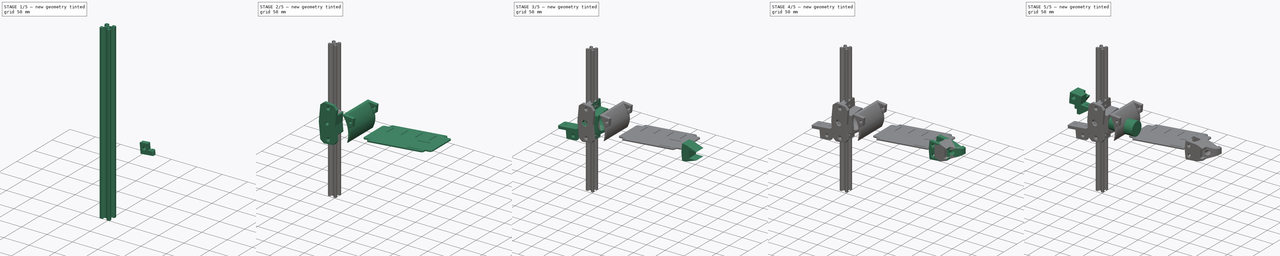
[diagram: build sequence overview — one tinted view per stage of 5, left to right]
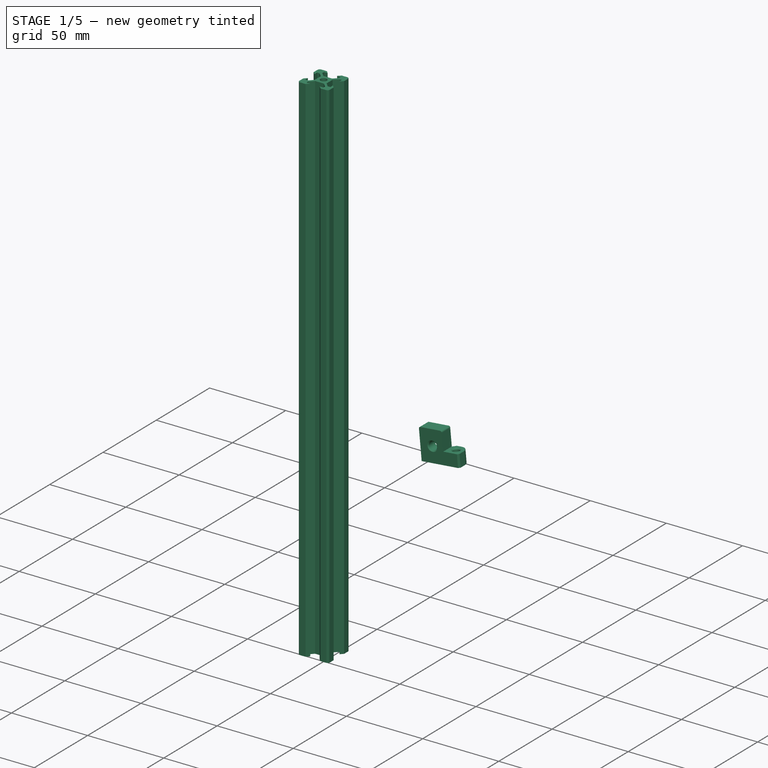
[diagram: stage 1 of 5 — iso view after this stage's code; geometry added in this stage tinted green]
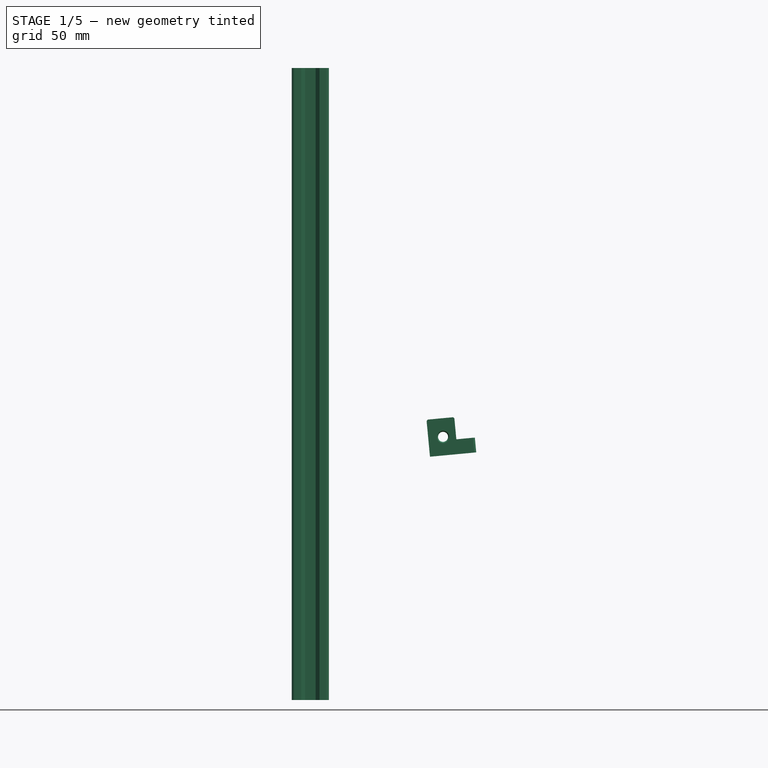
[diagram: stage 1 of 5 — front view after this stage's code; geometry added in this stage tinted green]
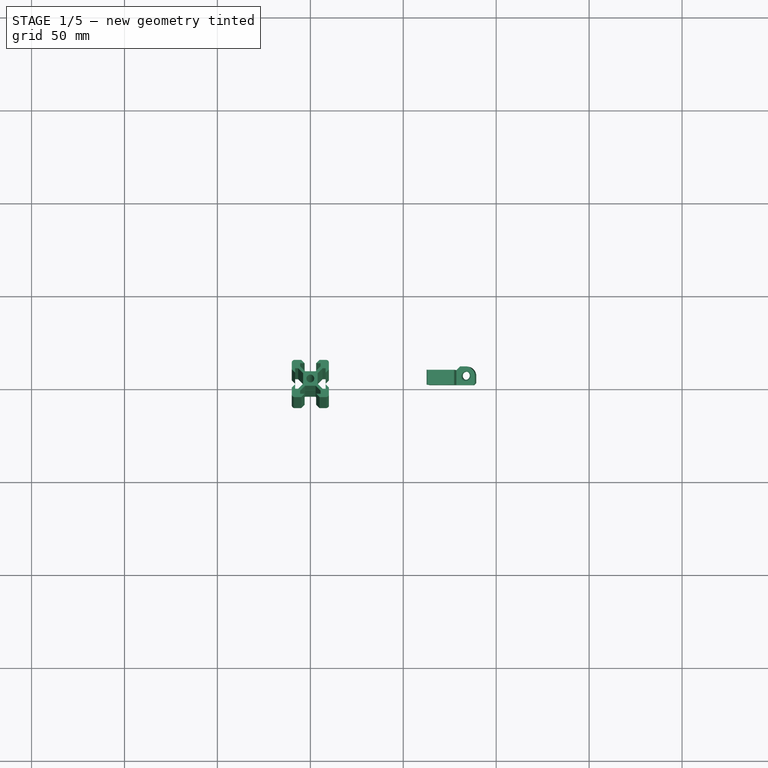
[diagram: stage 1 of 5 — top view after this stage's code; geometry added in this stage tinted green]
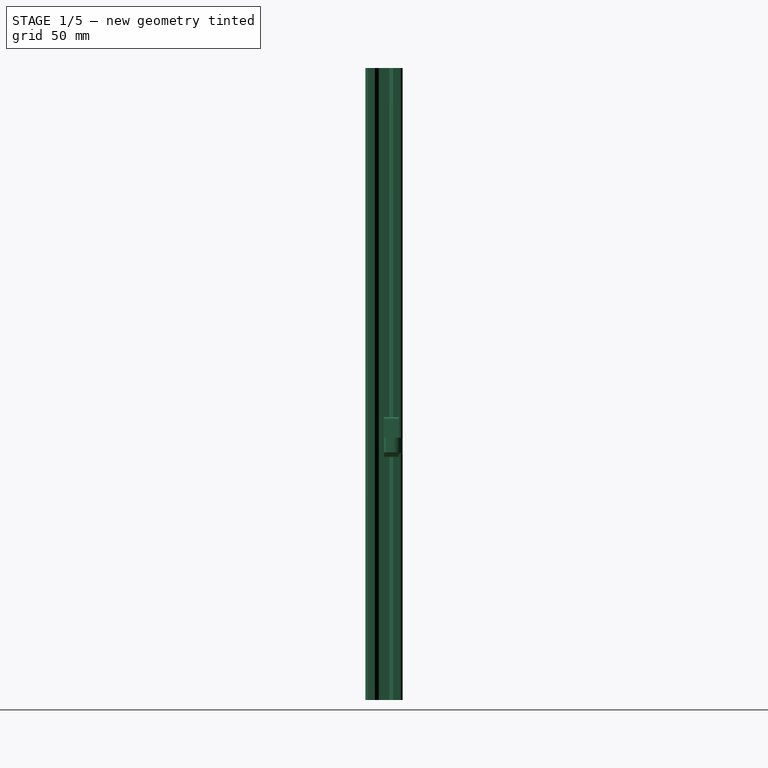
[diagram: stage 1 of 5 — right view after this stage's code; geometry added in this stage tinted green]
FCSTD DOCUMENT  (FreeCAD 1.2R20260120 (Git shallow))
Label: RC-Robot-parts
License: All rights reserved
LicenseURL: https://en.wikipedia.org/wiki/All_rights_reserved
objects: Sketcher::SketchObject×63, PartDesign::Pocket×36, PartDesign::Chamfer×31, PartDesign::Pad×26, App::Point×18, PartDesign::Body×13, PartDesign::Fillet×12, PartDesign::SubShapeBinder×8, App::Part×5, PartDesign::PolarPattern×4, PartDesign::Mirrored×1, TechDraw::DrawSVGTemplate×1, TechDraw::DrawProjGroupItem×1, TechDraw::DrawProjGroup×1, TechDraw::DrawPage×1
note: 472 computed .brp shape members not serialized (recipe doc carries the construction recipe); baked Part::Feature solids carry a one-line shape summary decoded from their .brp

FEATURE [PartDesign::Body] Body022  label="SupportAxeRoulement"
  AllowCompound = true
  Group = -> [Binder013,Sketch068,Pad036,Sketch069,Pad037,Sketch070,Pocket030,Chamfer027,Chamfer028,Chamfer029,Sketch071,Pocket031,Chamfer030,Sketch072,Pocket032,Chamfer031,Chamfer032]
  Origin = -> Origin030
  Tip = -> Chamfer032
FEATURE [PartDesign::SubShapeBinder] Binder014  label="Binder014(Squelette)"
  BindCopyOnChange = 0
  BindMode = 0
  ClaimChildren = false
  Context = -> Part011 [Part012.Body025.Binder014.]
  Fuse = false
  MakeFace = true
  OffsetFill = false
  OffsetIntersection = false
  OffsetJoinType = 0
  OffsetOpenResult = false
  PartialLoad = false
  Relative = true
  Support = -> [Sketch]
  _Version = 8
FEATURE [Sketcher::SketchObject] Sketch092
  ArcFitTolerance = 1e-06
  AttachmentSupport = -> [XZ_Plane030]
  ExternalGeometry = -> [Binder014]
  ExternalTypes = [0]
  FullyConstrained = true
  MakeInternals = false
  MapMode = 5
  Placement = pos=(0,0,0) rot=(1,0,0;1.5708rad)
  sketch-geometry (6):
    g0: LineSegment StartX=64.3684 StartY=-39.129 StartZ=0 EndX=62.4936 EndY=-19.2171 EndZ=0
    g1: LineSegment StartX=62.4936 StartY=-19.2171 StartZ=0 EndX=87.3835 EndY=-16.8735 EndZ=0
    g2: LineSegment StartX=87.3835 StartY=-16.8735 StartZ=0 EndX=89.2584 EndY=-36.7855 EndZ=0
    g3: LineSegment StartX=89.2584 StartY=-36.7855 StartZ=0 EndX=64.3684 EndY=-39.129 EndZ=0
    g4: Circle CenterX=71.3958 CenterY=-28.4231 CenterZ=0 NormalX=0 NormalY=0 NormalZ=1 AngleXU=0 Radius=2.7
    g5: LineSegment [constr] StartX=63.431 StartY=-29.173 StartZ=0 EndX=88.3209 EndY=-26.8295 EndZ=0
  constraints (18):
    c: PointOnObject(g0,g-4)
    c: PointOnObject(g0,g-3)
    c: Coincident(g0,g1)
    c: PointOnObject(g1,g-3)
    c: Coincident(g1,g2)
    c: PointOnObject(g2,g-4)
    c: Coincident(g2,g3)
    c: Coincident(g3,g0)
    c: Equal(g1,g3)
    c: Perpendicular(g1,g2)
    c: Distance(g1) = 25
    c: Distance(g-5,g0) = 115
    c: Diameter(g4) = 5.4
    c: PointOnObject(g5,g0)
    c: Symmetric(g2,g1,g5)
    c: Parallel(g5,g1)
    c: PointOnObject(g4,g5)
    c: Distance(g5,g4) = 8
FEATURE [PartDesign::Pad] Pad041
  AlongSketchNormal = false
  Direction = (0,-1,2e-16)
  Length = 8
  Length2 = 10
  Placement = pos=(0,0,0) rot=(1,0,0;1.5708rad)
  Profile = -> Sketch092
  ReferenceAxis = -> Sketch092 [N_Axis]
  Refine = true
  Reversed = true
  SideType = 0
  Suppressed = false
  Type = 0
  Type2 = 0
FEATURE [Sketcher::SketchObject] Sketch093
  ArcFitTolerance = 1e-06
  AttachmentOffset = pos=(0,0,0) rot=(0,0,1;3.14159rad)
  AttachmentSupport = -> [Pad041]
  ExternalTypes = [0]
  FullyConstrained = true
  MakeInternals = false
  MapMode = 5
  Placement = pos=(0,8,-1.8e-15) rot=(0,0.707107,0.707107;3.14159rad)
  sketch-geometry (1):
    g0: Circle CenterX=-71.3958 CenterY=-28.4231 CenterZ=0 NormalX=0 NormalY=0 NormalZ=1 AngleXU=0 Radius=5.5
  constraints (2):
    c: Coincident(g0,g-3)
    c: Diameter(g0) = 11
FEATURE [PartDesign::Pocket] Pocket048
  AlongSketchNormal = false
  BaseFeature = -> Pad041
  Direction = (0,-1,-2e-16)
  Length = 1.2
  Length2 = 10
  Placement = pos=(0,0,0) rot=(1,0,0;1.5708rad)
  Profile = -> Sketch093
  ReferenceAxis = -> Sketch093 [N_Axis]
  Refine = true
  SideType = 0
  Suppressed = false
  Type = 0
  Type2 = 0
FEATURE [Sketcher::SketchObject] Sketch094
  ArcFitTolerance = 1e-06
  AttachmentSupport = -> [Pocket048]
  ExternalGeometry = -> [Pocket048]
  ExternalTypes = [0]
  FullyConstrained = true
  MakeInternals = false
  MapMode = 5
  Placement = pos=(4.21751,-1.98e-14,-44.7926) rot=(0.998899,0,0.046923;3.14159rad)
  sketch-geometry (4):
    g0: LineSegment StartX=85.417 StartY=-8 StartZ=0 EndX=75.417 EndY=-8 EndZ=0
    g1: LineSegment StartX=75.417 StartY=-8 StartZ=0 EndX=75.417 EndY=-10 EndZ=0
    g2: LineSegment StartX=75.417 StartY=-10 StartZ=0 EndX=85.417 EndY=-10 EndZ=0
    g3: LineSegment StartX=85.417 StartY=-10 StartZ=0 EndX=85.417 EndY=-8 EndZ=0
  constraints (11):
    c: Coincident(g0,g1)
    c: Coincident(g1,g2)
    c: Coincident(g2,g3)
    c: Coincident(g3,g0)
    c: Horizontal(g0)
    c: Horizontal(g2)
    c: Vertical(g1)
    c: Vertical(g3)
    c: Coincident(g0,g-3)
    c: DistanceX(g2,g2) = 10
    c: DistanceY(g2,g-4) = 10
FEATURE [PartDesign::Pad] Pad042
  AlongSketchNormal = false
  BaseFeature = -> Pocket048
  Direction = (0.0937419,0,-0.995597)
  Length = 20
  Length2 = 10
  Placement = pos=(0,0,0) rot=(1,0,0;1.5708rad)
  Profile = -> Sketch094
  ReferenceAxis = -> Sketch094 [N_Axis]
  Refine = true
  Reversed = true
  SideType = 0
  Suppressed = false
  Type = 0
  Type2 = 0
FEATURE [Sketcher::SketchObject] Sketch095
  ArcFitTolerance = 1e-06
  AttachmentOffset = pos=(0,0,0) rot=(0,0,1;3.14159rad)
  AttachmentSupport = -> [Pad042]
  ExternalTypes = [0]
  FullyConstrained = true
  MakeInternals = false
  MapMode = 5
  Placement = pos=(2.34268,-4.95e-14,-24.8807) rot=(0,1,0;6.18931rad)
  sketch-geometry (4):
    g0: LineSegment StartX=85.417 StartY=10 StartZ=0 EndX=75.417 EndY=10 EndZ=0
    g1: LineSegment StartX=75.417 StartY=10 StartZ=0 EndX=75.417 EndY=2.84e-14 EndZ=0
    g2: LineSegment StartX=75.417 StartY=2.84e-14 StartZ=0 EndX=85.417 EndY=2.84e-14 EndZ=0
    g3: LineSegment StartX=85.417 StartY=2.84e-14 StartZ=0 EndX=85.417 EndY=10 EndZ=0
  constraints (9):
    c: Coincident(g0,g1)
    c: Coincident(g1,g2)
    c: Coincident(g2,g3)
    c: Coincident(g3,g0)
    c: Horizontal(g2)
    c: Vertical(g1)
    c: Coincident(g0,g-4)
    c: Coincident(g2,g-3)
    c: Coincident(g0,g-4)
FEATURE [PartDesign::Pocket] Pocket049
  AlongSketchNormal = false
  BaseFeature = -> Pad042
  Direction = (0.0937419,-1.8e-15,-0.995597)
  Length = 12
  Length2 = 10
  Placement = pos=(0,0,0) rot=(1,0,0;1.5708rad)
  Profile = -> Sketch095
  ReferenceAxis = -> Sketch095 [N_Axis]
  Refine = true
  SideType = 0
  Suppressed = false
  Type = 0
  Type2 = 0
  expr: Length = 20 - 8
FEATURE [Sketcher::SketchObject] Sketch096
  ArcFitTolerance = 1e-06
  AttachmentOffset = pos=(0,0,0) rot=(0,0,1;3.14159rad)
  AttachmentSupport = -> [Pocket049]
  ExternalTypes = [0]
  FullyConstrained = true
  MakeInternals = false
  MapMode = 5
  Placement = pos=(3.46758,-6.55e-14,-36.8278) rot=(0,1,0;6.18931rad)
  sketch-geometry (1):
    g0: Circle CenterX=80.417 CenterY=5 CenterZ=0 NormalX=0 NormalY=0 NormalZ=1 AngleXU=0 Radius=2.2
  constraints (2):
    c: Diameter(g0) = 4.4
    c: Symmetric(g-4,g-3,g0)
FEATURE [PartDesign::Pocket] Pocket050
  AlongSketchNormal = false
  BaseFeature = -> Pocket049
  Direction = (0.0937419,-1.8e-15,-0.995597)
  Length = 14
  Length2 = 10
  Placement = pos=(0,0,0) rot=(1,0,0;1.5708rad)
  Profile = -> Sketch096
  ReferenceAxis = -> Sketch096 [N_Axis]
  Refine = true
  SideType = 0
  Suppressed = false
  Type = 0
  Type2 = 0
FEATURE [PartDesign::Fillet] Fillet016
  Base = -> Pocket050 [Edge12,Edge2]
  BaseFeature = -> Pocket050
  Placement = pos=(0,0,0) rot=(1,0,0;1.5708rad)
  Radius = 1
  Refine = true
  SupportTransform = false
  Suppressed = false
  UseAllEdges = false
FEATURE [PartDesign::Fillet] Fillet018
  Base = -> Fillet016 [Edge32]
  BaseFeature = -> Fillet016
  Placement = pos=(0,0,0) rot=(1,0,0;1.5708rad)
  Radius = 5
  Refine = true
  SupportTransform = false
  Suppressed = false
  UseAllEdges = false
FEATURE [PartDesign::Chamfer] Chamfer045
  Angle = 45
  Base = -> Fillet018 [Edge21]
  BaseFeature = -> Fillet018
  ChamferType = 0
  FlipDirection = false
  Placement = pos=(0,0,0) rot=(1,0,0;1.5708rad)
  Refine = true
  Size = 1.99
  Size2 = 1
  SupportTransform = false
  Suppressed = false
  UseAllEdges = false
FEATURE [PartDesign::Chamfer] Chamfer046
  Angle = 45
  Base = -> Chamfer045 [Edge35,Edge26,Edge44,Edge9,Edge33]
  BaseFeature = -> Chamfer045
  ChamferType = 0
  FlipDirection = false
  Placement = pos=(0,0,0) rot=(1,0,0;1.5708rad)
  Refine = true
  Size = 0.6
  Size2 = 1
  SupportTransform = false
  Suppressed = false
  UseAllEdges = false
FEATURE [PartDesign::Chamfer] Chamfer047
  Angle = 45
  Base = -> Chamfer046 [Edge22]
  BaseFeature = -> Chamfer046
  ChamferType = 0
  FlipDirection = false
  Placement = pos=(0,0,0) rot=(1,0,0;1.5708rad)
  Refine = true
  Size = 1
  Size2 = 1
  SupportTransform = false
  Suppressed = false
  UseAllEdges = false
FEATURE [PartDesign::Body] Body027  label="PlateauElec001"
  AllowCompound = true
  Group = -> [Binder015,Sketch097,Pad043,Sketch098,Pocket051,Chamfer048,Sketch103,Pocket054]
  Origin = -> Origin040
  Tip = -> Pocket054
FEATURE [App::Part] Part011  label="PlateauElec"
  Group = -> [Part012,Body027,Body028]
  Origin = -> Origin036
FEATURE [TechDraw::DrawSVGTemplate] Template
  Height = 210
  Orientation = 1
  Template = <path>
  Width = 297
FEATURE [TechDraw::DrawProjGroupItem] ProjItem  label="Front"
  CoarseView = false
  Direction = (-0.094,0,0.996)
  Focus = 100
  HardHidden = false
  IsoCount = 0
  IsoHidden = false
  IsoVisible = false
  LockPosition = true
  Perspective = false
  Rotation = 0
  RotationVector = (0,-1,0)
  ScaleType = 2
  ScrubCount = 0
  SeamHidden = false
  SeamVisible = true
  SmoothHidden = false
  SmoothVisible = true
  Source = -> [Pocket054]
  Type = 0
  X = 0
  XDirection = (-0.995576,-1e-16,-0.09396)
  Y = 0
FEATURE [TechDraw::DrawProjGroup] ProjGroup
  Anchor = -> ProjItem
  AutoDistribute = true
  LockPosition = false
  ProjectionType = 0
  Rotation = 0
  ScaleType = 0
  Source = -> [Pocket054]
  Views = -> [ProjItem]
  X = 86.5691
  Y = 164.007
  spacingX = 15
  spacingY = 15
FEATURE [TechDraw::DrawPage] Page  label="Laser5mmBoisSupportElec"
  KeepUpdated = true
  NextBalloonIndex = 1
  ProjectionType = 0
  Template = -> Template
  Views = -> [ProjGroup]
FEATURE [App::Point] Origin044  label="Origine"
  Role = Origin
FEATURE [App::Point] Origin051  label="Origine"
  Role = Origin
FEATURE [App::Point] Origin053  label="Origine"
  Role = Origin
FEATURE [App::Point] Origin054  label="Origine"
  Role = Origin
FEATURE [App::Point] Origin058  label="Origine"
  Role = Origin
FEATURE [App::Point] Origin059  label="Origine"
  Role = Origin
FEATURE [App::Point] Origin060  label="Origine"
  Role = Origin
FEATURE [App::Point] Origin061  label="Origine"
  Role = Origin
FEATURE [App::Point] Origin064  label="Origine"
  Role = Origin
FEATURE [App::Point] Origin065  label="Origine"
  Role = Origin
FEATURE [App::Point] Origin066  label="Origine"
  Role = Origin
FEATURE [App::Point] Origin067  label="Origine"
  Role = Origin
FEATURE [App::Point] Origin068  label="Origine"
  Role = Origin
FEATURE [App::Point] Origin070  label="Origine"
  Role = Origin
FEATURE [App::Point] Origin071  label="Origine"
  Role = Origin
FEATURE [App::Point] Origin075  label="Origine001"
  Role = Origin
FEATURE [Sketcher::SketchObject] Sketch105
  ArcFitTolerance = 1e-06
  AttachmentSupport = -> [XZ_Plane037]
  ExternalTypes = [0]
  FullyConstrained = true
  MakeInternals = false
  MapMode = 5
  Placement = pos=(0,0,0) rot=(1,0,0;1.5708rad)
  sketch-geometry (4):
    g0: LineSegment StartX=10 StartY=25 StartZ=0 EndX=-10 EndY=25 EndZ=0
    g1: LineSegment StartX=-10 StartY=25 StartZ=0 EndX=-10 EndY=-25 EndZ=0
    g2: LineSegment StartX=-10 StartY=-25 StartZ=0 EndX=10 EndY=-25 EndZ=0
    g3: LineSegment StartX=10 StartY=-25 StartZ=0 EndX=10 EndY=25 EndZ=0
  constraints (11):
    c: Coincident(g0,g1)
    c: Coincident(g1,g2)
    c: Coincident(g2,g3)
    c: Coincident(g3,g0)
    c: Horizontal(g0)
    c: Horizontal(g2)
    c: Vertical(g1)
    c: Vertical(g3)
    c: DistanceX(g0,g0) = 20
    c: Symmetric(g1,g0,g-1)
    c: DistanceY(g3,g3) = 50
FEATURE [PartDesign::Pad] Pad046
  AlongSketchNormal = false
  Direction = (0,-1,2e-16)
  Length = 20
  Length2 = 10
  Placement = pos=(0,0,0) rot=(1,0,0;1.5708rad)
  Profile = -> Sketch105
  ReferenceAxis = -> Sketch105 [N_Axis]
  Refine = true
  SideType = 2
  Suppressed = false
  Type = 0
  Type2 = 0
FEATURE [Sketcher::SketchObject] Sketch106
  ArcFitTolerance = 1e-06
  AttachmentOffset = pos=(0,0,0) rot=(0,0,1;3.14159rad)
  AttachmentSupport = -> [Pad046]
  ExternalGeometry = -> [Pad046]
  ExternalTypes = [0]
  FullyConstrained = true
  MakeInternals = false
  MapMode = 5
  Placement = pos=(0,1.1e-14,25) rot=(0,0,1;0rad)
  sketch-geometry (12):
    g0: Circle CenterX=0 CenterY=0 CenterZ=0 NormalX=0 NormalY=0 NormalZ=1 AngleXU=0 Radius=2.1
    g1: LineSegment StartX=-10 StartY=4.9 StartZ=0 EndX=-8.2 EndY=3.1 EndZ=0
    g2: LineSegment StartX=-8.2 StartY=3.1 StartZ=0 EndX=-8.2 EndY=5.5 EndZ=0
    g3: LineSegment StartX=-8.2 StartY=5.5 StartZ=0 EndX=-6.56 EndY=5.5 EndZ=0
    g4: LineSegment StartX=-6.56 StartY=5.5 StartZ=0 EndX=-3.9 EndY=2.84 EndZ=0
    g5: LineSegment StartX=-3.9 StartY=2.84 StartZ=0 EndX=-3.9 EndY=-2.84 EndZ=0
    g6: LineSegment StartX=-3.9 StartY=-2.84 StartZ=0 EndX=-6.56 EndY=-5.5 EndZ=0
    g7: LineSegment StartX=-6.56 StartY=-5.5 StartZ=0 EndX=-8.2 EndY=-5.5 EndZ=0
    g8: LineSegment StartX=-8.2 StartY=-5.5 StartZ=0 EndX=-8.2 EndY=-3.1 EndZ=0
    g9: LineSegment StartX=-8.2 StartY=-3.1 StartZ=0 EndX=-10 EndY=-4.9 EndZ=0
    g10: LineSegment StartX=-10 StartY=-4.9 StartZ=0 EndX=-10 EndY=4.9 EndZ=0
    g11: LineSegment [constr] StartX=-10 StartY=0 StartZ=0 EndX=0 EndY=0 EndZ=0
  constraints (32):
    c: Diameter(g0) = 4.2
    c: Coincident(g1,g2)
    c: Vertical(g2)
    c: Coincident(g2,g3)
    c: Horizontal(g3)
    c: Coincident(g3,g4)
    c: Coincident(g4,g5)
    c: Vertical(g5)
    c: Coincident(g5,g6)
    c: Coincident(g6,g7)
    c: Horizontal(g7)
    c: Coincident(g7,g8)
    c: Vertical(g8)
    c: Coincident(g8,g9)
    c: Coincident(g9,g10)
    c: Coincident(g10,g1)
    c: Vertical(g10)
    c: Coincident(g11,g0)
    c: Symmetric(g9,g1,g11)
    c: Equal(g1,g9)
    c: Equal(g3,g7)
    c: Symmetric(g4,g5,g11)
    c: Symmetric(g2,g7,g11)
    c: DistanceY(g5,g5) = 5.68
    c: DistanceY(g8,g1) = 6.2
    c: DistanceX(g3,g3) = 1.64
    c: DistanceX(g1,g1) = 1.8
    c: DistanceX(g11,g0) = 10
    c: Angle(g1,g9) = 1.5708
    c: Angle(g4,g6) = 1.5708
    c: DistanceX(g1,g4) = 6.1
    c: Symmetric(g-4,g-3,g0)
FEATURE [PartDesign::Pocket] Pocket055
  AlongSketchNormal = false
  BaseFeature = -> Pad046
  Direction = (0,0,-1)
  Length = 100
  Length2 = 10
  Placement = pos=(0,0,0) rot=(1,0,0;1.5708rad)
  Profile = -> Sketch106
  ReferenceAxis = -> Sketch106 [N_Axis]
  Refine = true
  SideType = 0
  Suppressed = false
  Type = 0
  Type2 = 0
FEATURE [PartDesign::PolarPattern] PolarPattern008
  Angle = 360
  Axis = -> Z_Axis037
  BaseFeature = -> Pocket055
  Mode = 0
  Occurrences = 4
  Offset = 120
  Originals = -> [Pocket055]
  Placement = pos=(0,0,0) rot=(1,0,0;1.5708rad)
  Refine = true
  SpacingPattern = [0]
  Spacings = [-1,-1,-1]
  Suppressed = false
  TransformMode = 0
FEATURE [PartDesign::Fillet] Fillet022
  Base = -> PolarPattern008 [Edge93,Edge70,Edge115,Edge51]
  BaseFeature = -> PolarPattern008
  Placement = pos=(0,0,0) rot=(1,0,0;1.5708rad)
  Radius = 1.5
  Refine = true
  SupportTransform = false
  Suppressed = false
  UseAllEdges = false
FEATURE [PartDesign::Body] Body029  label="2020-50mm"
  AllowCompound = true
  Group = -> [Sketch105,Pad046,Sketch106,Pocket055,PolarPattern008,Fillet022]
  Origin = -> Origin074
  Placement = pos=(331,0,0) rot=(0,0,1;0rad)
  Tip = -> Fillet022
FEATURE [App::Point] Origin077  label="Origine002"
  Role = Origin
FEATURE [Sketcher::SketchObject] Sketch107
  ArcFitTolerance = 1e-06
  AttachmentSupport = -> [XZ_Plane038]
  ExternalTypes = [0]
  FullyConstrained = true
  MakeInternals = false
  MapMode = 5
  Placement = pos=(0,0,0) rot=(1,0,0;1.5708rad)
  sketch-geometry (4):
    g0: LineSegment StartX=10 StartY=150 StartZ=0 EndX=-10 EndY=150 EndZ=0
    g1: LineSegment StartX=-10 StartY=150 StartZ=0 EndX=-10 EndY=-150 EndZ=0
    g2: LineSegment StartX=-10 StartY=-150 StartZ=0 EndX=10 EndY=-150 EndZ=0
    g3: LineSegment StartX=10 StartY=-150 StartZ=0 EndX=10 EndY=150 EndZ=0
  constraints (11):
    c: Coincident(g0,g1)
    c: Coincident(g1,g2)
    c: Coincident(g2,g3)
    c: Coincident(g3,g0)
    c: Horizontal(g0)
    c: Horizontal(g2)
    c: Vertical(g1)
    c: Vertical(g3)
    c: DistanceX(g0,g0) = 20
    c: Symmetric(g1,g0,g-1)
    c: DistanceY(g3,g3) = 300
FEATURE [PartDesign::Pad] Pad047
  AlongSketchNormal = false
  Direction = (0,-1,2e-16)
  Length = 20
  Length2 = 10
  Placement = pos=(0,0,0) rot=(1,0,0;1.5708rad)
  Profile = -> Sketch107
  ReferenceAxis = -> Sketch107 [N_Axis]
  Refine = true
  SideType = 2
  Suppressed = false
  Type = 0
  Type2 = 0
FEATURE [Sketcher::SketchObject] Sketch108
  ArcFitTolerance = 1e-06
  AttachmentOffset = pos=(0,0,0) rot=(0,0,1;3.14159rad)
  AttachmentSupport = -> [Pad047]
  ExternalGeometry = -> [Pad047]
  ExternalTypes = [0]
  FullyConstrained = true
  MakeInternals = false
  MapMode = 5
  Placement = pos=(0,6.6e-14,150) rot=(0,0,1;0rad)
  sketch-geometry (12):
    g0: Circle CenterX=0 CenterY=0 CenterZ=0 NormalX=0 NormalY=0 NormalZ=1 AngleXU=0 Radius=2.1
    g1: LineSegment StartX=-10 StartY=4.9 StartZ=0 EndX=-8.2 EndY=3.1 EndZ=0
    g2: LineSegment StartX=-8.2 StartY=3.1 StartZ=0 EndX=-8.2 EndY=5.5 EndZ=0
    g3: LineSegment StartX=-8.2 StartY=5.5 StartZ=0 EndX=-6.56 EndY=5.5 EndZ=0
    g4: LineSegment StartX=-6.56 StartY=5.5 StartZ=0 EndX=-3.9 EndY=2.84 EndZ=0
    g5: LineSegment StartX=-3.9 StartY=2.84 StartZ=0 EndX=-3.9 EndY=-2.84 EndZ=0
    g6: LineSegment StartX=-3.9 StartY=-2.84 StartZ=0 EndX=-6.56 EndY=-5.5 EndZ=0
    g7: LineSegment StartX=-6.56 StartY=-5.5 StartZ=0 EndX=-8.2 EndY=-5.5 EndZ=0
    g8: LineSegment StartX=-8.2 StartY=-5.5 StartZ=0 EndX=-8.2 EndY=-3.1 EndZ=0
    g9: LineSegment StartX=-8.2 StartY=-3.1 StartZ=0 EndX=-10 EndY=-4.9 EndZ=0
    g10: LineSegment StartX=-10 StartY=-4.9 StartZ=0 EndX=-10 EndY=4.9 EndZ=0
    g11: LineSegment [constr] StartX=-10 StartY=0 StartZ=0 EndX=0 EndY=0 EndZ=0
  constraints (32):
    c: Diameter(g0) = 4.2
    c: Coincident(g1,g2)
    c: Vertical(g2)
    c: Coincident(g2,g3)
    c: Horizontal(g3)
    c: Coincident(g3,g4)
    c: Coincident(g4,g5)
    c: Vertical(g5)
    c: Coincident(g5,g6)
    c: Coincident(g6,g7)
    c: Horizontal(g7)
    c: Coincident(g7,g8)
    c: Vertical(g8)
    c: Coincident(g8,g9)
    c: Coincident(g9,g10)
    c: Coincident(g10,g1)
    c: Vertical(g10)
    c: Coincident(g11,g0)
    c: Symmetric(g9,g1,g11)
    c: Equal(g1,g9)
    c: Equal(g3,g7)
    c: Symmetric(g4,g5,g11)
    c: Symmetric(g2,g7,g11)
    c: DistanceY(g5,g5) = 5.68
    c: DistanceY(g8,g1) = 6.2
    c: DistanceX(g3,g3) = 1.64
    c: DistanceX(g1,g1) = 1.8
    c: DistanceX(g11,g0) = 10
    c: Angle(g1,g9) = 1.5708
    c: Angle(g4,g6) = 1.5708
    c: DistanceX(g1,g4) = 6.1
    c: Symmetric(g-4,g-3,g0)
FEATURE [PartDesign::Pocket] Pocket056
  AlongSketchNormal = false
  BaseFeature = -> Pad047
  Direction = (0,0,-1)
  Length = 100
  Length2 = 10
  Placement = pos=(0,0,0) rot=(1,0,0;1.5708rad)
  Profile = -> Sketch108
  ReferenceAxis = -> Sketch108 [N_Axis]
  Refine = true
  SideType = 0
  Suppressed = false
  Type = 1
  Type2 = 0
FEATURE [PartDesign::PolarPattern] PolarPattern009
  Angle = 360
  Axis = -> Z_Axis038
  BaseFeature = -> Pocket056
  Mode = 0
  Occurrences = 4
  Offset = 120
  Originals = -> [Pocket056]
  Placement = pos=(0,0,0) rot=(1,0,0;1.5708rad)
  Refine = true
  SpacingPattern = [0]
  Spacings = [-1,-1,-1]
  Suppressed = false
  TransformMode = 0
FEATURE [PartDesign::Fillet] Fillet023
  Base = -> PolarPattern009 [Edge70,Edge51,Edge115,Edge93]
  BaseFeature = -> PolarPattern009
  Placement = pos=(0,0,0) rot=(1,0,0;1.5708rad)
  Radius = 1.5
  Refine = true
  SupportTransform = false
  Suppressed = false
  UseAllEdges = false
FEATURE [PartDesign::Body] Body030  label="2020-300mm"
  AllowCompound = true
  Group = -> [Sketch107,Pad047,Sketch108,Pocket056,PolarPattern009,Fillet023]
  Origin = -> Origin076
  Placement = pos=(366,0,0) rot=(0,0,1;0rad)
  Tip = -> Fillet023
FEATURE [App::Point] Origin079  label="Origine003"
  Role = Origin
FEATURE [Sketcher::SketchObject] Sketch109
  ArcFitTolerance = 1e-06
  AttachmentSupport = -> [XZ_Plane039]
  ExternalTypes = [0]
  FullyConstrained = true
  MakeInternals = false
  MapMode = 5
  Placement = pos=(0,0,0) rot=(1,0,0;1.5708rad)
  sketch-geometry (4):
    g0: LineSegment StartX=10 StartY=170 StartZ=0 EndX=-10 EndY=170 EndZ=0
    g1: LineSegment StartX=-10 StartY=170 StartZ=0 EndX=-10 EndY=-170 EndZ=0
    g2: LineSegment StartX=-10 StartY=-170 StartZ=0 EndX=10 EndY=-170 EndZ=0
    g3: LineSegment StartX=10 StartY=-170 StartZ=0 EndX=10 EndY=170 EndZ=0
  constraints (11):
    c: Coincident(g0,g1)
    c: Coincident(g1,g2)
    c: Coincident(g2,g3)
    c: Coincident(g3,g0)
    c: Horizontal(g0)
    c: Horizontal(g2)
    c: Vertical(g1)
    c: Vertical(g3)
    c: DistanceX(g0,g0) = 20
    c: Symmetric(g1,g0,g-1)
    c: DistanceY(g3,g3) = 340
FEATURE [PartDesign::Pad] Pad048
  AlongSketchNormal = false
  Direction = (0,-1,2e-16)
  Length = 20
  Length2 = 10
  Placement = pos=(0,0,0) rot=(1,0,0;1.5708rad)
  Profile = -> Sketch109
  ReferenceAxis = -> Sketch109 [N_Axis]
  Refine = true
  SideType = 2
  Suppressed = false
  Type = 0
  Type2 = 0
FEATURE [Sketcher::SketchObject] Sketch110
  ArcFitTolerance = 1e-06
  AttachmentOffset = pos=(0,0,0) rot=(0,0,1;3.14159rad)
  AttachmentSupport = -> [Pad048]
  ExternalGeometry = -> [Pad048]
  ExternalTypes = [0]
  FullyConstrained = true
  MakeInternals = false
  MapMode = 5
  Placement = pos=(0,7.48e-14,170) rot=(0,0,1;0rad)
  sketch-geometry (12):
    g0: Circle CenterX=0 CenterY=0 CenterZ=0 NormalX=0 NormalY=0 NormalZ=1 AngleXU=0 Radius=2.1
    g1: LineSegment StartX=-10 StartY=4.9 StartZ=0 EndX=-8.2 EndY=3.1 EndZ=0
    g2: LineSegment StartX=-8.2 StartY=3.1 StartZ=0 EndX=-8.2 EndY=5.5 EndZ=0
    g3: LineSegment StartX=-8.2 StartY=5.5 StartZ=0 EndX=-6.56 EndY=5.5 EndZ=0
    g4: LineSegment StartX=-6.56 StartY=5.5 StartZ=0 EndX=-3.9 EndY=2.84 EndZ=0
    g5: LineSegment StartX=-3.9 StartY=2.84 StartZ=0 EndX=-3.9 EndY=-2.84 EndZ=0
    g6: LineSegment StartX=-3.9 StartY=-2.84 StartZ=0 EndX=-6.56 EndY=-5.5 EndZ=0
    g7: LineSegment StartX=-6.56 StartY=-5.5 StartZ=0 EndX=-8.2 EndY=-5.5 EndZ=0
    g8: LineSegment StartX=-8.2 StartY=-5.5 StartZ=0 EndX=-8.2 EndY=-3.1 EndZ=0
    g9: LineSegment StartX=-8.2 StartY=-3.1 StartZ=0 EndX=-10 EndY=-4.9 EndZ=0
    g10: LineSegment StartX=-10 StartY=-4.9 StartZ=0 EndX=-10 EndY=4.9 EndZ=0
    g11: LineSegment [constr] StartX=-10 StartY=0 StartZ=0 EndX=0 EndY=0 EndZ=0
  constraints (32):
    c: Diameter(g0) = 4.2
    c: Coincident(g1,g2)
    c: Vertical(g2)
    c: Coincident(g2,g3)
    c: Horizontal(g3)
    c: Coincident(g3,g4)
    c: Coincident(g4,g5)
    c: Vertical(g5)
    c: Coincident(g5,g6)
    c: Coincident(g6,g7)
    c: Horizontal(g7)
    c: Coincident(g7,g8)
    c: Vertical(g8)
    c: Coincident(g8,g9)
    c: Coincident(g9,g10)
    c: Coincident(g10,g1)
    c: Vertical(g10)
    c: Coincident(g11,g0)
    c: Symmetric(g9,g1,g11)
    c: Equal(g1,g9)
    c: Equal(g3,g7)
    c: Symmetric(g4,g5,g11)
    c: Symmetric(g2,g7,g11)
    c: DistanceY(g5,g5) = 5.68
    c: DistanceY(g8,g1) = 6.2
    c: DistanceX(g3,g3) = 1.64
    c: DistanceX(g1,g1) = 1.8
    c: DistanceX(g11,g0) = 10
    c: Angle(g1,g9) = 1.5708
    c: Angle(g4,g6) = 1.5708
    c: DistanceX(g1,g4) = 6.1
    c: Symmetric(g-4,g-3,g0)
FEATURE [PartDesign::Pocket] Pocket057
  AlongSketchNormal = false
  BaseFeature = -> Pad048
  Direction = (0,0,-1)
  Length = 100
  Length2 = 10
  Placement = pos=(0,0,0) rot=(1,0,0;1.5708rad)
  Profile = -> Sketch110
  ReferenceAxis = -> Sketch110 [N_Axis]
  Refine = true
  SideType = 0
  Suppressed = false
  Type = 1
  Type2 = 0
FEATURE [PartDesign::PolarPattern] PolarPattern010
  Angle = 360
  Axis = -> Z_Axis039
  BaseFeature = -> Pocket057
  Mode = 0
  Occurrences = 4
  Offset = 120
  Originals = -> [Pocket057]
  Placement = pos=(0,0,0) rot=(1,0,0;1.5708rad)
  Refine = true
  SpacingPattern = [0]
  Spacings = [-1,-1,-1]
  Suppressed = false
  TransformMode = 0
FEATURE [PartDesign::Fillet] Fillet024
  Base = -> PolarPattern010 [Edge70,Edge51,Edge115,Edge93]
  BaseFeature = -> PolarPattern010
  Placement = pos=(0,0,0) rot=(1,0,0;1.5708rad)
  Radius = 1.5
  Refine = true
  SupportTransform = false
  Suppressed = false
  UseAllEdges = false
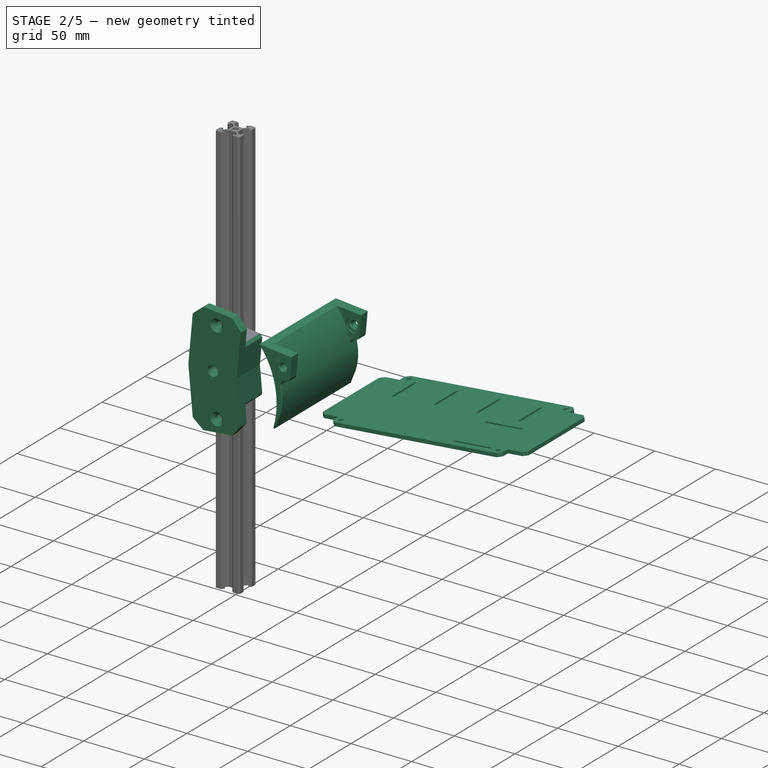
[diagram: stage 2 of 5 — iso view after this stage's code; geometry added in this stage tinted green]
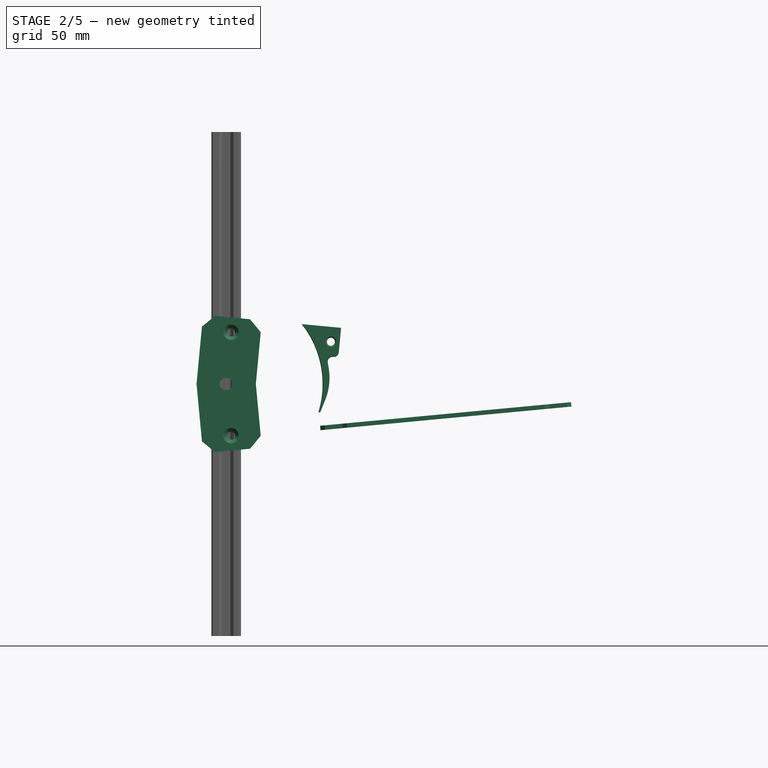
[diagram: stage 2 of 5 — front view after this stage's code; geometry added in this stage tinted green]
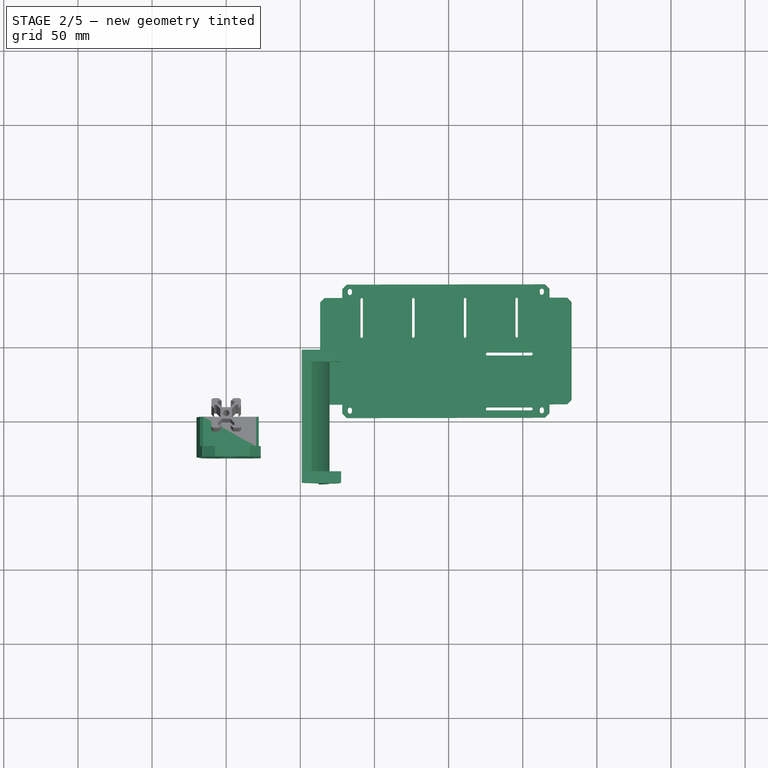
[diagram: stage 2 of 5 — top view after this stage's code; geometry added in this stage tinted green]
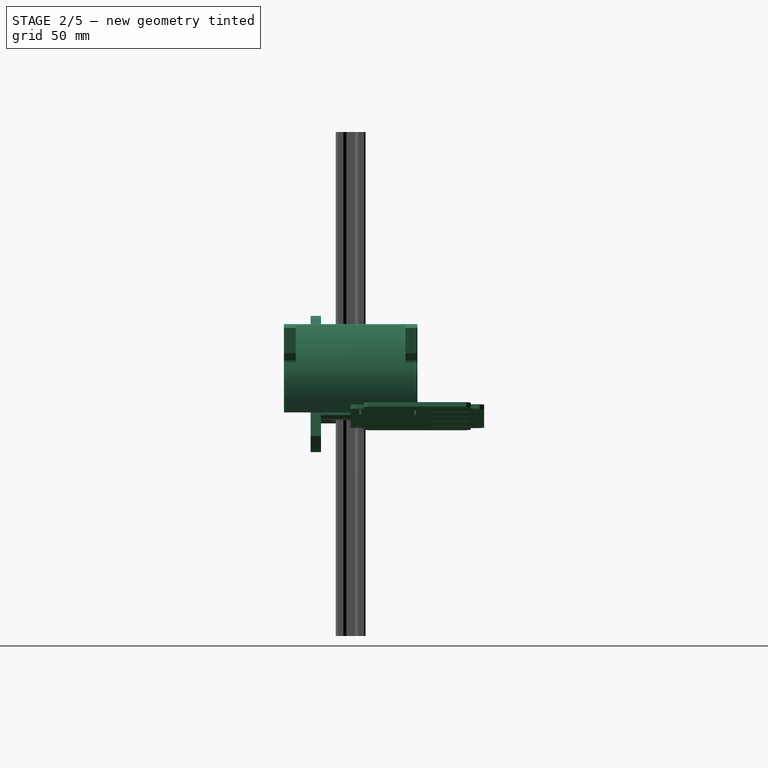
[diagram: stage 2 of 5 — right view after this stage's code; geometry added in this stage tinted green]
FEATURE [PartDesign::Body] Body021  label="MotorMount2020"
  AllowCompound = true
  Group = -> [Binder012,Sketch062,Pad034,Sketch063,Pad035,Sketch064,Pocket027,Sketch065,Pocket028,Sketch066,Pocket029,Chamfer020,Chamfer021,Chamfer023,Chamfer024]
  Origin = -> Origin029
  Tip = -> Chamfer024
FEATURE [App::Part] Part003  label="RoueMoteur"
  Group = -> [Body002,Body021]
  Origin = -> Origin013
  Placement = pos=(-7.99e-14,180,0) rot=(0,0,1;1.5708rad)
FEATURE [PartDesign::SubShapeBinder] Binder013  label="Binder013(Squelette)"
  BindCopyOnChange = 0
  BindMode = 0
  ClaimChildren = false
  Context = -> Part004 [Body022.Binder013.]
  Fuse = false
  MakeFace = true
  OffsetFill = false
  OffsetIntersection = false
  OffsetJoinType = 0
  OffsetOpenResult = false
  PartialLoad = false
  Relative = true
  Support = -> [Sketch]
  _Version = 8
FEATURE [Sketcher::SketchObject] Sketch068
  ArcFitTolerance = 1e-06
  AttachmentSupport = -> [XZ_Plane026]
  ExternalGeometry = -> [Binder013]
  ExternalTypes = [0]
  FullyConstrained = true
  MakeInternals = false
  MapMode = 5
  Placement = pos=(0,0,0) rot=(1,0,0;1.5708rad)
  sketch-geometry (6):
    g0: LineSegment StartX=-17.4816 StartY=-26.7473 StartZ=0 EndX=-20 EndY=0 EndZ=0
    g1: LineSegment StartX=-20 StartY=0 StartZ=0 EndX=-17.4816 EndY=26.7473 EndZ=0
    g2: LineSegment StartX=-17.4816 StartY=26.7473 StartZ=0 EndX=22.167 EndY=23.0141 EndZ=0
    g3: LineSegment StartX=22.167 StartY=23.0141 StartZ=0 EndX=20 EndY=0 EndZ=0
    g4: LineSegment StartX=20 StartY=0 StartZ=0 EndX=22.1669 EndY=-23.0141 EndZ=0
    g5: LineSegment StartX=22.1669 StartY=-23.0141 StartZ=0 EndX=-17.4816 EndY=-26.7473 EndZ=0
  constraints (17):
    c: PointOnObject(g0,g-4)
    c: PointOnObject(g0,g-1)
    c: Coincident(g0,g1)
    c: PointOnObject(g1,g-3)
    c: Coincident(g1,g2)
    c: PointOnObject(g2,g-3)
    c: Coincident(g2,g3)
    c: Coincident(g3,g4)
    c: PointOnObject(g4,g-4)
    c: Coincident(g4,g5)
    c: Coincident(g5,g0)
    c: Perpendicular(g0,g5)
    c: Perpendicular(g5,g4)
    c: Equal(g3,g4)
    c: Equal(g1,g0)
    c: Symmetric(g3,g0,g-1)
    c: DistanceX(g0,g3) = 40
FEATURE [PartDesign::Pad] Pad036
  AlongSketchNormal = false
  Direction = (0,-1,2e-16)
  Length = 20
  Length2 = 10
  Placement = pos=(0,0,0) rot=(1,0,0;1.5708rad)
  Profile = -> Sketch068
  ReferenceAxis = -> Sketch068 [N_Axis]
  Refine = true
  SideType = 0
  Suppressed = false
  Type = 0
  Type2 = 0
FEATURE [Sketcher::SketchObject] Sketch069
  ArcFitTolerance = 1e-06
  AttachmentSupport = -> [Pad036]
  ExternalTypes = [0]
  FullyConstrained = true
  MakeInternals = false
  MapMode = 5
  Placement = pos=(0,-20,0) rot=(1,0,0;1.5708rad)
  sketch-geometry (6):
    g0: LineSegment StartX=-20 StartY=7.1e-15 StartZ=0 EndX=-15.6068 EndY=46.6593 EndZ=0
    g1: LineSegment StartX=-15.6068 StartY=46.6593 StartZ=0 EndX=24.0418 EndY=42.926 EndZ=0
    g2: LineSegment StartX=24.0418 StartY=42.926 StartZ=0 EndX=20 EndY=7.1e-15 EndZ=0
    g3: LineSegment StartX=20 StartY=7.1e-15 StartZ=0 EndX=24.0418 EndY=-42.926 EndZ=0
    g4: LineSegment StartX=24.0418 StartY=-42.926 StartZ=0 EndX=-15.6067 EndY=-46.6592 EndZ=0
    g5: LineSegment StartX=-15.6067 StartY=-46.6592 StartZ=0 EndX=-20 EndY=7.1e-15 EndZ=0
  constraints (16):
    c: Coincident(g-6,g0)
    c: Coincident(g0,g1)
    c: Coincident(g1,g2)
    c: Coincident(g2,g-5)
    c: Coincident(g2,g3)
    c: Coincident(g3,g4)
    c: Coincident(g4,g5)
    c: Coincident(g5,g0)
    c: PointOnObject(g-6,g5)
    c: PointOnObject(g-5,g3)
    c: PointOnObject(g-4,g2)
    c: PointOnObject(g-3,g0)
    c: Distance(g-4,g1) = 20
    c: Perpendicular(g1,g2)
    c: Perpendicular(g3,g4)
    c: Equal(g3,g2)
FEATURE [PartDesign::Pad] Pad037
  AlongSketchNormal = false
  BaseFeature = -> Pad036
  Direction = (0,-1,2e-16)
  Length = 7
  Length2 = 10
  Placement = pos=(0,0,0) rot=(1,0,0;1.5708rad)
  Profile = -> Sketch069
  ReferenceAxis = -> Sketch069 [N_Axis]
  Refine = true
  SideType = 0
  Suppressed = false
  Type = 0
  Type2 = 0
FEATURE [Sketcher::SketchObject] Sketch070
  ArcFitTolerance = 1e-06
  AttachmentOffset = pos=(0,0,0) rot=(0,0,1;3.14159rad)
  AttachmentSupport = -> [Pad037]
  ExternalTypes = [0]
  FullyConstrained = true
  MakeInternals = false
  MapMode = 5
  Placement = pos=(0,-20,4.8e-15) rot=(0,0.707107,0.707107;3.14159rad)
  sketch-geometry (2):
    g0: Circle CenterX=-3.28012 CenterY=34.8366 CenterZ=0 NormalX=0 NormalY=0 NormalZ=1 AngleXU=0 Radius=2.7
    g1: Circle CenterX=-3.28012 CenterY=-34.8366 CenterZ=0 NormalX=0 NormalY=0 NormalZ=1 AngleXU=0 Radius=2.7
  constraints (4):
    c: Symmetric(g-4,g-3,g0)
    c: Diameter(g0) = 5.4
    c: Equal(g1,g0)
    c: Symmetric(g1,g0,g-1)
FEATURE [PartDesign::Pocket] Pocket030
  AlongSketchNormal = false
  BaseFeature = -> Pad037
  Direction = (0,-1,-2e-16)
  Length = 15
  Length2 = 10
  Placement = pos=(0,0,0) rot=(1,0,0;1.5708rad)
  Profile = -> Sketch070
  ReferenceAxis = -> Sketch070 [N_Axis]
  Refine = true
  SideType = 0
  Suppressed = false
  Type = 0
  Type2 = 0
FEATURE [PartDesign::Chamfer] Chamfer027
  Angle = 45
  Base = -> Pocket030 [Edge7,Edge11,Edge29,Edge22]
  BaseFeature = -> Pocket030
  ChamferType = 0
  FlipDirection = false
  Placement = pos=(0,0,0) rot=(1,0,0;1.5708rad)
  Refine = true
  Size = 8
  Size2 = 1
  SupportTransform = false
  Suppressed = false
  UseAllEdges = false
FEATURE [PartDesign::Chamfer] Chamfer028
  Angle = 45
  Base = -> Chamfer027 [Edge16,Edge17]
  BaseFeature = -> Chamfer027
  ChamferType = 0
  FlipDirection = false
  Placement = pos=(0,0,0) rot=(1,0,0;1.5708rad)
  Refine = true
  Size = 2.5
  Size2 = 1
  SupportTransform = false
  Suppressed = false
  UseAllEdges = false
FEATURE [PartDesign::Chamfer] Chamfer029
  Angle = 45
  Base = -> Chamfer028 [Edge35,Edge19,Edge42,Edge24]
  BaseFeature = -> Chamfer028
  ChamferType = 0
  FlipDirection = false
  Placement = pos=(0,0,0) rot=(1,0,0;1.5708rad)
  Refine = true
  Size = 2
  Size2 = 1
  SupportTransform = false
  Suppressed = false
  UseAllEdges = false
FEATURE [Sketcher::SketchObject] Sketch071
  ArcFitTolerance = 1e-06
  AttachmentSupport = -> [XZ_Plane026]
  ExternalTypes = [0]
  FullyConstrained = true
  MakeInternals = false
  MapMode = 5
  Placement = pos=(0,0,0) rot=(1,0,0;1.5708rad)
  sketch-geometry (1):
    g0: Circle CenterX=0 CenterY=0 CenterZ=0 NormalX=0 NormalY=0 NormalZ=1 AngleXU=0 Radius=4.2
  constraints (2):
    c: Coincident(g0,g-1)
    c: Diameter(g0) = 8.4
FEATURE [PartDesign::Pocket] Pocket031
  AlongSketchNormal = false
  BaseFeature = -> Chamfer029
  Direction = (0,1,-2e-16)
  Length = 37
  Length2 = 10
  Placement = pos=(0,0,0) rot=(1,0,0;1.5708rad)
  Profile = -> Sketch071
  ReferenceAxis = -> Sketch071 [N_Axis]
  Refine = true
  Reversed = true
  SideType = 0
  Suppressed = false
  Type = 0
  Type2 = 0
FEATURE [PartDesign::Body] Body025  label="EquerrePlateauElec"
  AllowCompound = true
  Group = -> [Binder014,Sketch092,Pad041,Sketch093,Pocket048,Sketch094,Pad042,Sketch095,Pocket049,Sketch096,Pocket050,Fillet016,Fillet018,Chamfer045,Chamfer046,Chamfer047]
  Origin = -> Origin037
  Tip = -> Chamfer047
FEATURE [App::Part] Part012  label="EnsembleEquerre"
  Group = -> [Body025]
  Origin = -> Origin039
FEATURE [PartDesign::SubShapeBinder] Binder015  label="Binder015(Chamfer047)"
  BindCopyOnChange = 0
  BindMode = 0
  ClaimChildren = false
  Context = -> Part011 [Body027.Binder015.]
  Fuse = false
  MakeFace = true
  OffsetFill = false
  OffsetIntersection = false
  OffsetJoinType = 0
  OffsetOpenResult = false
  PartialLoad = false
  Relative = true
  Support = -> [Part012[Body025.Chamfer047.]]
  _Version = 8
FEATURE [Sketcher::SketchObject] Sketch097
  ArcFitTolerance = 1e-06
  AttachmentSupport = -> [Binder015]
  ExternalGeometry = -> [Binder015]
  ExternalTypes = [0]
  FullyConstrained = true
  MakeInternals = false
  MapMode = 5
  Placement = pos=(3.46758,-6.55e-14,-36.8278) rot=(0,-1,0;0.09388rad)
  sketch-geometry (12):
    g0: LineSegment StartX=60.417 StartY=9 StartZ=0 EndX=60.417 EndY=81 EndZ=0
    g1: LineSegment StartX=60.417 StartY=81 StartZ=0 EndX=75.417 EndY=81 EndZ=0
    g2: LineSegment StartX=75.417 StartY=81 StartZ=0 EndX=75.417 EndY=90 EndZ=0
    g3: LineSegment StartX=75.417 StartY=90 StartZ=0 EndX=215.417 EndY=90 EndZ=0
    g4: LineSegment StartX=215.417 StartY=90 StartZ=0 EndX=215.417 EndY=81 EndZ=0
    g5: LineSegment StartX=215.417 StartY=81 StartZ=0 EndX=230.417 EndY=81 EndZ=0
    g6: LineSegment StartX=230.417 StartY=81 StartZ=0 EndX=230.417 EndY=9 EndZ=0
    g7: LineSegment StartX=230.417 StartY=9 StartZ=0 EndX=215.417 EndY=9 EndZ=0
    g8: LineSegment StartX=215.417 StartY=9 StartZ=0 EndX=215.417 EndY=0 EndZ=0
    g9: LineSegment StartX=215.417 StartY=0 StartZ=0 EndX=75.417 EndY=3.38e-14 EndZ=0
    g10: LineSegment StartX=75.417 StartY=3.38e-14 StartZ=0 EndX=75.417 EndY=9 EndZ=0
    g11: LineSegment StartX=75.417 StartY=9 StartZ=0 EndX=60.417 EndY=9 EndZ=0
  constraints (35):
    c: Vertical(g0)
    c: Coincident(g0,g1)
    c: Horizontal(g1)
    c: Coincident(g1,g2)
    c: Coincident(g2,g3)
    c: Horizontal(g3)
    c: Coincident(g3,g4)
    c: Coincident(g4,g5)
    c: Horizontal(g5)
    c: Coincident(g5,g6)
    c: Vertical(g6)
    c: Coincident(g6,g7)
    c: Horizontal(g7)
    c: Coincident(g7,g8)
    c: PointOnObject(g8,g-1)
    c: Vertical(g8)
    c: Coincident(g8,g9)
    c: Coincident(g9,g-3)
    c: Coincident(g9,g10)
    c: Coincident(g10,g11)
    c: Coincident(g11,g0)
    c: PointOnObject(g-3,g10)
    c: DistanceY(g-3,g10) = 1
    c: Horizontal(g11)
    c: Vertical(g2)
    c: Vertical(g4)
    c: DistanceX(g9,g9) = 140
    c: Equal(g8,g10)
    c: Equal(g11,g7)
    c: Equal(g2,g4)
    c: Equal(g4,g8)
    c: Equal(g11,g1)
    c: Equal(g1,g5)
    c: DistanceX(g11,g11) = 15
    c: DistanceY(g8,g3) = 90
FEATURE [PartDesign::Pad] Pad043
  AlongSketchNormal = false
  Direction = (-0.0937419,1.8e-15,0.995597)
  Length = 3
  Length2 = 10
  Profile = -> Sketch097
  ReferenceAxis = -> Sketch097 [N_Axis]
  Refine = true
  SideType = 0
  Suppressed = false
  Type = 0
  Type2 = 0
FEATURE [Sketcher::SketchObject] Sketch098
  ArcFitTolerance = 1e-06
  AttachmentSupport = -> [Pad043]
  ExternalGeometry = -> [Binder015,Pad043]
  ExternalTypes = [0]
  FullyConstrained = true
  MakeInternals = false
  MapMode = 5
  Placement = pos=(3.46758,-6.58e-14,-36.8278) rot=(0.998899,0,0.046923;3.14159rad)
  sketch-geometry (18):
    g0: ArcOfCircle CenterX=80.417 CenterY=-4.5 CenterZ=0 NormalX=0 NormalY=0 NormalZ=1 AngleXU=0 Radius=1.6 StartAngle=0 EndAngle=3.14159
    g1: ArcOfCircle CenterX=80.417 CenterY=-5.5 CenterZ=0 NormalX=0 NormalY=0 NormalZ=1 AngleXU=0 Radius=1.6 StartAngle=3.14159 EndAngle=6.28319
    g2: LineSegment StartX=78.817 StartY=-4.5 StartZ=0 EndX=78.817 EndY=-5.5 EndZ=0
    g3: LineSegment StartX=82.017 StartY=-5.5 StartZ=0 EndX=82.017 EndY=-4.5 EndZ=0
    g4: LineSegment [constr] StartX=60.417 StartY=-45 StartZ=0 EndX=230.417 EndY=-45 EndZ=0
    g5: LineSegment [constr] StartX=145.417 StartY=-90 StartZ=0 EndX=145.417 EndY=-1.42e-14 EndZ=0
    g6: ArcOfCircle CenterX=210.417 CenterY=-4.5 CenterZ=0 NormalX=0 NormalY=0 NormalZ=1 AngleXU=0 Radius=1.6 StartAngle=-2.7e-15 EndAngle=3.14159
    g7: ArcOfCircle CenterX=210.417 CenterY=-5.5 CenterZ=0 NormalX=0 NormalY=0 NormalZ=1 AngleXU=0 Radius=1.6 StartAngle=3.14159 EndAngle=6.28319
    g8: LineSegment StartX=208.817 StartY=-4.5 StartZ=0 EndX=208.817 EndY=-5.5 EndZ=0
    g9: LineSegment StartX=212.017 StartY=-5.5 StartZ=0 EndX=212.017 EndY=-4.5 EndZ=0
    g10: ArcOfCircle CenterX=210.417 CenterY=-85.5 CenterZ=0 NormalX=0 NormalY=0 NormalZ=1 AngleXU=0 Radius=1.6 StartAngle=3.14159 EndAngle=6.28319
    g11: ArcOfCircle CenterX=210.417 CenterY=-84.5 CenterZ=0 NormalX=0 NormalY=0 NormalZ=1 AngleXU=0 Radius=1.6 StartAngle=-2.7e-15 EndAngle=3.14159
    g12: LineSegment StartX=212.017 StartY=-85.5 StartZ=0 EndX=212.017 EndY=-84.5 EndZ=0
    g13: LineSegment StartX=208.817 StartY=-84.5 StartZ=0 EndX=208.817 EndY=-85.5 EndZ=0
    g14: ArcOfCircle CenterX=80.417 CenterY=-85.5 CenterZ=0 NormalX=0 NormalY=0 NormalZ=1 AngleXU=0 Radius=1.6 StartAngle=3.14159 EndAngle=6.28319
    g15: ArcOfCircle CenterX=80.417 CenterY=-84.5 CenterZ=0 NormalX=0 NormalY=0 NormalZ=1 AngleXU=0 Radius=1.6 StartAngle=3.9e-15 EndAngle=3.14159
    g16: LineSegment StartX=82.017 StartY=-85.5 StartZ=0 EndX=82.017 EndY=-84.5 EndZ=0
    g17: LineSegment StartX=78.817 StartY=-84.5 StartZ=0 EndX=78.817 EndY=-85.5 EndZ=0
  constraints (42):
    c: Tangent(g0,g2) = -1.5708
    c: Tangent(g2,g1) = -1.5708
    c: Tangent(g1,g3) = -1.5708
    c: Tangent(g3,g0) = -1.5708
    c: Equal(g0,g1)
    c: Vertical(g2)
    c: Symmetric(g1,g0,g-3)
    c: DistanceY(g1,g0) = 1
    c: Radius(g0) = 1.6
    c: Horizontal(g4)
    c: PointOnObject(g5,g-5)
    c: Vertical(g5)
    c: Symmetric(g-4,g-4,g5)
    c: Symmetric(g-6,g-6,g4)
    c: PointOnObject(g4,g-7)
    c: Tangent(g6,g8) = -1.5708
    c: Tangent(g8,g7) = -1.5708
    c: Tangent(g7,g9) = -1.5708
    c: Tangent(g9,g6) = -1.5708
    c: Equal(g6,g7)
    c: Vertical(g8)
    c: Tangent(g10,g12) = -1.5708
    c: Tangent(g12,g11) = -1.5708
    c: Tangent(g11,g13) = -1.5708
    c: Tangent(g13,g10) = -1.5708
    c: Equal(g10,g11)
    c: Vertical(g12)
    c: Tangent(g14,g16) = -1.5708
    c: Tangent(g16,g15) = -1.5708
    c: Tangent(g15,g17) = -1.5708
    c: Tangent(g17,g14) = -1.5708
    c: Equal(g14,g15)
    c: Vertical(g16)
    c: Equal(g15,g1)
    c: Equal(g1,g7)
    c: Equal(g7,g11)
    c: Equal(g12,g9)
    c: Equal(g9,g3)
    c: Equal(g3,g16)
    c: Symmetric(g15,g1,g4)
    c: Symmetric(g15,g11,g5)
    c: Symmetric(g11,g7,g4)
FEATURE [PartDesign::Pocket] Pocket051
  AlongSketchNormal = false
  BaseFeature = -> Pad043
  Direction = (-0.0937419,1.8e-15,0.995597)
  Length = 5
  Length2 = 10
  Profile = -> Sketch098
  ReferenceAxis = -> Sketch098 [N_Axis]
  Refine = true
  SideType = 0
  Suppressed = false
  Type = 0
  Type2 = 0
FEATURE [PartDesign::Chamfer] Chamfer048
  Angle = 45
  Base = -> Pocket051 [Edge67,Edge63,Edge68,Edge64,Edge61,Edge1,Edge62,Edge2]
  BaseFeature = -> Pocket051
  ChamferType = 0
  FlipDirection = false
  Refine = true
  Size = 3
  Size2 = 1
  SupportTransform = false
  Suppressed = false
  UseAllEdges = false
FEATURE [Sketcher::SketchObject] Sketch099
  ArcFitTolerance = 1e-06
  AttachmentSupport = -> [XZ_Plane036]
  ExternalTypes = [0]
  FullyConstrained = true
  MakeInternals = false
  MapMode = 5
  Placement = pos=(0,0,0) rot=(1,0,0;1.5708rad)
  sketch-geometry (4):
    g0: ArcOfCircle CenterX=0 CenterY=0 CenterZ=0 NormalX=0 NormalY=0 NormalZ=1 AngleXU=0 Radius=65 StartAngle=5.98243 EndAngle=6.95379
    g1: ArcOfCircle CenterX=0 CenterY=0 CenterZ=0 NormalX=0 NormalY=0 NormalZ=1 AngleXU=0 Radius=70 StartAngle=6.012 EndAngle=6.88736
    g2: LineSegment StartX=62.0823 StartY=-19.2558 StartZ=0 EndX=67.4418 EndY=-18.7512 EndZ=0
    g3: LineSegment StartX=50.924 StartY=40.3949 StartZ=0 EndX=57.6082 EndY=39.7655 EndZ=0
  constraints (12):
    c: Coincident(g0,g-1)
    c: Coincident(g1,g0)
    c: Radius(g0) = 65
    c: Coincident(g2,g0)
    c: Coincident(g2,g1)
    c: Coincident(g3,g0)
    c: Coincident(g3,g1)
    c: Parallel(g2,g-4)
    c: Parallel(g3,g-3)
    c: PointOnObject(g0,g-5)
    c: Radius(g1) = 70
    c: PointOnObject(g1,g-6)
FEATURE [PartDesign::Pad] Pad044
  AlongSketchNormal = false
  Direction = (0,-1,2e-16)
  Length = 90
  Length2 = 10
  Placement = pos=(0,0,0) rot=(1,0,0;1.5708rad)
  Profile = -> Sketch099
  ReferenceAxis = -> Sketch099 [N_Axis]
  Refine = true
  SideType = 2
  Suppressed = false
  Type = 0
  Type2 = 0
FEATURE [Sketcher::SketchObject] Sketch100
  ArcFitTolerance = 1e-06
  AttachmentSupport = -> [Pad044]
  ExternalTypes = [0]
  FullyConstrained = true
  MakeInternals = false
  MapMode = 5
  Placement = pos=(0,-45,9.9e-15) rot=(1,0,0;1.5708rad)
  sketch-geometry (4):
    g0: LineSegment StartX=50.924 StartY=40.3949 StartZ=0 EndX=77.5201 EndY=37.8907 EndZ=0
    g1: LineSegment StartX=62.0823 StartY=19.2558 StartZ=0 EndX=75.6453 EndY=17.9788 EndZ=0
    g2: LineSegment StartX=75.6453 StartY=17.9788 StartZ=0 EndX=77.5201 EndY=37.8907 EndZ=0
    g3: ArcOfCircle CenterX=0 CenterY=0 CenterZ=0 NormalX=0 NormalY=0 NormalZ=1 AngleXU=0 Radius=65 StartAngle=0.300757 EndAngle=0.670605
  constraints (11):
    c: Coincident(g0,g-5)
    c: PointOnObject(g-4,g0)
    c: Coincident(g2,g1)
    c: Coincident(g2,g0)
    c: Perpendicular(g0,g2)
    c: Distance(g2) = 20
    c: Parallel(g1,g0)
    c: Coincident(g3,g-5)
    c: Coincident(g3,g0)
    c: Coincident(g3,g1)
    c: Distance(g-4,g0) = 20
FEATURE [PartDesign::Pad] Pad045
  AlongSketchNormal = false
  BaseFeature = -> Pad044
  Direction = (0,-1,2e-16)
  Length = 8
  Length2 = 10
  Placement = pos=(0,0,0) rot=(1,0,0;1.5708rad)
  Profile = -> Sketch100
  ReferenceAxis = -> Sketch100 [N_Axis]
  Refine = true
  Reversed = true
  SideType = 0
  Suppressed = false
  Type = 0
  Type2 = 0
FEATURE [Sketcher::SketchObject] Sketch101
  ArcFitTolerance = 1e-06
  AttachmentOffset = pos=(0,0,0) rot=(0,0,1;3.14159rad)
  AttachmentSupport = -> [Pad045]
  ExternalTypes = [0]
  FullyConstrained = true
  MakeInternals = false
  MapMode = 5
  Placement = pos=(0,-37,0) rot=(0,0.707107,0.707107;3.14159rad)
  sketch-geometry (3):
    g0: Circle CenterX=-70.6091 CenterY=28.4972 CenterZ=0 NormalX=0 NormalY=0 NormalZ=1 AngleXU=0 Radius=2.7
    g1: LineSegment [constr] StartX=-70.6091 StartY=28.4972 StartZ=0 EndX=-76.5827 EndY=27.9347 EndZ=0
    g2: Circle [constr] CenterX=-70.6091 CenterY=28.4972 CenterZ=0 NormalX=0 NormalY=0 NormalZ=1 AngleXU=0 Radius=6
  constraints (7):
    c: Diameter(g0) = 5.4
    c: Coincident(g1,g0)
    c: Symmetric(g-3,g-4,g1)
    c: Perpendicular(g-3,g1)
    c: Coincident(g2,g0)
    c: PointOnObject(g1,g2)
    c: Diameter(g2) = 12
FEATURE [PartDesign::Pocket] Pocket052
  AlongSketchNormal = false
  BaseFeature = -> Pad045
  Direction = (0,-1,-2e-16)
  Length = 12
  Length2 = 10
  Placement = pos=(0,0,0) rot=(1,0,0;1.5708rad)
  Profile = -> Sketch101
  ReferenceAxis = -> Sketch101 [N_Axis]
  Refine = true
  SideType = 0
  Suppressed = false
  Type = 0
  Type2 = 0
FEATURE [Sketcher::SketchObject] Sketch102
  ArcFitTolerance = 1e-06
  AttachmentOffset = pos=(0,0,0) rot=(0,0,1;3.14159rad)
  AttachmentSupport = -> [Pocket052]
  ExternalTypes = [0]
  FullyConstrained = true
  MakeInternals = false
  MapMode = 5
  Placement = pos=(0,-37,0) rot=(0,0.707107,0.707107;3.14159rad)
  sketch-geometry (1):
    g0: Circle CenterX=-70.6091 CenterY=28.4972 CenterZ=0 NormalX=0 NormalY=0 NormalZ=1 AngleXU=0 Radius=5.5
  constraints (2):
    c: Coincident(g0,g-3)
    c: Diameter(g0) = 11
FEATURE [PartDesign::Pocket] Pocket053
  AlongSketchNormal = false
  BaseFeature = -> Pocket052
  Direction = (0,-1,-2e-16)
  Length = 1.2
  Length2 = 10
  Placement = pos=(0,0,0) rot=(1,0,0;1.5708rad)
  Profile = -> Sketch102
  ReferenceAxis = -> Sketch102 [N_Axis]
  Refine = true
  SideType = 0
  Suppressed = false
  Type = 0
  Type2 = 0
FEATURE [PartDesign::Fillet] Fillet019
  Base = -> Pocket053 [Edge24,Edge12]
  BaseFeature = -> Pocket053
  Placement = pos=(0,0,0) rot=(1,0,0;1.5708rad)
  Radius = 3.4
  Refine = true
  SupportTransform = false
  Suppressed = false
  UseAllEdges = false
FEATURE [PartDesign::Mirrored] Mirrored004
  BaseFeature = -> Fillet019
  MirrorPlane = -> XZ_Plane036
  Originals = -> [Pad045,Pocket052,Pocket053,Fillet019]
  Placement = pos=(0,0,0) rot=(1,0,0;1.5708rad)
  Refine = true
  Suppressed = false
  TransformMode = 0
FEATURE [PartDesign::Chamfer] Chamfer049
  Angle = 45
  Base = -> Mirrored004 [Edge2]
  BaseFeature = -> Mirrored004
  ChamferType = 1
  FlipDirection = false
  Placement = pos=(0,0,0) rot=(1,0,0;1.5708rad)
  Refine = true
  Size = 16
  Size2 = 4
  SupportTransform = false
  Suppressed = false
  UseAllEdges = false
FEATURE [PartDesign::Fillet] Fillet020
  Base = -> Chamfer049 [Edge2]
  BaseFeature = -> Chamfer049
  Placement = pos=(0,0,0) rot=(1,0,0;1.5708rad)
  Radius = 40
  Refine = true
  SupportTransform = false
  Suppressed = false
  UseAllEdges = false
FEATURE [PartDesign::Fillet] Fillet021
  Base = -> Fillet020 [Edge51,Edge53]
  BaseFeature = -> Fillet020
  Placement = pos=(0,0,0) rot=(1,0,0;1.5708rad)
  Radius = 0.6
  Refine = true
  SupportTransform = false
  Suppressed = false
  UseAllEdges = false
FEATURE [PartDesign::Chamfer] Chamfer050
  Angle = 45
  Base = -> Fillet021 [Edge54,Edge13]
  BaseFeature = -> Fillet021
  ChamferType = 0
  FlipDirection = false
  Placement = pos=(0,0,0) rot=(1,0,0;1.5708rad)
  Refine = true
  Size = 0.4
  Size2 = 1
  SupportTransform = false
  Suppressed = false
  UseAllEdges = false
FEATURE [PartDesign::Chamfer] Chamfer051
  Angle = 45
  Base = -> Chamfer050 [Edge73,Edge49,Edge14,Edge118]
  BaseFeature = -> Chamfer050
  ChamferType = 0
  FlipDirection = false
  Placement = pos=(0,0,0) rot=(1,0,0;1.5708rad)
  Refine = true
  Size = 0.8
  Size2 = 1
  SupportTransform = false
  Suppressed = false
  UseAllEdges = false
FEATURE [PartDesign::Body] Body028  label="GardeBoue"
  AllowCompound = true
  Group = -> [Sketch099,Pad044,Sketch100,Pad045,Sketch101,Pocket052,Sketch102,Pocket053,Fillet019,Mirrored004,Chamfer049,Fillet020,Fillet021,Chamfer050,Chamfer051]
  Origin = -> Origin041
  Placement = pos=(0,45,0) rot=(0,0,1;0rad)
  Tip = -> Chamfer051
FEATURE [Sketcher::SketchObject] Sketch103
  ArcFitTolerance = 1e-06
  AttachmentSupport = -> [Chamfer048]
  ExternalGeometry = -> [Chamfer048]
  ExternalTypes = [0]
  FullyConstrained = false
  MakeInternals = false
  MapMode = 5
  Placement = pos=(3.18635,-6.05e-14,-33.841) rot=(0,-1,0;0.09388rad)
  sketch-geometry (32):
    g0: LineSegment [constr] StartX=89.0686 StartY=85.6202 StartZ=0 EndX=122.069 EndY=85.6202 EndZ=0
    g1: LineSegment [constr] StartX=122.069 StartY=85.6202 StartZ=0 EndX=122.069 EndY=48.6202 EndZ=0
    g2: LineSegment [constr] StartX=122.069 StartY=48.6202 StartZ=0 EndX=89.0686 EndY=48.6202 EndZ=0
    g3: LineSegment [constr] StartX=89.0686 StartY=48.6202 StartZ=0 EndX=89.0686 EndY=85.6202 EndZ=0
    g4: ArcOfCircle CenterX=88.417 CenterY=80 CenterZ=0 NormalX=0 NormalY=0 NormalZ=1 AngleXU=0 Radius=1 StartAngle=3.2e-15 EndAngle=3.14159
    g5: ArcOfCircle CenterX=88.417 CenterY=55 CenterZ=0 NormalX=0 NormalY=0 NormalZ=1 AngleXU=0 Radius=1 StartAngle=3.14159 EndAngle=6.28319
    g6: LineSegment StartX=87.417 StartY=80 StartZ=0 EndX=87.417 EndY=55 EndZ=0
    g7: LineSegment StartX=89.417 StartY=55 StartZ=0 EndX=89.417 EndY=80 EndZ=0
    g8: ArcOfCircle CenterX=123.417 CenterY=80 CenterZ=0 NormalX=0 NormalY=0 NormalZ=1 AngleXU=0 Radius=1 StartAngle=6.1e-15 EndAngle=3.14159
    g9: ArcOfCircle CenterX=123.417 CenterY=55 CenterZ=0 NormalX=0 NormalY=0 NormalZ=1 AngleXU=0 Radius=1 StartAngle=3.14159 EndAngle=6.28319
    g10: LineSegment StartX=122.417 StartY=80 StartZ=0 EndX=122.417 EndY=55 EndZ=0
    g11: LineSegment StartX=124.417 StartY=55 StartZ=0 EndX=124.417 EndY=80 EndZ=0
    g12: ArcOfCircle CenterX=158.417 CenterY=80 CenterZ=0 NormalX=0 NormalY=0 NormalZ=1 AngleXU=0 Radius=1 StartAngle=6e-15 EndAngle=3.14159
    g13: ArcOfCircle CenterX=158.417 CenterY=55 CenterZ=0 NormalX=0 NormalY=0 NormalZ=1 AngleXU=0 Radius=1 StartAngle=3.14159 EndAngle=6.28319
    g14: LineSegment StartX=157.417 StartY=80 StartZ=0 EndX=157.417 EndY=55 EndZ=0
    g15: LineSegment StartX=159.417 StartY=55 StartZ=0 EndX=159.417 EndY=80 EndZ=0
    g16: ArcOfCircle CenterX=193.417 CenterY=80 CenterZ=0 NormalX=0 NormalY=0 NormalZ=1 AngleXU=0 Radius=1 StartAngle=-3.6e-15 EndAngle=3.14159
    g17: ArcOfCircle CenterX=193.417 CenterY=55 CenterZ=0 NormalX=0 NormalY=0 NormalZ=1 AngleXU=0 Radius=1 StartAngle=3.14159 EndAngle=6.28319
    g18: LineSegment StartX=192.417 StartY=80 StartZ=0 EndX=192.417 EndY=55 EndZ=0
    g19: LineSegment StartX=194.417 StartY=55 StartZ=0 EndX=194.417 EndY=80 EndZ=0
    g20: LineSegment [constr] StartX=136.715 StartY=42 StartZ=0 EndX=206.715 EndY=42 EndZ=0
    g21: LineSegment [constr] StartX=206.715 StartY=42 StartZ=0 EndX=206.715 EndY=7 EndZ=0
    g22: LineSegment [constr] StartX=206.715 StartY=7 StartZ=0 EndX=136.715 EndY=7 EndZ=0
    g23: LineSegment [constr] StartX=136.715 StartY=7 StartZ=0 EndX=136.715 EndY=42 EndZ=0
    g24: ArcOfCircle CenterX=173.417 CenterY=43 CenterZ=0 NormalX=0 NormalY=0 NormalZ=1 AngleXU=0 Radius=1 StartAngle=1.5708 EndAngle=4.71239
    g25: ArcOfCircle CenterX=203.417 CenterY=43 CenterZ=0 NormalX=0 NormalY=0 NormalZ=1 AngleXU=0 Radius=1 StartAngle=4.71239 EndAngle=7.85398
    g26: LineSegment StartX=173.417 StartY=42 StartZ=0 EndX=203.417 EndY=42 EndZ=0
    g27: LineSegment StartX=203.417 StartY=44 StartZ=0 EndX=173.417 EndY=44 EndZ=0
    g28: ArcOfCircle CenterX=173.417 CenterY=6 CenterZ=0 NormalX=0 NormalY=0 NormalZ=1 AngleXU=0 Radius=1 StartAngle=1.5708 EndAngle=4.71239
    g29: ArcOfCircle CenterX=203.417 CenterY=6 CenterZ=0 NormalX=0 NormalY=0 NormalZ=1 AngleXU=0 Radius=1 StartAngle=4.71239 EndAngle=7.85398
    g30: LineSegment StartX=173.417 StartY=5 StartZ=0 EndX=203.417 EndY=5 EndZ=0
    g31: LineSegment StartX=203.417 StartY=7 StartZ=0 EndX=173.417 EndY=7 EndZ=0
  constraints (81):
    c: Coincident(g0,g1)
    c: Coincident(g1,g2)
    c: Coincident(g2,g3)
    c: Coincident(g3,g0)
    c: Horizontal(g0)
    c: Horizontal(g2)
    c: Vertical(g1)
    c: Vertical(g3)
    c: DistanceX(g0,g0) = 33
    c: DistanceY(g1,g1) = 37
    c: Tangent(g4,g6) = -1.5708
    c: Tangent(g6,g5) = -1.5708
    c: Tangent(g5,g7) = -1.5708
    c: Tangent(g7,g4) = -1.5708
    c: Equal(g4,g5)
    c: Vertical(g6)
    c: Tangent(g8,g10) = -1.5708
    c: Tangent(g10,g9) = -1.5708
    c: Tangent(g9,g11) = -1.5708
    c: Tangent(g11,g8) = -1.5708
    c: Equal(g8,g9)
    c: Vertical(g10)
    c: Tangent(g12,g14) = -1.5708
    c: Tangent(g14,g13) = -1.5708
    c: Tangent(g13,g15) = -1.5708
    c: Tangent(g15,g12) = -1.5708
    c: Equal(g12,g13)
    c: Vertical(g14)
    c: Tangent(g16,g18) = -1.5708
    c: Tangent(g18,g17) = -1.5708
    c: Tangent(g17,g19) = -1.5708
    c: Tangent(g19,g16) = -1.5708
    c: Equal(g16,g17)
    c: Vertical(g18)
    c: Equal(g17,g13)
    c: Equal(g13,g9)
    c: Equal(g9,g5)
    c: Equal(g7,g10)
    c: Equal(g10,g14)
    c: Equal(g14,g18)
    c: Horizontal(g4,g8)
    c: Horizontal(g8,g12)
    c: Horizontal(g12,g16)
    c: DistanceX(g4,g4) = 2
    c: DistanceX(g4,g8) = 33
    c: DistanceX(g8,g12) = 33
    c: DistanceX(g12,g16) = 33
    c: DistanceY(g4,g-3) = 10
    c: DistanceY(g6,g6) = 25
    c: DistanceX(g-4,g4) = 12
    c: Coincident(g20,g21)
    c: Coincident(g21,g22)
    c: Coincident(g22,g23)
    c: Coincident(g23,g20)
    c: Horizontal(g20)
    c: Horizontal(g22)
    c: Vertical(g21)
    c: Vertical(g23)
    c: DistanceY(g21,g21) = 35
    c: DistanceX(g20,g20) = 70
    c: Tangent(g24,g26) = -1.5708
    c: Tangent(g26,g25) = -1.5708
    c: Tangent(g25,g27) = -1.5708
    c: Tangent(g27,g24) = -1.5708
    c: Equal(g24,g25)
    c: Horizontal(g26)
    c: Tangent(g28,g30) = -1.5708
    c: Tangent(g30,g29) = -1.5708
    c: Tangent(g29,g31) = -1.5708
    c: Tangent(g31,g28) = -1.5708
    c: Equal(g28,g29)
    c: Horizontal(g30)
    c: Equal(g29,g25)
    c: Equal(g25,g17)
    c: DistanceY(g29,g25) = 35
    c: Vertical(g29,g25)
    c: Equal(g31,g26)
    c: DistanceX(g27,g27) = 30
    c: DistanceY(g-5,g29) = 5
    c: PointOnObject(g29,g22)
    c: DistanceX(g29,g-6) = 12
FEATURE [PartDesign::Pocket] Pocket054
  AlongSketchNormal = false
  BaseFeature = -> Chamfer048
  Direction = (0.0937419,-1.8e-15,-0.995597)
  Length = 5
  Length2 = 10
  Profile = -> Sketch103
  ReferenceAxis = -> Sketch103 [N_Axis]
  Refine = true
  SideType = 0
  Suppressed = false
  Type = 0
  Type2 = 0
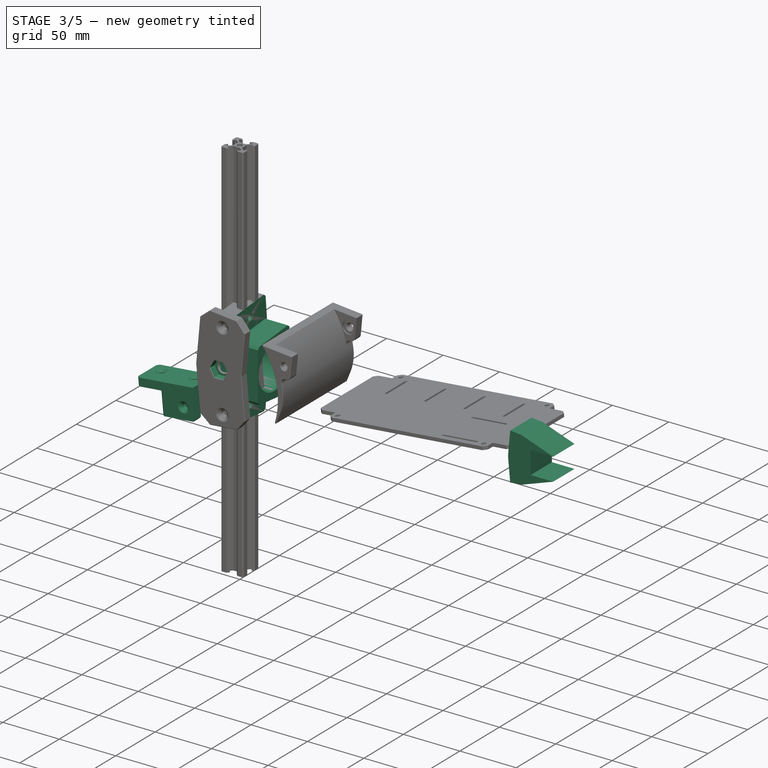
[diagram: stage 3 of 5 — iso view after this stage's code; geometry added in this stage tinted green]
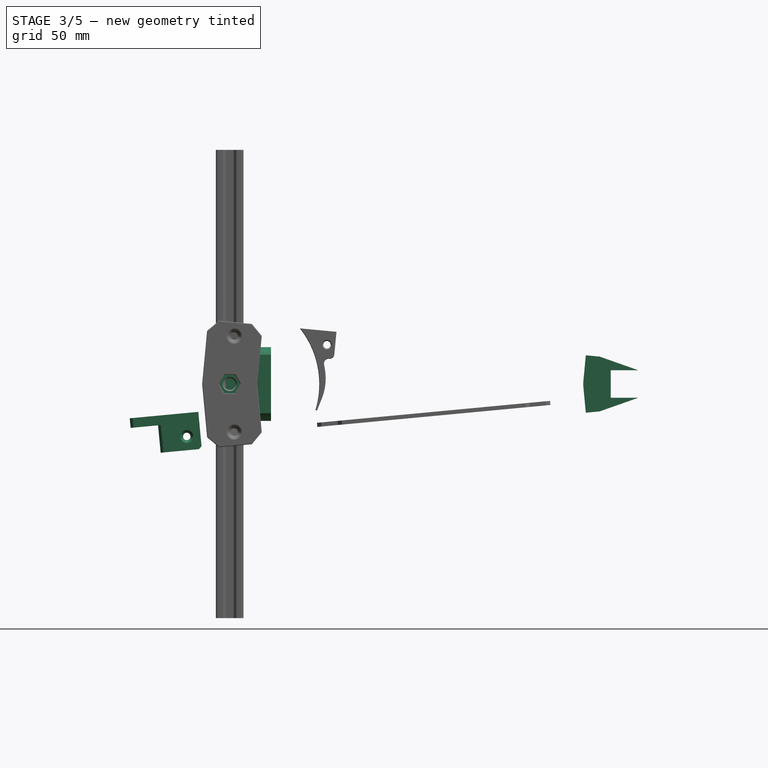
[diagram: stage 3 of 5 — front view after this stage's code; geometry added in this stage tinted green]
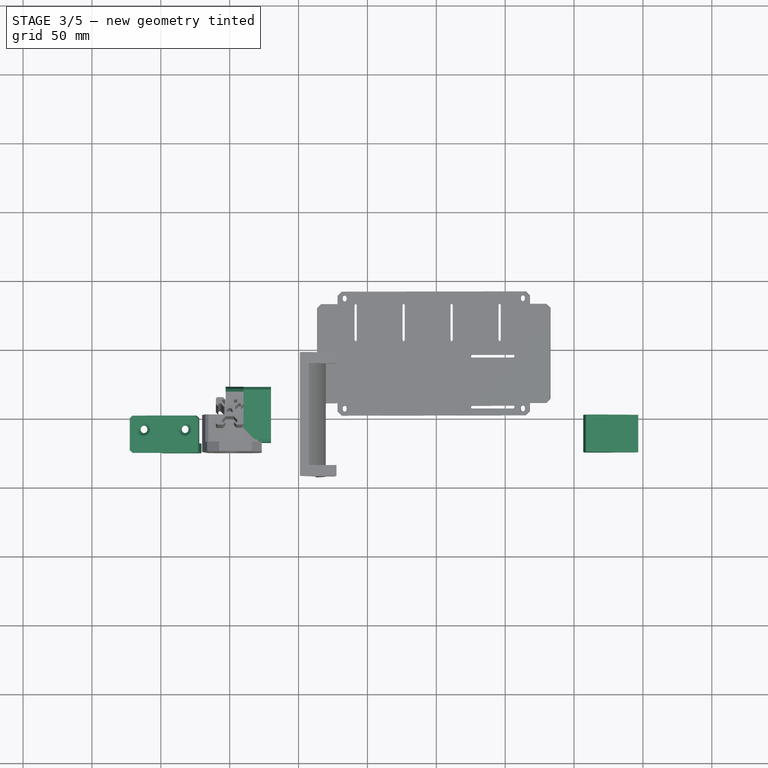
[diagram: stage 3 of 5 — top view after this stage's code; geometry added in this stage tinted green]
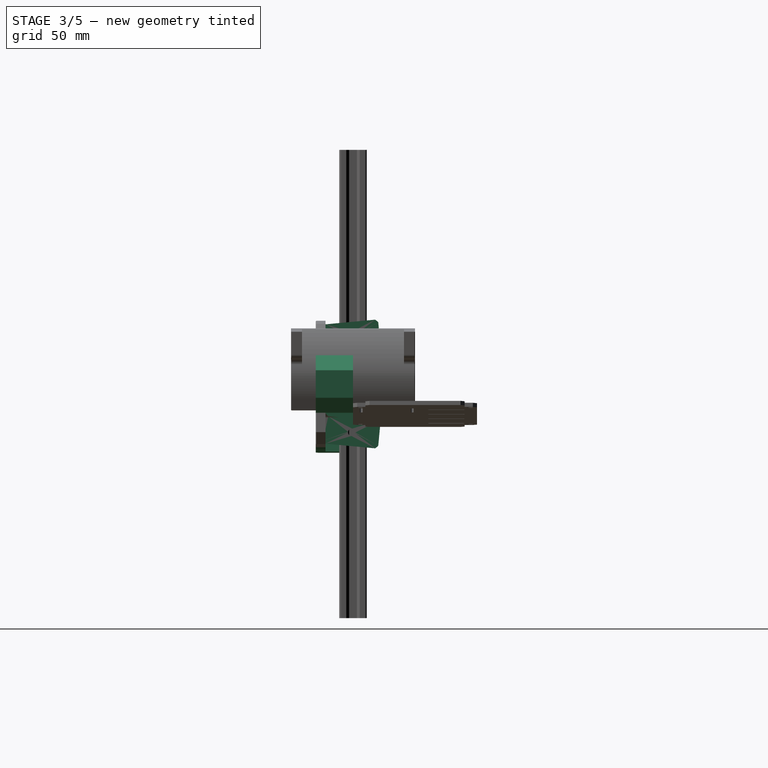
[diagram: stage 3 of 5 — right view after this stage's code; geometry added in this stage tinted green]
FEATURE [PartDesign::Body] Body018  label="CoinAvant"
  AllowCompound = true
  Group = -> [Binder009,Sketch045,Pad026,Sketch046,Pad027,Sketch047,Pad028,Chamfer008,Sketch048,Pocket018,Sketch049,Pocket019,Sketch050,Pocket020,Chamfer009,Chamfer010,Fillet004,Fillet005,Chamfer011,Fillet006]
  Origin = -> Origin026
  Tip = -> Fillet006
FEATURE [PartDesign::SubShapeBinder] Binder010  label="Binder010(Squelette)"
  BindCopyOnChange = 0
  BindMode = 0
  ClaimChildren = false
  Context = -> Part007 [Body019.Binder010.]
  Fuse = false
  MakeFace = true
  OffsetFill = false
  OffsetIntersection = false
  OffsetJoinType = 0
  OffsetOpenResult = false
  PartialLoad = false
  Relative = true
  Support = -> [Sketch]
  _Version = 8
FEATURE [Sketcher::SketchObject] Sketch051
  ArcFitTolerance = 1e-06
  AttachmentSupport = -> [XZ_Plane023]
  ExternalGeometry = -> [Binder010]
  ExternalTypes = [0]
  FullyConstrained = true
  MakeInternals = false
  MapMode = 5
  Placement = pos=(0,0,0) rot=(1,0,0;1.5708rad)
  sketch-geometry (10):
    g0: LineSegment StartX=258.51 StartY=-20.8493 StartZ=0 EndX=256.635 EndY=-0.937419 EndZ=0
    g1: LineSegment StartX=256.635 StartY=-0.937419 StartZ=0 EndX=256.635 EndY=0.937419 EndZ=0
    g2: LineSegment StartX=256.635 StartY=0.937419 StartZ=0 EndX=258.51 EndY=20.8493 EndZ=0
    g3: LineSegment StartX=258.51 StartY=20.8493 StartZ=0 EndX=268.466 EndY=19.9119 EndZ=0
    g4: LineSegment StartX=268.466 StartY=19.9119 StartZ=0 EndX=296.591 EndY=10 EndZ=0
    g5: LineSegment StartX=296.591 StartY=10 StartZ=0 EndX=276.591 EndY=10 EndZ=0
    g6: LineSegment StartX=276.591 StartY=10 StartZ=0 EndX=276.591 EndY=-10 EndZ=0
    g7: LineSegment StartX=276.591 StartY=-10 StartZ=0 EndX=296.591 EndY=-10 EndZ=0
    g8: LineSegment StartX=296.591 StartY=-10 StartZ=0 EndX=268.466 EndY=-19.9119 EndZ=0
    g9: LineSegment StartX=268.466 StartY=-19.9119 StartZ=0 EndX=258.51 EndY=-20.8493 EndZ=0
  constraints (28):
    c: Coincident(g0,g1)
    c: Coincident(g1,g2)
    c: Coincident(g2,g3)
    c: Coincident(g3,g4)
    c: Coincident(g4,g5)
    c: Horizontal(g5)
    c: Coincident(g5,g6)
    c: Coincident(g6,g7)
    c: Horizontal(g7)
    c: Coincident(g7,g8)
    c: Coincident(g8,g9)
    c: Coincident(g9,g0)
    c: Equal(g3,g9)
    c: Equal(g0,g2)
    c: Distance(g2) = 20
    c: Perpendicular(g2,g3)
    c: Perpendicular(g9,g0)
    c: Equal(g7,g5)
    c: Equal(g5,g6)
    c: Equal(g6,g2)
    c: Symmetric(g5,g6,g-1)
    c: DistanceX(g-3,g5) = 10
    c: PointOnObject(g3,g-3)
    c: Parallel(g-4,g9)
    c: Symmetric(g0,g1,g-1)
    c: Distance(g0,g-3) = 10
    c: Perpendicular(g-3,g3)
    c: PointOnObject(g1,g-5)
FEATURE [PartDesign::Pad] Pad029
  AlongSketchNormal = false
  Direction = (0,-1,2e-16)
  Length = 27
  Length2 = 10
  Placement = pos=(0,0,0) rot=(1,0,0;1.5708rad)
  Profile = -> Sketch051
  ReferenceAxis = -> Sketch051 [N_Axis]
  Refine = true
  SideType = 0
  Suppressed = false
  Type = 0
  Type2 = 0
FEATURE [PartDesign::Body] Body019  label="CoinInterieurAvant"
  AllowCompound = true
  Group = -> [Binder010,Sketch051,Pad029,Sketch052,Pad030,Sketch053,Pocket021,Sketch054,Pocket022,Sketch055,Pocket023,Chamfer012,Chamfer013,Chamfer014,Chamfer015,Chamfer016,Chamfer017]
  Origin = -> Origin027
  Tip = -> Chamfer017
FEATURE [PartDesign::SubShapeBinder] Binder011  label="Binder011(Squelette)"
  BindCopyOnChange = 0
  BindMode = 0
  ClaimChildren = false
  Context = -> Part007 [Body020.Binder011.]
  Fuse = false
  MakeFace = true
  OffsetFill = false
  OffsetIntersection = false
  OffsetJoinType = 0
  OffsetOpenResult = false
  PartialLoad = false
  Relative = true
  Support = -> [Sketch]
  _Version = 8
FEATURE [Sketcher::SketchObject] Sketch056
  ArcFitTolerance = 1e-06
  AttachmentSupport = -> [XZ_Plane024]
  ExternalGeometry = -> [Binder011]
  ExternalTypes = [0]
  FullyConstrained = true
  MakeInternals = false
  MapMode = 5
  Placement = pos=(0,0,0) rot=(1,0,0;1.5708rad)
  sketch-geometry (4):
    g0: LineSegment StartX=-52 StartY=-29.9974 StartZ=0 EndX=-50.1252 EndY=-49.9093 EndZ=0
    g1: LineSegment StartX=-50.1252 StartY=-49.9093 StartZ=0 EndX=-40.1692 EndY=-48.9719 EndZ=0
    g2: LineSegment StartX=-40.1692 StartY=-48.9719 StartZ=0 EndX=-42.044 EndY=-29.06 EndZ=0
    g3: LineSegment StartX=-42.044 StartY=-29.06 StartZ=0 EndX=-52 EndY=-29.9974 EndZ=0
  constraints (12):
    c: PointOnObject(g0,g-3)
    c: Coincident(g0,g1)
    c: Coincident(g1,g2)
    c: PointOnObject(g2,g-3)
    c: Coincident(g2,g3)
    c: Coincident(g3,g0)
    c: Perpendicular(g3,g2)
    c: Perpendicular(g2,g1)
    c: Perpendicular(g0,g1)
    c: PointOnObject(g0,g-4)
    c: Distance(g0) = 20
    c: Distance(g3) = 10
FEATURE [PartDesign::Pad] Pad031
  AlongSketchNormal = false
  Direction = (0,-1,2e-16)
  Length = 20
  Length2 = 10
  Placement = pos=(0,0,0) rot=(1,0,0;1.5708rad)
  Profile = -> Sketch056
  ReferenceAxis = -> Sketch056 [N_Axis]
  Refine = true
  SideType = 0
  Suppressed = false
  Type = 0
  Type2 = 0
FEATURE [Sketcher::SketchObject] Sketch057
  ArcFitTolerance = 1e-06
  AttachmentOffset = pos=(0,0,0) rot=(0,0,1;1.5708rad)
  AttachmentSupport = -> [Pad031]
  ExternalGeometry = -> [Pad031]
  ExternalTypes = [0]
  FullyConstrained = true
  MakeInternals = false
  MapMode = 5
  Placement = pos=(-54.3427,-2.2e-15,-5.11671) rot=(0.594587,-0.594587,-0.541233;2.14942rad)
  sketch-geometry (5):
    g0: LineSegment StartX=0 StartY=-17.9907 StartZ=0 EndX=27 EndY=-17.9907 EndZ=0
    g1: LineSegment StartX=27 StartY=-17.9907 StartZ=0 EndX=27 EndY=-44.9907 EndZ=0
    g2: LineSegment StartX=27 StartY=-44.9907 StartZ=0 EndX=20 EndY=-44.9907 EndZ=0
    g3: LineSegment [constr] StartX=20 StartY=-24.9907 StartZ=0 EndX=20 EndY=-17.9907 EndZ=0
    g4: LineSegment StartX=0 StartY=-24.9907 StartZ=0 EndX=0 EndY=-17.9907 EndZ=0
  constraints (14):
    c: Horizontal(g0)
    c: Coincident(g0,g1)
    c: Vertical(g1)
    c: Coincident(g1,g2)
    c: Coincident(g2,g-5)
    c: Horizontal(g2)
    c: Coincident(g3,g-5)
    c: PointOnObject(g3,g0)
    c: Vertical(g3)
    c: Equal(g3,g2)
    c: DistanceX(g2,g2) = 7
    c: Coincident(g4,g-4)
    c: Coincident(g4,g0)
    c: Vertical(g4)
FEATURE [PartDesign::Pad] Pad032
  AlongSketchNormal = false
  BaseFeature = -> Pad031
  Direction = (-0.995597,0,-0.0937419)
  Length = 30
  Length2 = 10
  Placement = pos=(0,0,0) rot=(1,0,0;1.5708rad)
  Profile = -> Sketch057
  ReferenceAxis = -> Sketch057 [N_Axis]
  Refine = true
  Reversed = true
  SideType = 0
  Suppressed = false
  Type = 0
  Type2 = 0
FEATURE [Sketcher::SketchObject] Sketch058
  ArcFitTolerance = 1e-06
  AttachmentOffset = pos=(0,0,0) rot=(0,0,1;1.5708rad)
  AttachmentSupport = -> [Pad032]
  ExternalTypes = [0]
  FullyConstrained = true
  MakeInternals = false
  MapMode = 5
  Placement = pos=(-54.3427,2.29e-14,-5.11671) rot=(0.594587,-0.594587,-0.541233;2.14942rad)
  sketch-geometry (4):
    g0: LineSegment StartX=0 StartY=-17.9907 StartZ=0 EndX=27 EndY=-17.9907 EndZ=0
    g1: LineSegment StartX=27 StartY=-17.9907 StartZ=0 EndX=27 EndY=-24.9907 EndZ=0
    g2: LineSegment StartX=27 StartY=-24.9907 StartZ=0 EndX=0 EndY=-24.9907 EndZ=0
    g3: LineSegment StartX=0 StartY=-24.9907 StartZ=0 EndX=0 EndY=-17.9907 EndZ=0
  constraints (10):
    c: Coincident(g0,g1)
    c: Coincident(g1,g2)
    c: Coincident(g2,g3)
    c: Coincident(g3,g0)
    c: Horizontal(g2)
    c: Vertical(g1)
    c: Vertical(g3)
    c: Coincident(g0,g-3)
    c: Coincident(g0,g-3)
    c: DistanceY(g1,g1) = 7
FEATURE [PartDesign::Pad] Pad033
  AlongSketchNormal = false
  BaseFeature = -> Pad032
  Direction = (-0.995597,0,-0.0937419)
  Length = 20
  Length2 = 10
  Placement = pos=(0,0,0) rot=(1,0,0;1.5708rad)
  Profile = -> Sketch058
  ReferenceAxis = -> Sketch058 [N_Axis]
  Refine = true
  SideType = 0
  Suppressed = false
  Type = 0
  Type2 = 0
FEATURE [Sketcher::SketchObject] Sketch059
  ArcFitTolerance = 1e-06
  AttachmentSupport = -> [Pad033]
  ExternalGeometry = -> [Pad033]
  ExternalTypes = [0]
  FullyConstrained = true
  MakeInternals = false
  MapMode = 5
  Placement = pos=(2.34268,-6e-15,-24.8807) rot=(0.998899,0,0.046923;3.14159rad)
  sketch-geometry (2):
    g0: Circle CenterX=-64.583 CenterY=10 CenterZ=0 NormalX=0 NormalY=0 NormalZ=1 AngleXU=0 Radius=2.7
    g1: LineSegment [constr] StartX=-64.583 StartY=10 StartZ=0 EndX=-64.583 EndY=1.24e-14 EndZ=0
  constraints (5):
    c: Diameter(g0) = 5.4
    c: DistanceY(g-3,g0) = 10
    c: Coincident(g1,g0)
    c: Symmetric(g-3,g-3,g1)
    c: Vertical(g1)
FEATURE [PartDesign::Pocket] Pocket024
  AlongSketchNormal = false
  BaseFeature = -> Pad033
  Direction = (-0.0937419,0,0.995597)
  Length = 12
  Length2 = 10
  Placement = pos=(0,0,0) rot=(1,0,0;1.5708rad)
  Profile = -> Sketch059
  ReferenceAxis = -> Sketch059 [N_Axis]
  Refine = true
  SideType = 0
  Suppressed = false
  Type = 0
  Type2 = 0
FEATURE [Sketcher::SketchObject] Sketch060
  ArcFitTolerance = 1e-06
  AttachmentSupport = -> [Pocket024]
  ExternalGeometry = -> [Pocket024]
  ExternalTypes = [0]
  FullyConstrained = true
  MakeInternals = false
  MapMode = 5
  Placement = pos=(2.34268,-1.5e-14,-24.8807) rot=(0.998899,0,0.046923;3.14159rad)
  sketch-geometry (1):
    g0: Circle CenterX=-34.583 CenterY=10 CenterZ=0 NormalX=0 NormalY=0 NormalZ=1 AngleXU=0 Radius=2.7
  constraints (2):
    c: Symmetric(g-3,g-4,g0)
    c: Diameter(g0) = 5.4
FEATURE [PartDesign::Pocket] Pocket025
  AlongSketchNormal = false
  BaseFeature = -> Pocket024
  Direction = (-0.0937419,0,0.995597)
  Length = 16
  Length2 = 10
  Placement = pos=(0,0,0) rot=(1,0,0;1.5708rad)
  Profile = -> Sketch060
  ReferenceAxis = -> Sketch060 [N_Axis]
  Refine = true
  SideType = 0
  Suppressed = false
  Type = 0
  Type2 = 0
FEATURE [Sketcher::SketchObject] Sketch061
  ArcFitTolerance = 1e-06
  AttachmentOffset = pos=(0,0,0) rot=(0,0,1;3.14159rad)
  AttachmentSupport = -> [Pocket025]
  ExternalGeometry = -> [Pocket025]
  ExternalTypes = [0]
  FullyConstrained = true
  MakeInternals = false
  MapMode = 5
  Placement = pos=(-8e-16,-20,1.2e-14) rot=(0,0.707107,0.707107;3.14159rad)
  sketch-geometry (1):
    g0: Circle CenterX=31.1507 CenterY=-38.0785 CenterZ=0 NormalX=0 NormalY=0 NormalZ=1 AngleXU=0 Radius=2.7
  constraints (2):
    c: Symmetric(g-4,g-3,g0)
    c: Diameter(g0) = 5.4
FEATURE [PartDesign::Pocket] Pocket026
  AlongSketchNormal = false
  BaseFeature = -> Pocket025
  Direction = (0,-1,-2e-16)
  Length = 15
  Length2 = 10
  Placement = pos=(0,0,0) rot=(1,0,0;1.5708rad)
  Profile = -> Sketch061
  ReferenceAxis = -> Sketch061 [N_Axis]
  Refine = true
  SideType = 0
  Suppressed = false
  Type = 0
  Type2 = 0
FEATURE [PartDesign::Chamfer] Chamfer018
  Angle = 45
  Base = -> Pocket026 [Edge6,Edge8,Edge18,Edge16,Edge26,Edge34,Edge30,Edge28,Edge22]
  BaseFeature = -> Pocket026
  ChamferType = 0
  FlipDirection = false
  Placement = pos=(0,0,0) rot=(1,0,0;1.5708rad)
  Refine = true
  Size = 2
  Size2 = 1
  SupportTransform = false
  Suppressed = false
  UseAllEdges = false
FEATURE [PartDesign::Chamfer] Chamfer019
  Angle = 45
  Base = -> Chamfer018 [Edge46,Edge26,Edge17]
  BaseFeature = -> Chamfer018
  ChamferType = 0
  FlipDirection = false
  Placement = pos=(0,0,0) rot=(1,0,0;1.5708rad)
  Refine = true
  Size = 1
  Size2 = 1
  SupportTransform = false
  Suppressed = false
  UseAllEdges = false
FEATURE [PartDesign::Body] Body020  label="CoinInterieurArriere"
  AllowCompound = true
  Group = -> [Binder011,Sketch056,Pad031,Sketch057,Pad032,Sketch058,Pad033,Sketch059,Pocket024,Sketch060,Pocket025,Sketch061,Pocket026,Chamfer018,Chamfer019]
  Origin = -> Origin028
  Tip = -> Chamfer019
FEATURE [App::Part] Part007  label="ChassisInterieur"
  Group = -> [Body019,Body020]
  Origin = -> Origin022
  Placement = pos=(0,110,0) rot=(0,0,1;0rad)
FEATURE [PartDesign::SubShapeBinder] Binder012  label="Binder012(Squelette)"
  BindCopyOnChange = 0
  BindMode = 0
  ClaimChildren = false
  Context = -> Part003 [Part002.Body021.Binder012.]
  Fuse = false
  MakeFace = true
  OffsetFill = false
  OffsetIntersection = false
  OffsetJoinType = 0
  OffsetOpenResult = false
  PartialLoad = false
  Relative = true
  Support = -> [Sketch]
  _Version = 8
FEATURE [Sketcher::SketchObject] Sketch062
  ArcFitTolerance = 1e-06
  AttachmentSupport = -> [YZ_Plane025]
  ExternalGeometry = -> [Binder012]
  ExternalTypes = [0]
  FullyConstrained = false
  MakeInternals = false
  MapMode = 5
  Placement = pos=(0,0,0) rot=(0.57735,0.57735,0.57735;2.0944rad)
  sketch-geometry (10):
    g0: LineSegment StartX=20 StartY=-26.9844 StartZ=0 EndX=20 EndY=26.9844 EndZ=0
    g1: LineSegment StartX=20 StartY=26.9844 StartZ=0 EndX=18.1252 EndY=46.8963 EndZ=0
    g2: LineSegment StartX=18.1252 StartY=46.8963 StartZ=0 EndX=-21.8749 EndY=43.1301 EndZ=0
    g3: LineSegment StartX=-21.8749 StartY=43.1301 StartZ=0 EndX=-20 EndY=23.2181 EndZ=0
    g4: LineSegment StartX=-20 StartY=23.2181 StartZ=0 EndX=-20 EndY=-23.2181 EndZ=0
    g5: LineSegment StartX=-20 StartY=-23.2181 StartZ=0 EndX=-21.8748 EndY=-43.1301 EndZ=0
    g6: LineSegment StartX=-21.8748 StartY=-43.1301 StartZ=0 EndX=18.1252 EndY=-46.8963 EndZ=0
    g7: LineSegment StartX=18.1252 StartY=-46.8963 StartZ=0 EndX=20 EndY=-26.9844 EndZ=0
    g8: GeomPoint [constr] X=20 Y=0 Z=0
    g9: GeomPoint [constr] X=-20 Y=0 Z=0
  constraints (25):
    c: PointOnObject(g0,g-4)
    c: PointOnObject(g0,g-3)
    c: Vertical(g0)
    c: Coincident(g0,g1)
    c: Coincident(g1,g2)
    c: Coincident(g2,g3)
    c: PointOnObject(g3,g-3)
    c: Coincident(g3,g4)
    c: PointOnObject(g4,g-4)
    c: Vertical(g4)
    c: Coincident(g4,g5)
    c: Coincident(g5,g6)
    c: Coincident(g6,g7)
    c: Coincident(g7,g0)
    c: Equal(g1,g3)
    c: Equal(g3,g5)
    c: Parallel(g-3,g2)
    c: Perpendicular(g2,g1)
    c: Perpendicular(g6,g5)
    c: Distance(g1) = 20
    c: PointOnObject(g8,g0)
    c: PointOnObject(g9,g4)
    c: PointOnObject(g9,g-1)
    c: Symmetric(g8,g9,g-1)
    c: DistanceX(g-1,g8) = 20
FEATURE [PartDesign::Pad] Pad034
  AlongSketchNormal = false
  Direction = (1,0,0)
  Length = 10
  Length2 = 3
  Placement = pos=(0,0,0) rot=(1,1,1;2.0944rad)
  Profile = -> Sketch062
  ReferenceAxis = -> Sketch062 [N_Axis]
  Refine = true
  SideType = 1
  Suppressed = false
  Type = 0
  Type2 = 0
FEATURE [Sketcher::SketchObject] Sketch063
  ArcFitTolerance = 1e-06
  AttachmentSupport = -> [Pad034]
  ExternalTypes = [0]
  FullyConstrained = true
  MakeInternals = false
  MapMode = 5
  Placement = pos=(10,0,0) rot=(0.57735,0.57735,0.57735;2.0944rad)
  sketch-geometry (4):
    g0: LineSegment StartX=-20 StartY=23.2181 StartZ=0 EndX=20 EndY=26.9844 EndZ=0
    g1: LineSegment StartX=20 StartY=-26.9844 StartZ=0 EndX=-20 EndY=-23.2181 EndZ=0
    g2: LineSegment StartX=20 StartY=26.9844 StartZ=0 EndX=20 EndY=-26.9844 EndZ=0
    g3: LineSegment StartX=-20 StartY=-23.2181 StartZ=0 EndX=-20 EndY=23.2181 EndZ=0
  constraints (8):
    c: Coincident(g0,g-4)
    c: Coincident(g0,g-3)
    c: Coincident(g1,g-3)
    c: Coincident(g1,g-4)
    c: Coincident(g2,g0)
    c: Coincident(g2,g1)
    c: Coincident(g3,g1)
    c: Coincident(g3,g0)
FEATURE [PartDesign::Pad] Pad035
  AlongSketchNormal = false
  BaseFeature = -> Pad034
  Direction = (1,0,0)
  Length = 20
  Length2 = 10
  Placement = pos=(0,0,0) rot=(1,1,1;2.0944rad)
  Profile = -> Sketch063
  ReferenceAxis = -> Sketch063 [N_Axis]
  Refine = true
  SideType = 0
  Suppressed = false
  Type = 0
  Type2 = 0
FEATURE [Sketcher::SketchObject] Sketch064
  ArcFitTolerance = 1e-06
  AttachmentSupport = -> [YZ_Plane025]
  ExternalTypes = [0]
  FullyConstrained = true
  MakeInternals = false
  MapMode = 5
  Placement = pos=(0,0,0) rot=(0.57735,0.57735,0.57735;2.0944rad)
  sketch-geometry (1):
    g0: Circle CenterX=0 CenterY=0 CenterZ=0 NormalX=0 NormalY=0 NormalZ=1 AngleXU=0 Radius=18.1
  constraints (2):
    c: Coincident(g0,g-1)
    c: Diameter(g0) = 36.2
FEATURE [PartDesign::Pocket] Pocket027
  AlongSketchNormal = false
  BaseFeature = -> Pad035
  Direction = (-1,0,0)
  Length = 40
  Length2 = 10
  Placement = pos=(0,0,0) rot=(1,1,1;2.0944rad)
  Profile = -> Sketch064
  ReferenceAxis = -> Sketch064 [N_Axis]
  Refine = true
  Reversed = true
  SideType = 0
  Suppressed = false
  Type = 0
  Type2 = 0
FEATURE [Sketcher::SketchObject] Sketch065
  ArcFitTolerance = 1e-06
  AttachmentSupport = -> [YZ_Plane025]
  ExternalTypes = [0]
  FullyConstrained = true
  MakeInternals = false
  MapMode = 5
  Placement = pos=(0,0,0) rot=(0.57735,0.57735,0.57735;2.0944rad)
  sketch-geometry (6):
    g0: Circle CenterX=0 CenterY=0 CenterZ=0 NormalX=0 NormalY=0 NormalZ=1 AngleXU=0 Radius=11.2
    g1: Circle [constr] CenterX=0 CenterY=0 CenterZ=0 NormalX=0 NormalY=0 NormalZ=1 AngleXU=0 Radius=14
    g2: Circle CenterX=0 CenterY=14 CenterZ=0 NormalX=0 NormalY=0 NormalZ=1 AngleXU=0 Radius=1.7
    g3: Circle CenterX=-14 CenterY=0 CenterZ=0 NormalX=0 NormalY=0 NormalZ=1 AngleXU=0 Radius=1.7
    g4: Circle CenterX=0 CenterY=-14 CenterZ=0 NormalX=0 NormalY=0 NormalZ=1 AngleXU=0 Radius=1.7
    g5: Circle CenterX=14 CenterY=0 CenterZ=0 NormalX=0 NormalY=0 NormalZ=1 AngleXU=0 Radius=1.7
  constraints (16):
    c: Coincident(g0,g-1)
    c: Diameter(g0) = 22.4
    c: Coincident(g1,g0)
    c: Diameter(g1) = 28
    c: PointOnObject(g2,g1)
    c: PointOnObject(g3,g1)
    c: PointOnObject(g4,g1)
    c: PointOnObject(g5,g1)
    c: Equal(g3,g2)
    c: Equal(g3,g4)
    c: Equal(g3,g5)
    c: Diameter(g3) = 3.4
    c: PointOnObject(g3,g-1)
    c: PointOnObject(g4,g-2)
    c: PointOnObject(g2,g-2)
    c: PointOnObject(g5,g-1)
FEATURE [PartDesign::Pocket] Pocket028
  AlongSketchNormal = false
  BaseFeature = -> Pocket027
  Direction = (-1,0,0)
  Length = 13
  Length2 = 10
  Placement = pos=(0,0,0) rot=(1,1,1;2.0944rad)
  Profile = -> Sketch065
  ReferenceAxis = -> Sketch065 [N_Axis]
  Refine = true
  SideType = 0
  Suppressed = false
  Type = 0
  Type2 = 0
FEATURE [Sketcher::SketchObject] Sketch066
  ArcFitTolerance = 1e-06
  AttachmentOffset = pos=(0,0,0) rot=(0,0,1;3.14159rad)
  AttachmentSupport = -> [Pocket028]
  ExternalTypes = [0]
  FullyConstrained = true
  MakeInternals = false
  MapMode = 5
  Placement = pos=(-3,0,0) rot=(0.57735,-0.57735,-0.57735;2.0944rad)
  sketch-geometry (2):
    g0: Circle CenterX=0.937446 CenterY=35.0572 CenterZ=0 NormalX=0 NormalY=0 NormalZ=1 AngleXU=0 Radius=2.7
    g1: Circle CenterX=0.937446 CenterY=-35.0572 CenterZ=0 NormalX=0 NormalY=0 NormalZ=1 AngleXU=0 Radius=2.7
  constraints (4):
    c: Symmetric(g-4,g-3,g0)
    c: Diameter(g0) = 5.4
    c: Equal(g1,g0)
    c: Symmetric(g1,g0,g-1)
FEATURE [PartDesign::Pocket] Pocket029
  AlongSketchNormal = false
  BaseFeature = -> Pocket028
  Direction = (1,0,0)
  Length = 19
  Length2 = 10
  Placement = pos=(0,0,0) rot=(1,1,1;2.0944rad)
  Profile = -> Sketch066
  ReferenceAxis = -> Sketch066 [N_Axis]
  Refine = true
  SideType = 0
  Suppressed = false
  Type = 0
  Type2 = 0
FEATURE [PartDesign::Chamfer] Chamfer020
  Angle = 45
  Base = -> Pocket029 [Edge26,Edge23]
  BaseFeature = -> Pocket029
  ChamferType = 0
  FlipDirection = false
  Placement = pos=(0,0,0) rot=(1,1,1;2.0944rad)
  Refine = true
  Size = 3
  Size2 = 1
  SupportTransform = false
  Suppressed = false
  UseAllEdges = false
FEATURE [PartDesign::Chamfer] Chamfer021
  Angle = 45
  Base = -> Chamfer020 [Edge25,Edge29,Edge27,Edge23,Edge37,Edge20,Edge35,Edge22]
  BaseFeature = -> Chamfer020
  ChamferType = 0
  FlipDirection = false
  Placement = pos=(0,0,0) rot=(1,1,1;2.0944rad)
  Refine = true
  Size = 2
  Size2 = 1
  SupportTransform = false
  Suppressed = false
  UseAllEdges = false
FEATURE [PartDesign::Chamfer] Chamfer023
  Angle = 45
  Base = -> Chamfer021 [Edge76]
  BaseFeature = -> Chamfer021
  ChamferType = 0
  FlipDirection = false
  Placement = pos=(0,0,0) rot=(1,1,1;2.0944rad)
  Refine = true
  Size = 1
  Size2 = 1
  SupportTransform = false
  Suppressed = false
  UseAllEdges = false
FEATURE [PartDesign::Chamfer] Chamfer024
  Angle = 45
  Base = -> Chamfer023 [Edge66,Edge67,Edge64,Edge63]
  BaseFeature = -> Chamfer023
  ChamferType = 0
  FlipDirection = false
  Placement = pos=(0,0,0) rot=(1,1,1;2.0944rad)
  Refine = true
  Size = 1
  Size2 = 1
  SupportTransform = false
  Suppressed = false
  UseAllEdges = false
FEATURE [PartDesign::Chamfer] Chamfer030
  Angle = 45
  Base = -> Pocket031 [Edge17]
  BaseFeature = -> Pocket031
  ChamferType = 0
  FlipDirection = false
  Placement = pos=(0,0,0) rot=(1,0,0;1.5708rad)
  Refine = true
  Size = 1
  Size2 = 1
  SupportTransform = false
  Suppressed = false
  UseAllEdges = false
FEATURE [Sketcher::SketchObject] Sketch072
  ArcFitTolerance = 1e-06
  AttachmentSupport = -> [Chamfer030]
  ExternalTypes = [0]
  FullyConstrained = true
  MakeInternals = false
  MapMode = 5
  Placement = pos=(0,-27,6.5e-15) rot=(1,0,0;1.5708rad)
  sketch-geometry (7):
    g0: LineSegment StartX=7.73649 StartY=0 StartZ=0 EndX=3.86825 EndY=6.7 EndZ=0
    g1: LineSegment StartX=3.86825 StartY=6.7 StartZ=0 EndX=-3.86825 EndY=6.7 EndZ=0
    g2: LineSegment StartX=-3.86825 StartY=6.7 StartZ=0 EndX=-7.73649 EndY=-9e-16 EndZ=0
    g3: LineSegment StartX=-7.73649 StartY=-9e-16 StartZ=0 EndX=-3.86825 EndY=-6.7 EndZ=0
    g4: LineSegment StartX=-3.86825 StartY=-6.7 StartZ=0 EndX=3.86825 EndY=-6.7 EndZ=0
    g5: LineSegment StartX=3.86825 StartY=-6.7 StartZ=0 EndX=7.73649 EndY=0 EndZ=0
    g6: Circle [constr] CenterX=0 CenterY=0 CenterZ=0 NormalX=0 NormalY=0 NormalZ=1 AngleXU=0 Radius=7.73649
  constraints (16):
    c: Coincident(g0,g1)
    c: Coincident(g1,g2)
    c: Coincident(g2,g3)
    c: Coincident(g3,g4)
    c: Coincident(g4,g5)
    c: Coincident(g5,g0)
    c: Equal(g0, g1-g5) x5
    c: PointOnObject(g0,g6)
    c: PointOnObject(g1,g6)
    c: PointOnObject(g2,g6)
    c: PointOnObject(g3,g6)
    c: PointOnObject(g4,g6)
    c: PointOnObject(g5,g6)
    c: Coincident(g6,g-1)
    c: DistanceY(g4,g0) = 13.4
    c: PointOnObject(g0,g-1)
FEATURE [PartDesign::Pocket] Pocket032
  AlongSketchNormal = false
  BaseFeature = -> Chamfer030
  Direction = (0,1,-2e-16)
  Length = 6
  Length2 = 10
  Placement = pos=(0,0,0) rot=(1,0,0;1.5708rad)
  Profile = -> Sketch072
  ReferenceAxis = -> Sketch072 [N_Axis]
  Refine = true
  SideType = 0
  Suppressed = false
  Type = 0
  Type2 = 0
FEATURE [PartDesign::Chamfer] Chamfer031
  Angle = 45
  Base = -> Pocket032 [Edge47]
  BaseFeature = -> Pocket032
  ChamferType = 0
  FlipDirection = false
  Placement = pos=(0,0,0) rot=(1,0,0;1.5708rad)
  Refine = true
  Size = 1
  Size2 = 1
  SupportTransform = false
  Suppressed = false
  UseAllEdges = false
FEATURE [PartDesign::Chamfer] Chamfer032
  Angle = 45
  Base = -> Chamfer031 [Edge84,Edge79,Face22]
  BaseFeature = -> Chamfer031
  ChamferType = 0
  FlipDirection = false
  Placement = pos=(0,0,0) rot=(1,0,0;1.5708rad)
  Refine = true
  Size = 0.4
  Size2 = 1
  SupportTransform = false
  Suppressed = false
  UseAllEdges = false
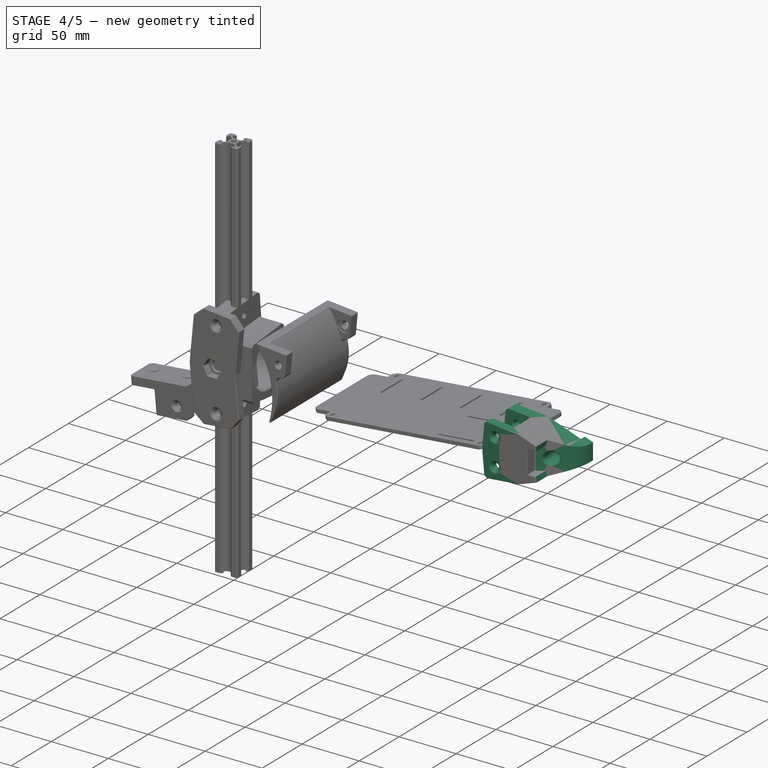
[diagram: stage 4 of 5 — iso view after this stage's code; geometry added in this stage tinted green]
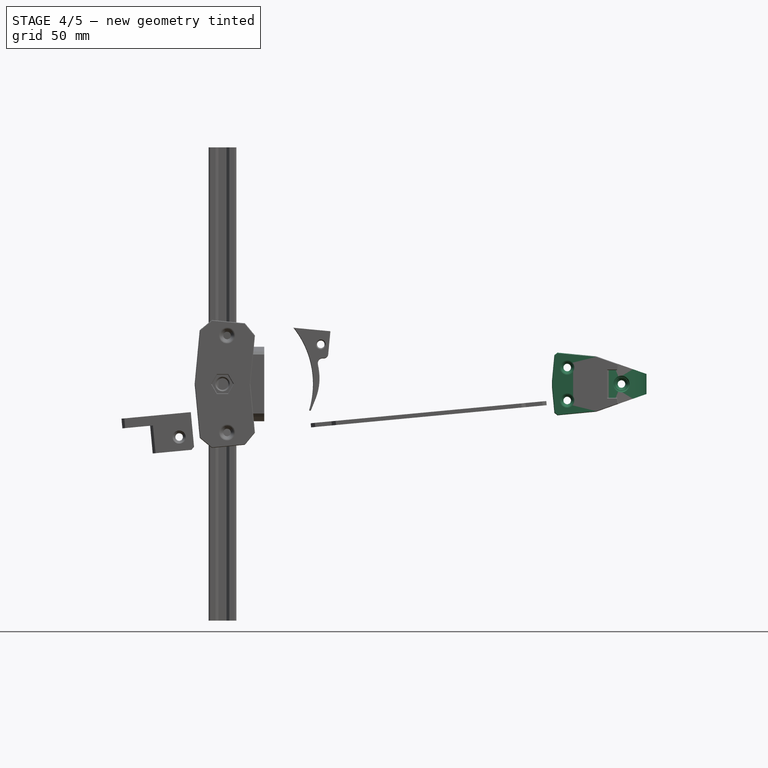
[diagram: stage 4 of 5 — front view after this stage's code; geometry added in this stage tinted green]
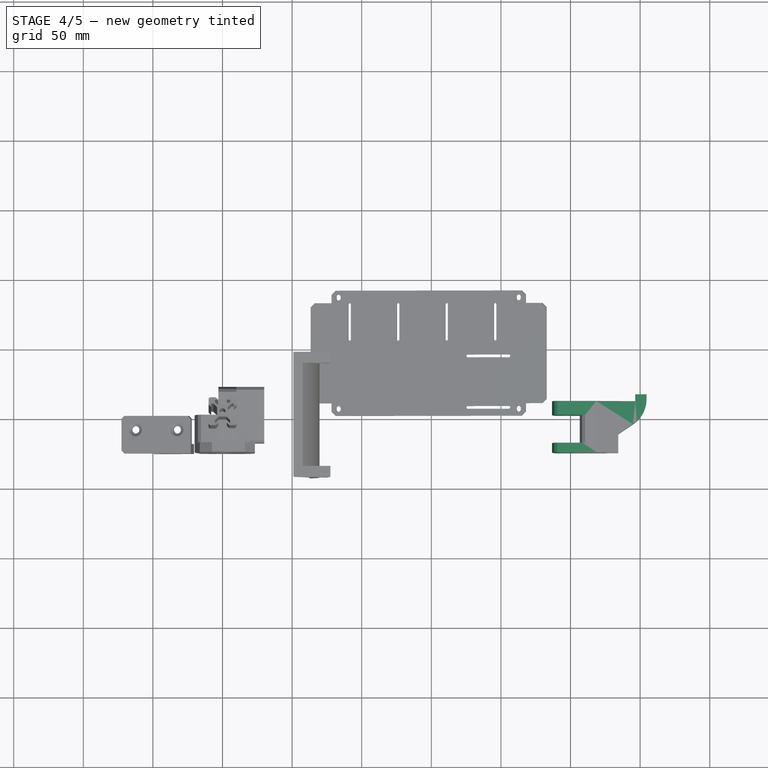
[diagram: stage 4 of 5 — top view after this stage's code; geometry added in this stage tinted green]
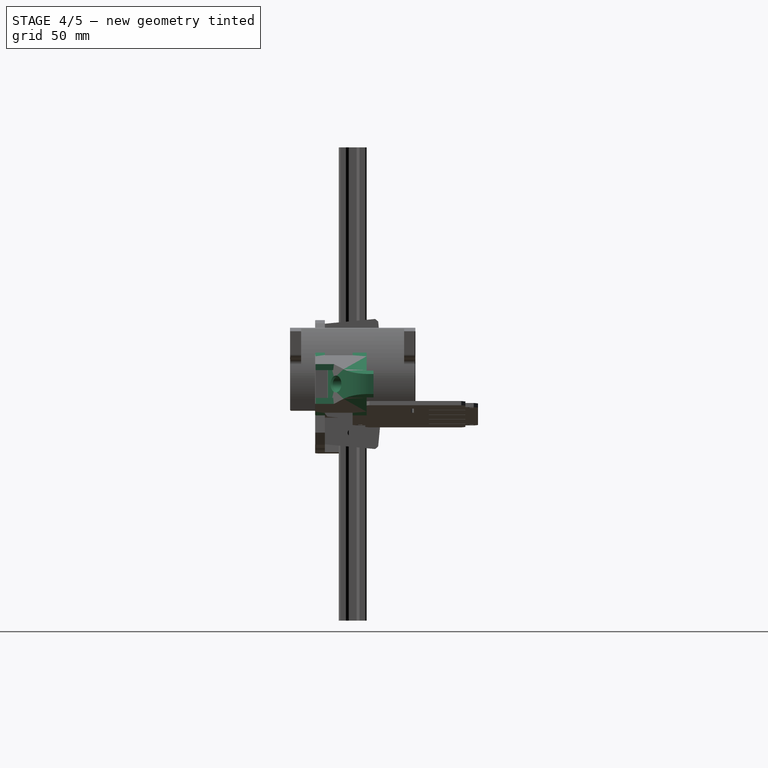
[diagram: stage 4 of 5 — right view after this stage's code; geometry added in this stage tinted green]
FEATURE [PartDesign::SubShapeBinder] Binder009  label="Binder009(Squelette)"
  BindCopyOnChange = 0
  BindMode = 0
  ClaimChildren = false
  Context = -> Part004 [Body018.Binder009.]
  Fuse = false
  MakeFace = true
  OffsetFill = false
  OffsetIntersection = false
  OffsetJoinType = 0
  OffsetOpenResult = false
  PartialLoad = false
  Relative = true
  Support = -> [Sketch]
  _Version = 8
FEATURE [Sketcher::SketchObject] Sketch045
  ArcFitTolerance = 1e-06
  AttachmentSupport = -> [XZ_Plane022]
  ExternalGeometry = -> [Binder009]
  ExternalTypes = [0]
  FullyConstrained = true
  MakeInternals = false
  MapMode = 5
  Placement = pos=(0,0,0) rot=(1,0,0;1.5708rad)
  sketch-geometry (8):
    g0: LineSegment StartX=296.591 StartY=10 StartZ=0 EndX=296.591 EndY=-10 EndZ=0
    g1: LineSegment StartX=236.723 StartY=-2.81226 StartZ=0 EndX=236.723 EndY=2.81226 EndZ=0
    g2: LineSegment StartX=236.723 StartY=2.81226 StartZ=0 EndX=238.598 EndY=22.7242 EndZ=0
    g3: LineSegment StartX=238.598 StartY=22.7242 StartZ=0 EndX=268.466 EndY=19.9119 EndZ=0
    g4: LineSegment StartX=268.466 StartY=19.9119 StartZ=0 EndX=296.591 EndY=10 EndZ=0
    g5: LineSegment StartX=296.591 StartY=-10 StartZ=0 EndX=268.466 EndY=-19.9119 EndZ=0
    g6: LineSegment StartX=268.466 StartY=-19.9119 StartZ=0 EndX=238.598 EndY=-22.7242 EndZ=0
    g7: LineSegment StartX=238.598 StartY=-22.7242 StartZ=0 EndX=236.723 EndY=-2.81226 EndZ=0
  constraints (23):
    c: Symmetric(g0,g0,g-1)
    c: DistanceY(g0,g0) = 20
    c: DistanceX(g-5,g0) = 30
    c: PointOnObject(g1,g-4)
    c: PointOnObject(g1,g-3)
    c: Vertical(g1)
    c: Coincident(g2,g1)
    c: Coincident(g2,g3)
    c: PointOnObject(g3,g-5)
    c: Coincident(g3,g4)
    c: Coincident(g4,g0)
    c: Coincident(g5,g0)
    c: Coincident(g6,g5)
    c: Coincident(g7,g6)
    c: Coincident(g7,g1)
    c: Equal(g7,g2)
    c: Perpendicular(g-4,g7)
    c: Equal(g6,g3)
    c: Equal(g5,g4)
    c: Distance(g2) = 20
    c: Perpendicular(g7,g6)
    c: Perpendicular(g2,g3)
    c: Distance(g3) = 30
FEATURE [PartDesign::Pad] Pad026
  AlongSketchNormal = false
  Direction = (0,-1,2e-16)
  Length = 10
  Length2 = 10
  Placement = pos=(0,0,0) rot=(1,0,0;1.5708rad)
  Profile = -> Sketch045
  ReferenceAxis = -> Sketch045 [N_Axis]
  Refine = true
  Reversed = true
  SideType = 0
  Suppressed = false
  Type = 0
  Type2 = 0
FEATURE [Sketcher::SketchObject] Sketch046
  ArcFitTolerance = 1e-06
  AttachmentSupport = -> [Pad026]
  ExternalGeometry = -> [Pad026]
  ExternalTypes = [0]
  FullyConstrained = false
  MakeInternals = false
  MapMode = 5
  Placement = pos=(0,0,0) rot=(1,0,0;1.5708rad)
  sketch-geometry (10):
    g0: LineSegment StartX=258.51 StartY=-20.8493 StartZ=0 EndX=268.466 EndY=-19.9119 EndZ=0
    g1: LineSegment StartX=268.466 StartY=-19.9119 StartZ=0 EndX=296.591 EndY=-10 EndZ=0
    g2: LineSegment StartX=296.591 StartY=-10 StartZ=0 EndX=296.591 EndY=10 EndZ=0
    g3: LineSegment StartX=296.591 StartY=10 StartZ=0 EndX=268.466 EndY=19.9119 EndZ=0
    g4: LineSegment StartX=268.466 StartY=19.9119 StartZ=0 EndX=258.51 EndY=20.8493 EndZ=0
    g5: LineSegment StartX=258.51 StartY=20.8493 StartZ=0 EndX=256.635 EndY=0.937419 EndZ=0
    g6: LineSegment StartX=256.635 StartY=-0.937419 StartZ=0 EndX=258.51 EndY=-20.8493 EndZ=0
    g7: LineSegment StartX=256.635 StartY=-0.937419 StartZ=0 EndX=256.635 EndY=0.937419 EndZ=0
    g8: LineSegment [constr] StartX=236.723 StartY=2.81226 StartZ=0 EndX=256.635 EndY=0.937419 EndZ=0
    g9: LineSegment [constr] StartX=236.723 StartY=-2.81226 StartZ=0 EndX=256.635 EndY=-0.937419 EndZ=0
  constraints (22):
    c: PointOnObject(g4,g-7)
    c: PointOnObject(g0,g-6)
    c: Coincident(g0,g-6)
    c: Coincident(g0,g1)
    c: Coincident(g1,g-5)
    c: Coincident(g1,g2)
    c: Coincident(g2,g-4)
    c: Coincident(g2,g3)
    c: Equal(g0,g4)
    c: Distance(g4) = 10
    c: Coincident(g5,g4)
    c: Coincident(g6,g0)
    c: Coincident(g7,g6)
    c: Coincident(g7,g5)
    c: Vertical(g7)
    c: Equal(g6,g5)
    c: Distance(g5) = 20
    c: Perpendicular(g4,g5)
    c: Coincident(g4,g3)
    c: Coincident(g3,g-7)
    c: Coincident(g8,g5)
    c: Coincident(g9,g6)
FEATURE [PartDesign::Pad] Pad027
  AlongSketchNormal = false
  BaseFeature = -> Pad026
  Direction = (0,-1,2e-16)
  Length = 20
  Length2 = 10
  Placement = pos=(0,0,0) rot=(1,0,0;1.5708rad)
  Profile = -> Sketch046
  ReferenceAxis = -> Sketch046 [N_Axis]
  Refine = true
  SideType = 0
  Suppressed = false
  Type = 0
  Type2 = 0
FEATURE [Sketcher::SketchObject] Sketch047
  ArcFitTolerance = 1e-06
  AttachmentSupport = -> [Pad027]
  ExternalTypes = [0]
  FullyConstrained = true
  MakeInternals = false
  MapMode = 5
  Placement = pos=(0,-20,0) rot=(1,0,0;1.5708rad)
  sketch-geometry (4):
    g0: LineSegment StartX=296.591 StartY=-10 StartZ=0 EndX=296.591 EndY=10 EndZ=0
    g1: LineSegment StartX=296.591 StartY=10 StartZ=0 EndX=304.591 EndY=7.18062 EndZ=0
    g2: LineSegment StartX=304.591 StartY=7.18062 StartZ=0 EndX=304.591 EndY=-7.18062 EndZ=0
    g3: LineSegment StartX=304.591 StartY=-7.18062 StartZ=0 EndX=296.591 EndY=-10 EndZ=0
  constraints (10):
    c: Coincident(g0,g-5)
    c: Coincident(g0,g-4)
    c: Coincident(g1,g0)
    c: Coincident(g1,g2)
    c: Vertical(g2)
    c: Coincident(g2,g3)
    c: Coincident(g3,g0)
    c: Tangent(g3,g-5)
    c: Tangent(g1,g-4)
    c: DistanceX(g0,g1) = 8
FEATURE [PartDesign::Pad] Pad028
  AlongSketchNormal = false
  BaseFeature = -> Pad027
  Direction = (0,-1,2e-16)
  Length = 35
  Length2 = 10
  Placement = pos=(0,0,0) rot=(1,0,0;1.5708rad)
  Profile = -> Sketch047
  ReferenceAxis = -> Sketch047 [N_Axis]
  Refine = true
  Reversed = true
  SideType = 0
  Suppressed = false
  Type = 0
  Type2 = 0
FEATURE [PartDesign::Chamfer] Chamfer008
  Angle = 45
  Base = -> Pad028 [Edge39]
  BaseFeature = -> Pad028
  ChamferType = 1
  FlipDirection = false
  Placement = pos=(0,0,0) rot=(1,0,0;1.5708rad)
  Refine = true
  Size = 20
  Size2 = 30
  SupportTransform = false
  Suppressed = false
  UseAllEdges = false
FEATURE [Sketcher::SketchObject] Sketch048
  ArcFitTolerance = 1e-06
  AttachmentOffset = pos=(0,0,0) rot=(0,0,1;3.14159rad)
  AttachmentSupport = -> [Chamfer008]
  ExternalTypes = [0]
  FullyConstrained = true
  MakeInternals = false
  MapMode = 5
  Placement = pos=(0,10,0) rot=(0,0.707107,0.707107;3.14159rad)
  sketch-geometry (1):
    g0: Circle CenterX=-286.591 CenterY=0 CenterZ=0 NormalX=0 NormalY=0 NormalZ=1 AngleXU=0 Radius=2.7
  constraints (3):
    c: PointOnObject(g0,g-1)
    c: DistanceX(g-3,g0) = 10
    c: Diameter(g0) = 5.4
FEATURE [PartDesign::Pocket] Pocket018
  AlongSketchNormal = false
  BaseFeature = -> Chamfer008
  Direction = (0,-1,-2e-16)
  Length = 30
  Length2 = 10
  Placement = pos=(0,0,0) rot=(1,0,0;1.5708rad)
  Profile = -> Sketch048
  ReferenceAxis = -> Sketch048 [N_Axis]
  Refine = true
  SideType = 0
  Suppressed = false
  Type = 0
  Type2 = 0
FEATURE [Sketcher::SketchObject] Sketch049
  ArcFitTolerance = 1e-06
  AttachmentOffset = pos=(0,0,-9) rot=(0,0,1;3.14159rad)
  AttachmentSupport = -> [Pocket018]
  ExternalTypes = [0]
  FullyConstrained = true
  MakeInternals = false
  MapMode = 5
  Placement = pos=(0,1,-2e-15) rot=(0,0.707107,0.707107;3.14159rad)
  sketch-geometry (1):
    g0: Circle CenterX=-286.591 CenterY=0 CenterZ=0 NormalX=0 NormalY=0 NormalZ=1 AngleXU=0 Radius=5
  constraints (2):
    c: Coincident(g0,g-3)
    c: Diameter(g0) = 10
FEATURE [PartDesign::Pocket] Pocket019
  AlongSketchNormal = false
  BaseFeature = -> Pocket018
  Direction = (0,-1,-2e-16)
  Length = 27
  Length2 = 10
  Placement = pos=(0,0,0) rot=(1,0,0;1.5708rad)
  Profile = -> Sketch049
  ReferenceAxis = -> Sketch049 [N_Axis]
  Refine = true
  SideType = 0
  Suppressed = false
  Type = 0
  Type2 = 0
FEATURE [Sketcher::SketchObject] Sketch050
  ArcFitTolerance = 1e-06
  AttachmentSupport = -> [Pocket019]
  ExternalTypes = [0]
  FullyConstrained = true
  MakeInternals = false
  MapMode = 5
  Placement = pos=(0,0,0) rot=(1,0,0;1.5708rad)
  sketch-geometry (2):
    g0: Circle CenterX=247.616 CenterY=11.8308 CenterZ=0 NormalX=0 NormalY=0 NormalZ=1 AngleXU=0 Radius=2.7
    g1: Circle CenterX=247.616 CenterY=-11.8308 CenterZ=0 NormalX=0 NormalY=0 NormalZ=1 AngleXU=0 Radius=2.7
  constraints (4):
    c: Equal(g0,g1)
    c: Diameter(g0) = 5.4
    c: Symmetric(g-3,g-5,g0)
    c: Symmetric(g-4,g-6,g1)
FEATURE [PartDesign::Pocket] Pocket020
  AlongSketchNormal = false
  BaseFeature = -> Pocket019
  Direction = (0,1,-2e-16)
  Length = 17
  Length2 = 10
  Placement = pos=(0,0,0) rot=(1,0,0;1.5708rad)
  Profile = -> Sketch050
  ReferenceAxis = -> Sketch050 [N_Axis]
  Refine = true
  SideType = 0
  Suppressed = false
  Type = 0
  Type2 = 0
FEATURE [PartDesign::Chamfer] Chamfer009
  Angle = 45
  Base = -> Pocket020 [Edge35,Edge34,Edge57]
  BaseFeature = -> Pocket020
  ChamferType = 0
  FlipDirection = false
  Placement = pos=(0,0,0) rot=(1,0,0;1.5708rad)
  Refine = true
  Size = 2
  Size2 = 1
  SupportTransform = false
  Suppressed = false
  UseAllEdges = false
FEATURE [PartDesign::Chamfer] Chamfer010
  Angle = 45
  Base = -> Chamfer009 [Edge27,Edge34,Edge29,Edge32]
  BaseFeature = -> Chamfer009
  ChamferType = 0
  FlipDirection = false
  Placement = pos=(0,0,0) rot=(1,0,0;1.5708rad)
  Refine = true
  Size = 2
  Size2 = 1
  SupportTransform = false
  Suppressed = false
  UseAllEdges = false
FEATURE [PartDesign::Fillet] Fillet004
  Base = -> Chamfer010 [Edge66,Edge63]
  BaseFeature = -> Chamfer010
  Placement = pos=(0,0,0) rot=(1,0,0;1.5708rad)
  Radius = 22
  Refine = true
  SupportTransform = false
  Suppressed = false
  UseAllEdges = false
FEATURE [PartDesign::Fillet] Fillet005
  Base = -> Fillet004 [Edge15,Edge62]
  BaseFeature = -> Fillet004
  Placement = pos=(0,0,0) rot=(1,0,0;1.5708rad)
  Radius = 1
  Refine = true
  SupportTransform = false
  Suppressed = false
  UseAllEdges = false
FEATURE [PartDesign::Chamfer] Chamfer011
  Angle = 45
  Base = -> Fillet005 [Edge31,Edge84,Edge83,Edge37]
  BaseFeature = -> Fillet005
  ChamferType = 0
  FlipDirection = false
  Placement = pos=(0,0,0) rot=(1,0,0;1.5708rad)
  Refine = true
  Size = 1
  Size2 = 1
  SupportTransform = false
  Suppressed = false
  UseAllEdges = false
FEATURE [Sketcher::SketchObject] Sketch052
  ArcFitTolerance = 1e-06
  AttachmentSupport = -> [Pad029]
  ExternalGeometry = -> [Binder010]
  ExternalTypes = [0]
  FullyConstrained = true
  MakeInternals = false
  MapMode = 5
  Placement = pos=(0,-27,0) rot=(1,0,0;1.5708rad)
  sketch-geometry (8):
    g0: LineSegment StartX=258.51 StartY=-20.8493 StartZ=0 EndX=238.598 EndY=-22.7242 EndZ=0
    g1: LineSegment StartX=238.598 StartY=-22.7242 StartZ=0 EndX=236.723 EndY=-2.81226 EndZ=0
    g2: LineSegment StartX=236.723 StartY=-2.81226 StartZ=0 EndX=236.723 EndY=2.81226 EndZ=0
    g3: LineSegment StartX=236.723 StartY=2.81226 StartZ=0 EndX=238.598 EndY=22.7242 EndZ=0
    g4: LineSegment StartX=238.598 StartY=22.7242 StartZ=0 EndX=258.51 EndY=20.8493 EndZ=0
    g5: LineSegment StartX=258.51 StartY=20.8493 StartZ=0 EndX=256.635 EndY=0.937419 EndZ=0
    g6: LineSegment StartX=256.635 StartY=0.937419 StartZ=0 EndX=256.635 EndY=-0.937419 EndZ=0
    g7: LineSegment StartX=256.635 StartY=-0.937419 StartZ=0 EndX=258.51 EndY=-20.8493 EndZ=0
  constraints (19):
    c: Coincident(g0,g-4)
    c: Coincident(g0,g1)
    c: Coincident(g1,g2)
    c: Coincident(g2,g3)
    c: Coincident(g3,g4)
    c: Coincident(g4,g-3)
    c: Coincident(g4,g5)
    c: Coincident(g5,g-5)
    c: Coincident(g5,g6)
    c: Coincident(g6,g-5)
    c: Coincident(g6,g7)
    c: Coincident(g7,g0)
    c: Parallel(g0,g-7)
    c: Parallel(g4,g-6)
    c: Perpendicular(g4,g3)
    c: Symmetric(g1,g2,g-1)
    c: Perpendicular(g0,g1)
    c: Distance(g3) = 20
    c: Distance(g4) = 20
FEATURE [PartDesign::Pad] Pad030
  AlongSketchNormal = false
  BaseFeature = -> Pad029
  Direction = (0,-1,2e-16)
  Length = 7
  Length2 = 10
  Placement = pos=(0,0,0) rot=(1,0,0;1.5708rad)
  Profile = -> Sketch052
  ReferenceAxis = -> Sketch052 [N_Axis]
  Refine = true
  Reversed = true
  SideType = 0
  Suppressed = false
  Type = 0
  Type2 = 0
FEATURE [Sketcher::SketchObject] Sketch053
  ArcFitTolerance = 1e-06
  AttachmentOffset = pos=(0,0,0) rot=(0,0,-1;1.5708rad)
  AttachmentSupport = -> [Pad030]
  ExternalTypes = [0]
  FullyConstrained = true
  MakeInternals = false
  MapMode = 5
  Placement = pos=(276.591,0,0) rot=(0.57735,0.57735,0.57735;2.0944rad)
  sketch-geometry (1):
    g0: Circle CenterX=-10 CenterY=0 CenterZ=0 NormalX=0 NormalY=0 NormalZ=1 AngleXU=0 Radius=2.7
  constraints (3):
    c: PointOnObject(g0,g-1)
    c: Diameter(g0) = 5.4
    c: DistanceX(g0,g-1) = 10
FEATURE [PartDesign::Pocket] Pocket021
  AlongSketchNormal = false
  BaseFeature = -> Pad030
  Direction = (-1,0,2e-16)
  Length = 30
  Length2 = 10
  Placement = pos=(0,0,0) rot=(1,0,0;1.5708rad)
  Profile = -> Sketch053
  ReferenceAxis = -> Sketch053 [N_Axis]
  Refine = true
  SideType = 0
  Suppressed = false
  Type = 0
  Type2 = 0
FEATURE [Sketcher::SketchObject] Sketch054
  ArcFitTolerance = 1e-06
  AttachmentOffset = pos=(0,0,-9) rot=(0,0,-1;1.5708rad)
  AttachmentSupport = -> [Pocket021]
  ExternalTypes = [0]
  FullyConstrained = true
  MakeInternals = false
  MapMode = 5
  Placement = pos=(267.591,0,2e-15) rot=(0.57735,0.57735,0.57735;2.0944rad)
  sketch-geometry (1):
    g0: Circle CenterX=-10 CenterY=0 CenterZ=0 NormalX=0 NormalY=0 NormalZ=1 AngleXU=0 Radius=5
  constraints (2):
    c: Coincident(g0,g-3)
    c: Diameter(g0) = 10
FEATURE [PartDesign::Pocket] Pocket022
  AlongSketchNormal = false
  BaseFeature = -> Pocket021
  Direction = (-1,0,2e-16)
  Length = 18
  Length2 = 10
  Placement = pos=(0,0,0) rot=(1,0,0;1.5708rad)
  Profile = -> Sketch054
  ReferenceAxis = -> Sketch054 [N_Axis]
  Refine = true
  SideType = 0
  Suppressed = false
  Type = 0
  Type2 = 0
FEATURE [Sketcher::SketchObject] Sketch055
  ArcFitTolerance = 1e-06
  AttachmentOffset = pos=(0,0,0) rot=(0,0,1;3.14159rad)
  AttachmentSupport = -> [Pocket022]
  ExternalTypes = [0]
  FullyConstrained = true
  MakeInternals = false
  MapMode = 5
  Placement = pos=(0,-20,0) rot=(0,0.707107,0.707107;3.14159rad)
  sketch-geometry (2):
    g0: Circle CenterX=-247.616 CenterY=11.8308 CenterZ=0 NormalX=0 NormalY=0 NormalZ=1 AngleXU=0 Radius=2.7
    g1: Circle CenterX=-247.616 CenterY=-11.8308 CenterZ=0 NormalX=0 NormalY=0 NormalZ=1 AngleXU=0 Radius=2.7
  constraints (4):
    c: Equal(g0,g1)
    c: Diameter(g0) = 5.4
    c: Symmetric(g0,g1,g-1)
    c: Symmetric(g-4,g-3,g0)
FEATURE [PartDesign::Pocket] Pocket023
  AlongSketchNormal = false
  BaseFeature = -> Pocket022
  Direction = (0,-1,-2e-16)
  Length = 10
  Length2 = 10
  Placement = pos=(0,0,0) rot=(1,0,0;1.5708rad)
  Profile = -> Sketch055
  ReferenceAxis = -> Sketch055 [N_Axis]
  Refine = true
  SideType = 0
  Suppressed = false
  Type = 0
  Type2 = 0
FEATURE [PartDesign::Chamfer] Chamfer012
  Angle = 45
  Base = -> Pocket023 [Edge37,Edge35,Edge36,Edge6]
  BaseFeature = -> Pocket023
  ChamferType = 0
  FlipDirection = false
  Placement = pos=(0,0,0) rot=(1,0,0;1.5708rad)
  Refine = true
  Size = 2
  Size2 = 1
  SupportTransform = false
  Suppressed = false
  UseAllEdges = false
FEATURE [PartDesign::Chamfer] Chamfer013
  Angle = 45
  Base = -> Chamfer012 [Edge73,Edge70,Edge72]
  BaseFeature = -> Chamfer012
  ChamferType = 0
  FlipDirection = false
  Placement = pos=(0,0,0) rot=(1,0,0;1.5708rad)
  Refine = true
  Size = 2
  Size2 = 1
  SupportTransform = false
  Suppressed = false
  UseAllEdges = false
FEATURE [PartDesign::Chamfer] Chamfer014
  Angle = 45
  Base = -> Chamfer013 [Edge67]
  BaseFeature = -> Chamfer013
  ChamferType = 0
  FlipDirection = false
  Placement = pos=(0,0,0) rot=(1,0,0;1.5708rad)
  Refine = true
  Size = 1
  Size2 = 1
  SupportTransform = false
  Suppressed = false
  UseAllEdges = false
FEATURE [PartDesign::Chamfer] Chamfer015
  Angle = 45
  Base = -> Chamfer014 [Edge8,Edge33]
  BaseFeature = -> Chamfer014
  ChamferType = 0
  FlipDirection = false
  Placement = pos=(0,0,0) rot=(1,0,0;1.5708rad)
  Refine = true
  Size = 13
  Size2 = 1
  SupportTransform = false
  Suppressed = false
  UseAllEdges = false
FEATURE [PartDesign::Chamfer] Chamfer016
  Angle = 45
  Base = -> Chamfer015 [Edge82,Edge78,Edge79]
  BaseFeature = -> Chamfer015
  ChamferType = 0
  FlipDirection = false
  Placement = pos=(0,0,0) rot=(1,0,0;1.5708rad)
  Refine = true
  Size = 1
  Size2 = 1
  SupportTransform = false
  Suppressed = false
  UseAllEdges = false
FEATURE [PartDesign::Chamfer] Chamfer017
  Angle = 45
  Base = -> Chamfer016 [Face32]
  BaseFeature = -> Chamfer016
  ChamferType = 0
  FlipDirection = false
  Placement = pos=(0,0,0) rot=(1,0,0;1.5708rad)
  Refine = true
  Size = 0.4
  Size2 = 1
  SupportTransform = false
  Suppressed = false
  UseAllEdges = false
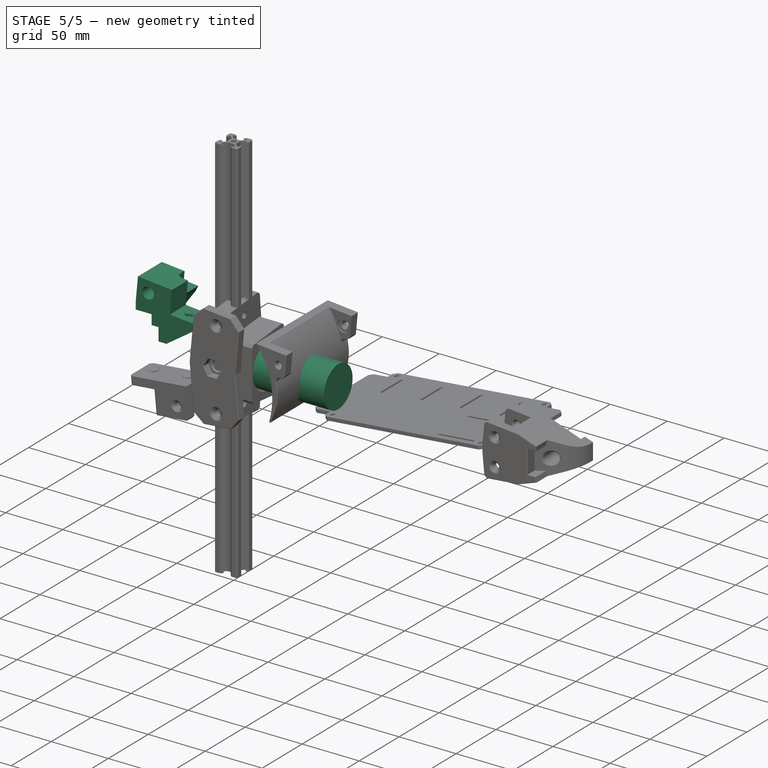
[diagram: stage 5 of 5 — iso view after this stage's code; geometry added in this stage tinted green]
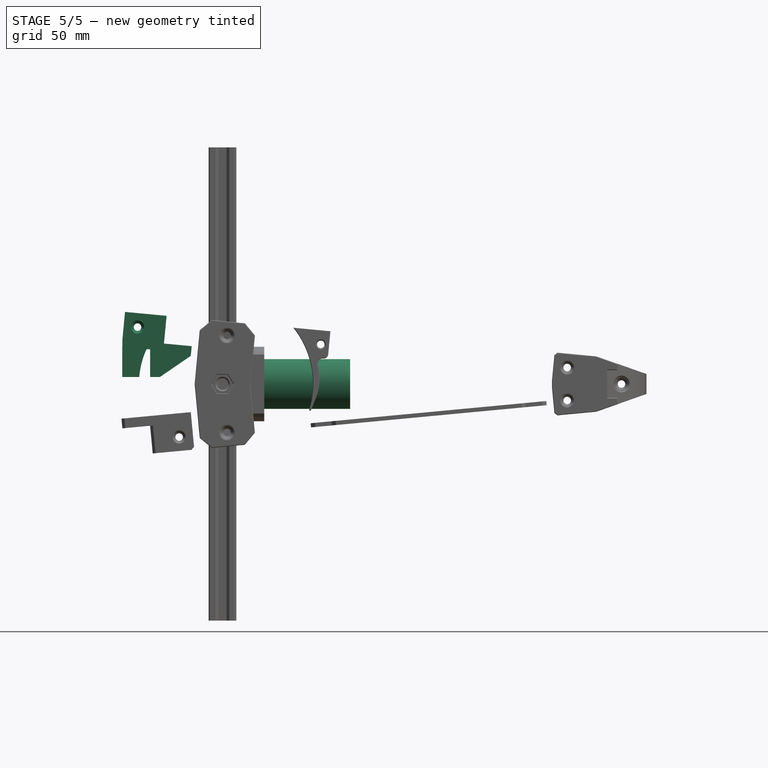
[diagram: stage 5 of 5 — front view after this stage's code; geometry added in this stage tinted green]
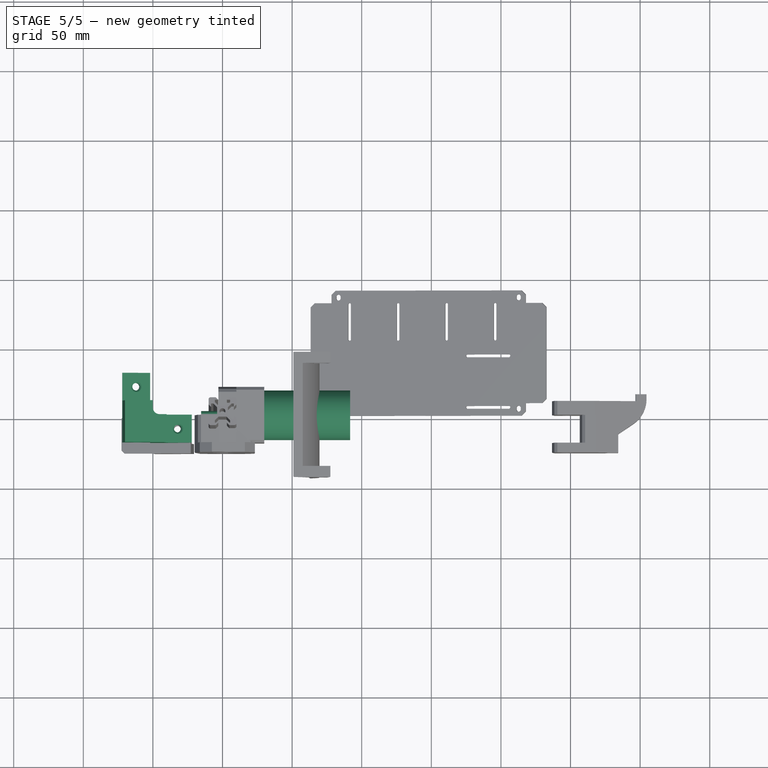
[diagram: stage 5 of 5 — top view after this stage's code; geometry added in this stage tinted green]
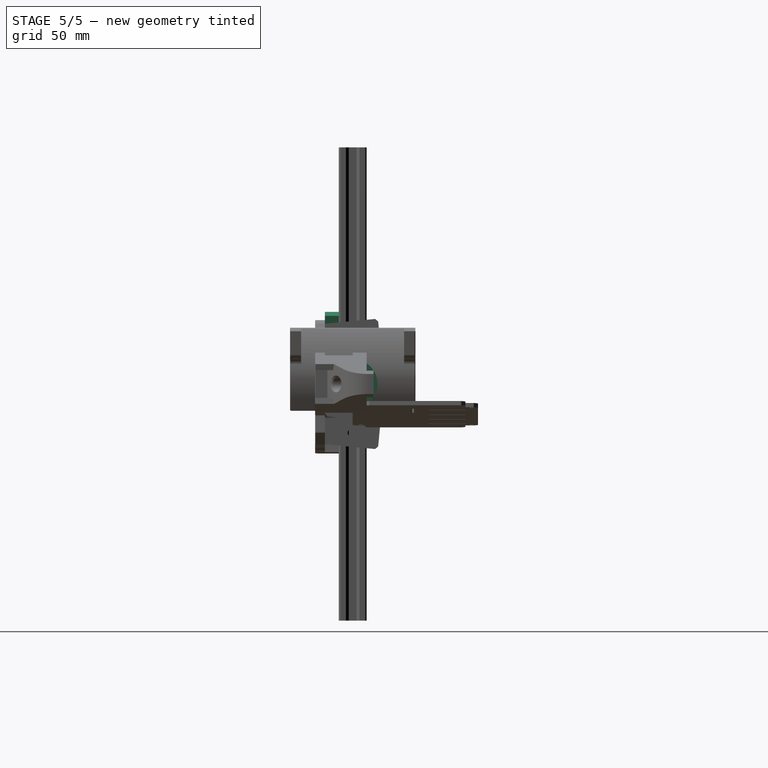
[diagram: stage 5 of 5 — right view after this stage's code; geometry added in this stage tinted green]
FEATURE [Sketcher::SketchObject] Sketch  label="Squelette"
  ArcFitTolerance = 1e-06
  ExternalTypes = [0]
  FullyConstrained = false
  MakeInternals = false
  Placement = pos=(0,0,0) rot=(1,0,0;1.5708rad)
  sketch-geometry (44):
    g0: Circle [constr] CenterX=0 CenterY=0 CenterZ=0 NormalX=0 NormalY=0 NormalZ=1 AngleXU=0 Radius=58
    g1: LineSegment StartX=-75 StartY=55.2647 StartZ=0 EndX=-75 EndY=-55.2647 EndZ=0
    g2: LineSegment StartX=-75 StartY=-55.2647 StartZ=0 EndX=511.946 EndY=0 EndZ=0
    g3: LineSegment StartX=-75 StartY=55.2647 StartZ=0 EndX=511.946 EndY=0 EndZ=0
    g4: Circle [constr] CenterX=0 CenterY=0 CenterZ=0 NormalX=0 NormalY=0 NormalZ=1 AngleXU=0 Radius=21.5
    g5: LineSegment StartX=34.5312 StartY=-41.9384 StartZ=0 EndX=263.518 EndY=-20.3778 EndZ=0
    g6: LineSegment StartX=34.5312 StartY=-41.9384 StartZ=0 EndX=30.7815 EndY=-2.11452 EndZ=0
    g7: LineSegment StartX=30.7815 StartY=-2.11452 StartZ=0 EndX=259.769 EndY=19.4461 EndZ=0
    g8: LineSegment StartX=263.518 StartY=-20.3778 StartZ=0 EndX=259.769 EndY=19.4461 EndZ=0
    g9: LineSegment [constr] StartX=263.518 StartY=-20.3778 StartZ=0 EndX=263.8 EndY=-23.3645 EndZ=0
    g10: LineSegment [constr] StartX=6.57101 StartY=57.6266 StartZ=0 EndX=-56.759 EndY=64.8479 EndZ=0
    g11: LineSegment [constr] StartX=6.57101 StartY=57.6266 StartZ=0 EndX=5.43808 EndY=47.691 EndZ=0
    g12: LineSegment StartX=260.612 StartY=10.4857 StartZ=0 EndX=235.723 EndY=8.14219 EndZ=0
    g13: LineSegment StartX=262.675 StartY=-11.4174 StartZ=0 EndX=237.785 EndY=-13.7609 EndZ=0
    g14: LineSegment StartX=237.785 StartY=-13.7609 StartZ=0 EndX=235.723 EndY=8.14219 EndZ=0
    g15: LineSegment [constr] StartX=32.6564 StartY=-22.0264 StartZ=0 EndX=261.644 EndY=-0.465821 EndZ=0
    g16: LineSegment [constr] StartX=6.57101 StartY=57.6266 StartZ=0 EndX=511.946 EndY=0 EndZ=0
    g17: LineSegment StartX=238.629 StartY=-22.7213 StartZ=0 EndX=234.879 EndY=17.1026 EndZ=0
    g18: LineSegment StartX=235.348 StartY=12.1246 StartZ=0 EndX=31.2502 EndY=-7.0925 EndZ=0
    g19: LineSegment StartX=238.16 StartY=-17.7433 StartZ=0 EndX=34.0625 EndY=-36.9604 EndZ=0
    g20: LineSegment StartX=-75 StartY=32.163 StartZ=0 EndX=266.591 EndY=0 EndZ=0
    g21: LineSegment StartX=266.591 StartY=0 StartZ=0 EndX=268.747 EndY=22.8987 EndZ=0
    g22: LineSegment StartX=-52 StartY=53.0991 StartZ=0 EndX=-52 EndY=-53.0991 EndZ=0
    g23: LineSegment StartX=-75 StartY=-32.163 StartZ=0 EndX=266.591 EndY=0 EndZ=0
    g24: GeomPoint [constr] X=-52 Y=29.9974 Z=0
    g25: GeomPoint [constr] X=-52 Y=-29.9974 Z=0
    g26: LineSegment StartX=268.747 StartY=22.8987 StartZ=0 EndX=380.223 EndY=-12.4025 EndZ=0
    g27: LineSegment StartX=-75 StartY=-25 StartZ=0 EndX=-52 EndY=-25 EndZ=0
    g28: LineSegment StartX=-52 StartY=-25 StartZ=0 EndX=-52 EndY=25 EndZ=0
    g29: LineSegment StartX=-52 StartY=25 StartZ=0 EndX=-75 EndY=25 EndZ=0
    g30: LineSegment StartX=-75 StartY=25 StartZ=0 EndX=-75 EndY=-25 EndZ=0
    g31: LineSegment StartX=-70.0371 StartY=51.7842 StartZ=0 EndX=-50.1252 EndY=49.9093 EndZ=0
    g32: LineSegment StartX=-50.1252 StartY=49.9093 StartZ=0 EndX=-52 EndY=29.9974 EndZ=0
    g33: LineSegment StartX=-52 StartY=29.9974 StartZ=0 EndX=-71.9119 EndY=31.8722 EndZ=0
    g34: LineSegment StartX=-71.9119 StartY=31.8722 StartZ=0 EndX=-70.0371 EndY=51.7842 EndZ=0
    g35: LineSegment StartX=-71.9119 StartY=-31.8722 StartZ=0 EndX=-52 EndY=-29.9974 EndZ=0
    g36: LineSegment StartX=-52 StartY=-29.9974 StartZ=0 EndX=-50.1252 EndY=-49.9093 EndZ=0
    g37: LineSegment StartX=-50.1252 StartY=-49.9093 StartZ=0 EndX=-70.0371 EndY=-51.7842 EndZ=0
    g38: LineSegment StartX=-70.0371 StartY=-51.7842 StartZ=0 EndX=-71.9119 EndY=-31.8722 EndZ=0
    g39: LineSegment StartX=276.591 StartY=-10 StartZ=0 EndX=276.591 EndY=10 EndZ=0
    g40: LineSegment StartX=276.591 StartY=10 StartZ=0 EndX=296.591 EndY=10 EndZ=0
    g41: LineSegment StartX=296.591 StartY=10 StartZ=0 EndX=296.591 EndY=-10 EndZ=0
    g42: LineSegment StartX=296.591 StartY=-10 StartZ=0 EndX=276.591 EndY=-10 EndZ=0
    g43: GeomPoint [constr] X=286.591 Y=0 Z=0
  constraints (123):
    c: Coincident(g0,g-1)
    c: Diameter(g0) = 116
    c: Coincident(g2,g1)
    c: PointOnObject(g2,g-1)
    c: Coincident(g3,g1)
    c: Coincident(g3,g2)
    c: Symmetric(g1,g1,g-1)
    c: Coincident(g4,g0)
    c: Diameter(g4) = 43
    c: Distance(g5) = 230
    c: Parallel(g2,g5)
    c: Coincident(g6,g5)
    c: Coincident(g8,g5)
    c: Coincident(g8,g7)
    c: Perpendicular(g5,g8)
    c: Perpendicular(g8,g7)
    c: Distance(g6) = 40
    c: Coincident(g6,g7)
    c: Perpendicular(g7,g6)
    c: Coincident(g9,g5)
    c: PointOnObject(g9,g2)
    c: Tangent(g9,g8)
    c: Distance(g9) = 3
    c: Tangent(g10,g0) = -1.5708
    c: Coincident(g11,g10)
    c: PointOnObject(g11,g3)
    c: Perpendicular(g10,g11)
    c: Distance(g11) = 10
    c: PointOnObject(g12,g8)
    c: PointOnObject(g13,g8)
    c: Coincident(g14,g13)
    c: Coincident(g14,g12)
    c: Perpendicular(g14,g12)
    c: Perpendicular(g14,g13)
    c: Perpendicular(g8,g12)
    c: PointOnObject(g15,g6)
    c: Symmetric(g5,g7,g15)
    c: Symmetric(g13,g12,g15)
    c: Distance(g12,g13) = 22
    c: Distance(g12) = 25
    c: Coincident(g16,g2)
    c: Tangent(g16,g10) = 1.5708
    c: PointOnObject(g17,g5)
    c: PointOnObject(g17,g7)
    c: PointOnObject(g12,g17)
    c: PointOnObject(g13,g17)
    c: PointOnObject(g18,g17)
    c: PointOnObject(g18,g6)
    c: PointOnObject(g19,g6)
    c: Parallel(g19,g5)
    c: Parallel(g18,g7)
    c: Symmetric(g18,g19,g15)
    c: Distance(g18,g19) = 30
    c: PointOnObject(g20,g1)
    c: PointOnObject(g20,g-1)
    c: Parallel(g20,g3)
    c: Coincident(g21,g20)
    c: PointOnObject(g21,g3)
    c: Perpendicular(g3,g21)
    c: Distance(g21) = 23
    c: PointOnObject(g22,g3)
    c: PointOnObject(g22,g2)
    c: Vertical(g22)
    c: DistanceX(g1,g22) = 23
    c: DistanceX(g21,g2) = 243.199
    c: PointOnObject(g23,g1)
    c: Coincident(g23,g20)
    c: Parallel(g23,g2)
    c: DistanceX(g1,g0) = 75
    c: PointOnObject(g24,g22)
    c: PointOnObject(g24,g20)
    c: PointOnObject(g25,g22)
    c: PointOnObject(g25,g23)
    c: DistanceY(g25,g24) = 59.9948
    c: Coincident(g26,g21)
    c: PointOnObject(g26,g2)
    c: Distance(g20,g24) = 320
    c: Coincident(g27,g28)
    c: Coincident(g28,g29)
    c: Coincident(g29,g30)
    c: Coincident(g30,g27)
    c: Horizontal(g27)
    c: Horizontal(g29)
    c: Vertical(g30)
    c: PointOnObject(g27,g1)
    c: PointOnObject(g28,g22)
    c: DistanceY(g27,g29) = 50
    c: Symmetric(g27,g28,g-1)
    c: Coincident(g31,g32)
    c: Coincident(g32,g33)
    c: Coincident(g33,g34)
    c: Coincident(g34,g31)
    c: Parallel(g31,g33)
    c: Parallel(g32,g34)
    c: Perpendicular(g32,g31)
    c: Equal(g31,g32)
    c: Distance(g31) = 20
    c: Coincident(g32,g24)
    c: Parallel(g31,g3)
    c: Coincident(g35,g36)
    c: Coincident(g36,g37)
    c: Coincident(g37,g38)
    c: Coincident(g38,g35)
    c: Parallel(g35,g37)
    c: Parallel(g36,g38)
    c: Perpendicular(g36,g35)
    c: Equal(g36,g35)
    c: Distance(g38) = 20
    c: Coincident(g35,g25)
    c: PointOnObject(g35,g23)
    c: Coincident(g39,g40)
    c: Coincident(g40,g41)
    c: Coincident(g41,g42)
    c: Coincident(g42,g39)
    c: Horizontal(g40)
    c: Horizontal(g42)
    c: Vertical(g39)
    c: Vertical(g41)
    c: Symmetric(g40,g39,g43)
    c: PointOnObject(g43,g-1)
    c: Equal(g40,g41)
    c: DistanceY(g41,g41) = 20
    c: DistanceX(g20,g43) = 20
FEATURE [Sketcher::SketchObject] Sketch003
  ArcFitTolerance = 1e-06
  AttachmentSupport = -> [YZ_Plane002]
  ExternalTypes = [0]
  FullyConstrained = true
  MakeInternals = false
  MapMode = 5
  Placement = pos=(0,0,0) rot=(0.57735,0.57735,0.57735;2.0944rad)
  sketch-geometry (1):
    g0: Circle CenterX=0 CenterY=0 CenterZ=0 NormalX=0 NormalY=0 NormalZ=1 AngleXU=0 Radius=17.85
  constraints (2):
    c: Coincident(g0,g-1)
    c: Diameter(g0) = 35.7
FEATURE [PartDesign::Pad] Pad002
  AlongSketchNormal = false
  Direction = (1,0,0)
  Length = 91.7
  Length2 = 10
  Placement = pos=(0,0,0) rot=(1,1,1;2.0944rad)
  Profile = -> Sketch003
  ReferenceAxis = -> Sketch003 [N_Axis]
  Refine = true
  SideType = 0
  Suppressed = false
  Type = 0
  Type2 = 0
FEATURE [Sketcher::SketchObject] Sketch004
  ArcFitTolerance = 1e-06
  AttachmentSupport = -> [YZ_Plane002]
  ExternalTypes = [0]
  FullyConstrained = true
  MakeInternals = false
  MapMode = 5
  Placement = pos=(0,0,0) rot=(0.57735,0.57735,0.57735;2.0944rad)
  sketch-geometry (1):
    g0: Circle CenterX=0 CenterY=0 CenterZ=0 NormalX=0 NormalY=0 NormalZ=1 AngleXU=0 Radius=11
  constraints (2):
    c: Coincident(g0,g-1)
    c: Diameter(g0) = 22
FEATURE [PartDesign::Pad] Pad003
  AlongSketchNormal = false
  BaseFeature = -> Pad002
  Direction = (1,0,0)
  Length = 2
  Length2 = 10
  Placement = pos=(0,0,0) rot=(1,1,1;2.0944rad)
  Profile = -> Sketch004
  ReferenceAxis = -> Sketch004 [N_Axis]
  Refine = true
  Reversed = true
  SideType = 0
  Suppressed = false
  Type = 0
  Type2 = 0
FEATURE [Sketcher::SketchObject] Sketch005
  ArcFitTolerance = 1e-06
  AttachmentSupport = -> [Pad003]
  ExternalTypes = [0]
  FullyConstrained = true
  MakeInternals = false
  MapMode = 5
  Placement = pos=(-2,0,0) rot=(0.57735,0.57735,-0.57735;4.18879rad)
  sketch-geometry (1):
    g0: Circle CenterX=0 CenterY=0 CenterZ=0 NormalX=0 NormalY=0 NormalZ=1 AngleXU=0 Radius=3
  constraints (2):
    c: Coincident(g0,g-1)
    c: Diameter(g0) = 6
FEATURE [PartDesign::Pad] Pad004
  AlongSketchNormal = false
  BaseFeature = -> Pad003
  Direction = (-1,0,0)
  Length = 13.4
  Length2 = 10
  Placement = pos=(0,0,0) rot=(1,1,1;2.0944rad)
  Profile = -> Sketch005
  ReferenceAxis = -> Sketch005 [N_Axis]
  Refine = true
  SideType = 0
  Suppressed = false
  Type = 0
  Type2 = 0
FEATURE [Sketcher::SketchObject] Sketch006
  ArcFitTolerance = 1e-06
  AttachmentSupport = -> [YZ_Plane002]
  ExternalTypes = [0]
  FullyConstrained = true
  MakeInternals = false
  MapMode = 5
  Placement = pos=(0,0,0) rot=(0.57735,0.57735,0.57735;2.0944rad)
  sketch-geometry (1):
    g0: Circle CenterX=0 CenterY=14 CenterZ=0 NormalX=0 NormalY=0 NormalZ=1 AngleXU=0 Radius=1.5
  constraints (3):
    c: PointOnObject(g0,g-2)
    c: Diameter(g0) = 3
    c: DistanceY(g-1,g0) = 14
FEATURE [PartDesign::Pocket] Pocket
  AlongSketchNormal = false
  BaseFeature = -> Pad004
  Direction = (-1,0,0)
  Length = 10
  Length2 = 10
  Placement = pos=(0,0,0) rot=(1,1,1;2.0944rad)
  Profile = -> Sketch006
  ReferenceAxis = -> Sketch006 [N_Axis]
  Refine = true
  Reversed = true
  SideType = 0
  Suppressed = false
  Type = 0
  Type2 = 0
FEATURE [PartDesign::PolarPattern] PolarPattern
  Angle = 360
  Axis = -> Sketch006 [N_Axis]
  BaseFeature = -> Pocket
  Mode = 0
  Occurrences = 4
  Offset = 120
  Originals = -> [Pocket]
  Placement = pos=(0,0,0) rot=(1,1,1;2.0944rad)
  Refine = true
  SpacingPattern = [0]
  Spacings = [-1,-1,-1]
  Suppressed = false
  TransformMode = 0
FEATURE [PartDesign::Body] Body002  label="Moteur"
  AllowCompound = true
  Group = -> [Sketch003,Pad002,Sketch004,Pad003,Sketch005,Pad004,Sketch006,Pocket,PolarPattern]
  Origin = -> Origin003
  Tip = -> PolarPattern
FEATURE [PartDesign::SubShapeBinder] Binder008  label="Binder008(Squelette)"
  BindCopyOnChange = 0
  BindMode = 0
  ClaimChildren = false
  Context = -> Part004 [Body017.Binder008.]
  Fuse = false
  MakeFace = true
  OffsetFill = false
  OffsetIntersection = false
  OffsetJoinType = 0
  OffsetOpenResult = false
  PartialLoad = false
  Relative = true
  Support = -> [Sketch]
  _Version = 8
FEATURE [Sketcher::SketchObject] Sketch032
  ArcFitTolerance = 1e-06
  AttachmentSupport = -> [XZ_Plane021]
  ExternalGeometry = -> [Binder008]
  ExternalTypes = [0]
  FullyConstrained = true
  MakeInternals = false
  MapMode = 5
  Placement = pos=(0,0,0) rot=(1,0,0;1.5708rad)
  sketch-geometry (11):
    g0: LineSegment StartX=-71.9119 StartY=31.8722 StartZ=0 EndX=-70.0371 EndY=51.7842 EndZ=0
    g1: LineSegment StartX=-70.0371 StartY=51.7842 StartZ=0 EndX=-40.1692 EndY=48.9719 EndZ=0
    g2: LineSegment StartX=-40.1692 StartY=48.9719 StartZ=0 EndX=-42.044 EndY=29.06 EndZ=0
    g3: LineSegment StartX=-42.044 StartY=29.06 StartZ=0 EndX=-22.1321 EndY=27.1851 EndZ=0
    g4: LineSegment StartX=-22.1321 StartY=27.1851 StartZ=0 EndX=-22.7883 EndY=20.216 EndZ=0
    g5: LineSegment StartX=-22.7883 StartY=20.216 StartZ=0 EndX=-45 EndY=5 EndZ=0
    g6: LineSegment StartX=-45 StartY=5 StartZ=0 EndX=-52 EndY=5 EndZ=0
    g7: LineSegment StartX=-52 StartY=5 StartZ=0 EndX=-52 EndY=25 EndZ=0
    g8: GeomPoint [constr] X=-52 Y=29.9974 Z=0
    g9: LineSegment StartX=-52 StartY=25 StartZ=0 EndX=-72 EndY=25 EndZ=0
    g10: LineSegment StartX=-72 StartY=25 StartZ=0 EndX=-71.9119 EndY=31.8722 EndZ=0
  constraints (31):
    c: Coincident(g0,g1)
    c: Coincident(g1,g2)
    c: PointOnObject(g2,g-3)
    c: Coincident(g2,g3)
    c: PointOnObject(g3,g-3)
    c: Coincident(g3,g4)
    c: Coincident(g4,g5)
    c: Coincident(g5,g6)
    c: PointOnObject(g6,g-4)
    c: Coincident(g6,g7)
    c: Horizontal(g6)
    c: Perpendicular(g3,g4)
    c: Equal(g4,g6)
    c: Equal(g3,g7)
    c: Perpendicular(g2,g3)
    c: PointOnObject(g8,g-3)
    c: PointOnObject(g8,g-4)
    c: Distance(g8,g2) = 10
    c: Distance(g6) = 7
    c: DistanceY(g7,g7) = 20
    c: Perpendicular(g0,g-3)
    c: Coincident(g9,g7)
    c: PointOnObject(g9,g-5)
    c: Coincident(g10,g9)
    c: Coincident(g10,g0)
    c: DistanceX(g9,g9) = 20
    c: Coincident(g7,g-5)
    c: PointOnObject(g0,g-3)
    c: Perpendicular(g0,g1)
    c: Distance(g0) = 20
    c: Distance(g0,g8) = 20
FEATURE [PartDesign::Pad] Pad023
  AlongSketchNormal = false
  Direction = (0,-1,2e-16)
  Length = 20
  Length2 = 10
  Placement = pos=(0,0,0) rot=(1,0,0;1.5708rad)
  Profile = -> Sketch032
  ReferenceAxis = -> Sketch032 [N_Axis]
  Refine = true
  SideType = 0
  Suppressed = false
  Type = 0
  Type2 = 0
FEATURE [Sketcher::SketchObject] Sketch033
  ArcFitTolerance = 1e-06
  AttachmentOffset = pos=(0,0,0) rot=(0,0,1;3.14159rad)
  AttachmentSupport = -> [Pad023]
  ExternalGeometry = -> [Binder008,Pad023]
  ExternalTypes = [0]
  FullyConstrained = true
  MakeInternals = false
  MapMode = 5
  Placement = pos=(0,6.5e-15,0) rot=(0,0.707107,0.707107;3.14159rad)
  sketch-geometry (5):
    g0: LineSegment StartX=70.0371 StartY=51.7842 StartZ=0 EndX=50.1252 EndY=49.9093 EndZ=0
    g1: LineSegment StartX=50.1252 StartY=49.9093 StartZ=0 EndX=52 EndY=29.9974 EndZ=0
    g2: LineSegment StartX=52 StartY=29.9974 StartZ=0 EndX=52 EndY=5 EndZ=0
    g3: LineSegment StartX=52 StartY=5 StartZ=0 EndX=72 EndY=5 EndZ=0
    g4: LineSegment StartX=72 StartY=5 StartZ=0 EndX=72 EndY=25 EndZ=0
  constraints (13):
    c: Coincident(g0,g-7)
    c: PointOnObject(g0,g-7)
    c: Coincident(g1,g0)
    c: PointOnObject(g1,g-4)
    c: Coincident(g2,g1)
    c: Coincident(g2,g-8)
    c: PointOnObject(g1,g-3)
    c: Perpendicular(g0,g1)
    c: Coincident(g3,g2)
    c: Horizontal(g3)
    c: Coincident(g4,g3)
    c: Coincident(g4,g-5)
    c: Vertical(g4)
FEATURE [PartDesign::Pad] Pad024
  AlongSketchNormal = false
  BaseFeature = -> Pad023
  Direction = (0,1,2e-16)
  Length = 10
  Length2 = 10
  Placement = pos=(0,0,0) rot=(1,0,0;1.5708rad)
  Profile = -> Sketch033
  ReferenceAxis = -> Sketch033 [N_Axis]
  Refine = true
  SideType = 0
  Suppressed = false
  Type = 0
  Type2 = 0
FEATURE [Sketcher::SketchObject] Sketch034
  ArcFitTolerance = 1e-06
  AttachmentOffset = pos=(0,0,0) rot=(0,0,1;3.14159rad)
  AttachmentSupport = -> [Pad024]
  ExternalTypes = [0]
  FullyConstrained = true
  MakeInternals = false
  MapMode = 5
  Placement = pos=(0,10,0) rot=(0,0.707107,0.707107;3.14159rad)
  sketch-geometry (1):
    g0: LineSegment StartX=52 StartY=29.9974 StartZ=0 EndX=71.9119 EndY=31.8722 EndZ=0
  constraints (2):
    c: Coincident(g0,g-4)
    c: Coincident(g0,g-3)
FEATURE [PartDesign::Pad] Pad025
  AlongSketchNormal = false
  BaseFeature = -> Pad024
  Direction = (0,1,2e-16)
  Length = 20
  Length2 = 10
  Placement = pos=(0,0,0) rot=(1,0,0;1.5708rad)
  Profile = -> Sketch034
  ReferenceAxis = -> Sketch034 [N_Axis]
  Refine = true
  SideType = 0
  Suppressed = false
  Type = 0
  Type2 = 0
FEATURE [PartDesign::Fillet] Fillet006
  Base = -> Chamfer011 [Edge31,Edge37]
  BaseFeature = -> Chamfer011
  Placement = pos=(0,0,0) rot=(1,0,0;1.5708rad)
  Radius = 45
  Refine = true
  SupportTransform = false
  Suppressed = false
  UseAllEdges = false
FEATURE [PartDesign::Body] Body031  label="2020-340mm"
  AllowCompound = true
  Group = -> [Sketch109,Pad048,Sketch110,Pocket057,PolarPattern010,Fillet024]
  Origin = -> Origin078
  Placement = pos=(403,0,0) rot=(0,0,1;0rad)
  Tip = -> Fillet024
FEATURE [App::Part] Part004  label="ChassisLateral"
  Group = -> [Body017,Body018,Body022]
  Origin = -> Origin014
FEATURE [PartDesign::Body] Body017  label="CoinLateral"
  AllowCompound = true
  Group = -> [Sketch032,Binder008,Pad023,Sketch033,Pad024,Sketch034,Pad025,Sketch035,Pocket008,Sketch036,Pocket009,Sketch037,Pocket010,Sketch038,Pocket011,Sketch039,Pocket012,Sketch040,Pocket013,Sketch041,Pocket014,Sketch042,Pocket015,Sketch043,Pocket016,Sketch044,Pocket017,Fillet003,Chamfer006,Chamfer007]
  Origin = -> Origin025
  Tip = -> Chamfer007
FEATURE [Sketcher::SketchObject] Sketch035
  ArcFitTolerance = 1e-06
  AttachmentOffset = pos=(0,0,0) rot=(0,0,1;1.5708rad)
  AttachmentSupport = -> [Pocket008]
  ExternalTypes = [0]
  FullyConstrained = true
  MakeInternals = false
  MapMode = 5
  Placement = pos=(-72,0,0) rot=(0.57735,-0.57735,-0.57735;2.0944rad)
  sketch-geometry (3):
    g0: LineSegment StartX=-7 StartY=5 StartZ=0 EndX=-30 EndY=25 EndZ=0
    g1: LineSegment StartX=-30 StartY=5 StartZ=0 EndX=-30 EndY=25 EndZ=0
    g2: LineSegment StartX=-30 StartY=5 StartZ=0 EndX=-7 EndY=5 EndZ=0
  constraints (7):
    c: PointOnObject(g0,g-3)
    c: Coincident(g1,g-4)
    c: Coincident(g1,g0)
    c: Coincident(g2,g1)
    c: Coincident(g2,g0)
    c: DistanceX(g0,g-3) = 7
    c: Coincident(g-4,g0)
FEATURE [PartDesign::Pocket] Pocket008
  AlongSketchNormal = false
  BaseFeature = -> Pad025
  Direction = (1,0,2e-16)
  Length = 25
  Length2 = 10
  Placement = pos=(0,0,0) rot=(1,0,0;1.5708rad)
  Profile = -> Sketch035
  ReferenceAxis = -> Sketch035 [N_Axis]
  Refine = true
  SideType = 0
  Suppressed = false
  Type = 0
  Type2 = 0
FEATURE [Sketcher::SketchObject] Sketch036
  ArcFitTolerance = 1e-06
  AttachmentSupport = -> [Pocket008]
  ExternalTypes = [0]
  FullyConstrained = true
  MakeInternals = false
  MapMode = 5
  Placement = pos=(0,6.5e-15,0) rot=(-1,0,0;1.5708rad)
  sketch-geometry (1):
    g0: Circle CenterX=0 CenterY=0 CenterZ=0 NormalX=0 NormalY=0 NormalZ=1 AngleXU=0 Radius=60.032
  constraints (2):
    c: Coincident(g0,g-1)
    c: PointOnObject(g-3,g0)
FEATURE [PartDesign::Pocket] Pocket009
  AlongSketchNormal = false
  BaseFeature = -> Pocket008
  Direction = (0,-1,-2e-16)
  Length = 38
  Length2 = 10
  Placement = pos=(0,0,0) rot=(1,0,0;1.5708rad)
  Profile = -> Sketch036
  ReferenceAxis = -> Sketch036 [N_Axis]
  Refine = true
  Reversed = true
  SideType = 0
  Suppressed = false
  Type = 0
  Type2 = 0
FEATURE [Sketcher::SketchObject] Sketch037
  ArcFitTolerance = 1e-06
  AttachmentOffset = pos=(0,0,0) rot=(0,0,1;3.14159rad)
  AttachmentSupport = -> [Pocket009]
  ExternalTypes = [0]
  FullyConstrained = true
  MakeInternals = false
  MapMode = 5
  Placement = pos=(0,10,0) rot=(0,0.707107,0.707107;3.14159rad)
  sketch-geometry (1):
    g0: Circle CenterX=61.0185 CenterY=40.8908 CenterZ=0 NormalX=0 NormalY=0 NormalZ=1 AngleXU=0 Radius=2.7
  constraints (2):
    c: Symmetric(g-3,g-4,g0)
    c: Diameter(g0) = 5.4
FEATURE [PartDesign::Pocket] Pocket010
  AlongSketchNormal = false
  BaseFeature = -> Pocket009
  Direction = (0,-1,-2e-16)
  Length = 40
  Length2 = 10
  Placement = pos=(0,0,0) rot=(1,0,0;1.5708rad)
  Profile = -> Sketch037
  ReferenceAxis = -> Sketch037 [N_Axis]
  Refine = true
  SideType = 0
  Suppressed = false
  Type = 0
  Type2 = 0
FEATURE [Sketcher::SketchObject] Sketch038
  ArcFitTolerance = 1e-06
  AttachmentOffset = pos=(0,0,0) rot=(0,0,1;3.14159rad)
  AttachmentSupport = -> [Pocket010]
  ExternalTypes = [0]
  FullyConstrained = true
  MakeInternals = false
  MapMode = 5
  Placement = pos=(2.34268,0,24.8807) rot=(0,-1,0;6.18931rad)
  sketch-geometry (1):
    g0: Circle CenterX=-64.583 CenterY=20 CenterZ=0 NormalX=0 NormalY=0 NormalZ=1 AngleXU=0 Radius=2.7
  constraints (2):
    c: Symmetric(g-3,g-4,g0)
    c: Diameter(g0) = 5.4
FEATURE [PartDesign::Pocket] Pocket011
  AlongSketchNormal = false
  BaseFeature = -> Pocket010
  Direction = (-0.0937419,0,-0.995597)
  Length = 30
  Length2 = 10
  Placement = pos=(0,0,0) rot=(1,0,0;1.5708rad)
  Profile = -> Sketch038
  ReferenceAxis = -> Sketch038 [N_Axis]
  Refine = true
  SideType = 0
  Suppressed = false
  Type = 0
  Type2 = 0
FEATURE [Sketcher::SketchObject] Sketch039
  ArcFitTolerance = 1e-06
  AttachmentOffset = pos=(0,0,0) rot=(0,0,1;1.5708rad)
  AttachmentSupport = -> [Pocket011]
  ExternalTypes = [0]
  FullyConstrained = true
  MakeInternals = false
  MapMode = 5
  Placement = pos=(-52,0,0) rot=(0.57735,-0.57735,-0.57735;2.0944rad)
  sketch-geometry (1):
    g0: Circle CenterX=10 CenterY=15 CenterZ=0 NormalX=0 NormalY=0 NormalZ=1 AngleXU=0 Radius=2.7
  constraints (2):
    c: Symmetric(g-3,g-4,g0)
    c: Diameter(g0) = 5.4
FEATURE [PartDesign::Pocket] Pocket012
  AlongSketchNormal = false
  BaseFeature = -> Pocket011
  Direction = (1,0,2e-16)
  Length = 39
  Length2 = 10
  Placement = pos=(0,0,0) rot=(1,0,0;1.5708rad)
  Profile = -> Sketch039
  ReferenceAxis = -> Sketch039 [N_Axis]
  Refine = true
  SideType = 0
  Suppressed = false
  Type = 0
  Type2 = 0
FEATURE [Sketcher::SketchObject] Sketch040
  ArcFitTolerance = 1e-06
  AttachmentOffset = pos=(0,0,0) rot=(0,0,1;3.14159rad)
  AttachmentSupport = -> [Pocket012]
  ExternalTypes = [0]
  FullyConstrained = true
  MakeInternals = false
  MapMode = 5
  Placement = pos=(2.34268,1.1e-14,24.8807) rot=(0,-1,0;6.18931rad)
  sketch-geometry (1):
    g0: Circle CenterX=-34.583 CenterY=-10 CenterZ=0 NormalX=0 NormalY=0 NormalZ=1 AngleXU=0 Radius=2.7
  constraints (2):
    c: Symmetric(g-4,g-3,g0)
    c: Diameter(g0) = 5.4
FEATURE [PartDesign::Pocket] Pocket013
  AlongSketchNormal = false
  BaseFeature = -> Pocket012
  Direction = (-0.0937419,0,-0.995597)
  Length = 30
  Length2 = 10
  Placement = pos=(0,0,0) rot=(1,0,0;1.5708rad)
  Profile = -> Sketch040
  ReferenceAxis = -> Sketch040 [N_Axis]
  Refine = true
  SideType = 0
  Suppressed = false
  Type = 0
  Type2 = 0
FEATURE [Sketcher::SketchObject] Sketch041
  ArcFitTolerance = 1e-06
  AttachmentOffset = pos=(0,0,-7) rot=(0,0,1;3.14159rad)
  AttachmentSupport = -> [Pocket013]
  ExternalTypes = [0]
  FullyConstrained = true
  MakeInternals = false
  MapMode = 5
  Placement = pos=(1.68648,1.1e-14,17.9115) rot=(0,-1,0;6.18931rad)
  sketch-geometry (1):
    g0: Circle CenterX=-34.583 CenterY=-10 CenterZ=0 NormalX=0 NormalY=0 NormalZ=1 AngleXU=0 Radius=5
  constraints (2):
    c: Coincident(g0,g-3)
    c: Diameter(g0) = 10
FEATURE [PartDesign::Pocket] Pocket014
  AlongSketchNormal = false
  BaseFeature = -> Pocket013
  Direction = (-0.0937419,0,-0.995597)
  Length = 18
  Length2 = 10
  Placement = pos=(0,0,0) rot=(1,0,0;1.5708rad)
  Profile = -> Sketch041
  ReferenceAxis = -> Sketch041 [N_Axis]
  Refine = true
  SideType = 0
  Suppressed = false
  Type = 0
  Type2 = 0
FEATURE [Sketcher::SketchObject] Sketch042
  ArcFitTolerance = 1e-06
  AttachmentOffset = pos=(0,0,-7) rot=(0,0,1;1.5708rad)
  AttachmentSupport = -> [Pocket014]
  ExternalTypes = [0]
  FullyConstrained = true
  MakeInternals = false
  MapMode = 5
  Placement = pos=(-45,0,1.6e-15) rot=(0.57735,-0.57735,-0.57735;2.0944rad)
  sketch-geometry (1):
    g0: Circle CenterX=10 CenterY=15 CenterZ=0 NormalX=0 NormalY=0 NormalZ=1 AngleXU=0 Radius=5
  constraints (2):
    c: Coincident(g0,g-3)
    c: Diameter(g0) = 10
FEATURE [PartDesign::Pocket] Pocket015
  AlongSketchNormal = false
  BaseFeature = -> Pocket014
  Direction = (1,0,2e-16)
  Length = 29
  Length2 = 10
  Placement = pos=(0,0,0) rot=(1,0,0;1.5708rad)
  Profile = -> Sketch042
  ReferenceAxis = -> Sketch042 [N_Axis]
  Refine = true
  SideType = 0
  Suppressed = false
  Type = 0
  Type2 = 0
FEATURE [Sketcher::SketchObject] Sketch043
  ArcFitTolerance = 1e-06
  AttachmentOffset = pos=(0,0,-7) rot=(0,0,1;3.14159rad)
  AttachmentSupport = -> [Pocket015]
  ExternalTypes = [0]
  FullyConstrained = true
  MakeInternals = false
  MapMode = 5
  Placement = pos=(1.68648,0,17.9115) rot=(0,-1,0;6.18931rad)
  sketch-geometry (1):
    g0: Circle CenterX=-64.583 CenterY=20 CenterZ=0 NormalX=0 NormalY=0 NormalZ=1 AngleXU=0 Radius=5
  constraints (2):
    c: Coincident(g0,g-3)
    c: Diameter(g0) = 10
FEATURE [PartDesign::Pocket] Pocket016
  AlongSketchNormal = false
  BaseFeature = -> Pocket015
  Direction = (-0.0937419,0,-0.995597)
  Length = 20
  Length2 = 10
  Placement = pos=(0,0,0) rot=(1,0,0;1.5708rad)
  Profile = -> Sketch043
  ReferenceAxis = -> Sketch043 [N_Axis]
  Refine = true
  SideType = 0
  Suppressed = false
  Type = 0
  Type2 = 0
FEATURE [PartDesign::Fillet] Fillet003
  Base = -> Pocket017 [Edge55]
  BaseFeature = -> Pocket017
  Placement = pos=(0,0,0) rot=(1,0,0;1.5708rad)
  Radius = 5
  Refine = true
  SupportTransform = false
  Suppressed = false
  UseAllEdges = false
FEATURE [PartDesign::Chamfer] Chamfer006
  Angle = 45
  Base = -> Fillet003 [Edge53,Edge78,Edge71,Edge80,Edge60,Edge35,Edge43]
  BaseFeature = -> Fillet003
  ChamferType = 0
  FlipDirection = false
  Placement = pos=(0,0,0) rot=(1,0,0;1.5708rad)
  Refine = true
  Size = 1
  Size2 = 1
  SupportTransform = false
  Suppressed = false
  UseAllEdges = false
FEATURE [Sketcher::SketchObject] Sketch044
  ArcFitTolerance = 1e-06
  AttachmentOffset = pos=(0,0,-9) rot=(0,0,1;3.14159rad)
  AttachmentSupport = -> [Pocket016]
  ExternalTypes = [0]
  FullyConstrained = true
  MakeInternals = false
  MapMode = 5
  Placement = pos=(0,1,-2e-15) rot=(0,0.707107,0.707107;3.14159rad)
  sketch-geometry (1):
    g0: Circle CenterX=61.0185 CenterY=40.8908 CenterZ=0 NormalX=0 NormalY=0 NormalZ=1 AngleXU=0 Radius=5
  constraints (2):
    c: Coincident(g0,g-3)
    c: Diameter(g0) = 10
FEATURE [PartDesign::Pocket] Pocket017
  AlongSketchNormal = false
  BaseFeature = -> Pocket016
  Direction = (0,-1,-2e-16)
  Length = 32
  Length2 = 10
  Placement = pos=(0,0,0) rot=(1,0,0;1.5708rad)
  Profile = -> Sketch044
  ReferenceAxis = -> Sketch044 [N_Axis]
  Refine = true
  SideType = 0
  Suppressed = false
  Type = 0
  Type2 = 0
FEATURE [PartDesign::Chamfer] Chamfer007
  Angle = 45
  Base = -> Chamfer006 [Edge23]
  BaseFeature = -> Chamfer006
  ChamferType = 0
  FlipDirection = false
  Placement = pos=(0,0,0) rot=(1,0,0;1.5708rad)
  Refine = true
  Size = 2
  Size2 = 1
  SupportTransform = false
  Suppressed = false
  UseAllEdges = false
note: 1 file-system path scrubbed to <path> (originals preserved in the JSON sidecar)
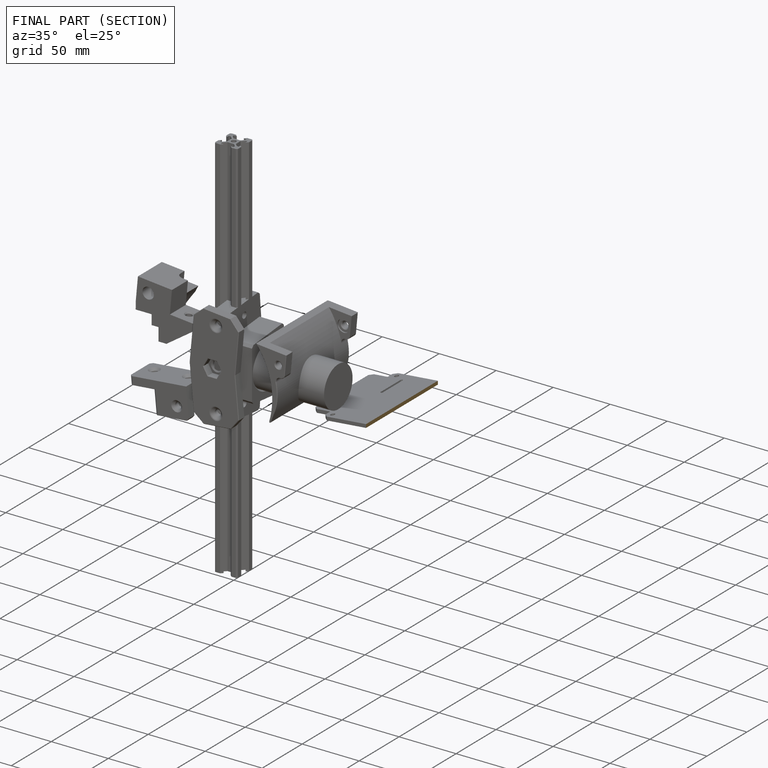
[diagram: finished part — half-section view (interior)]
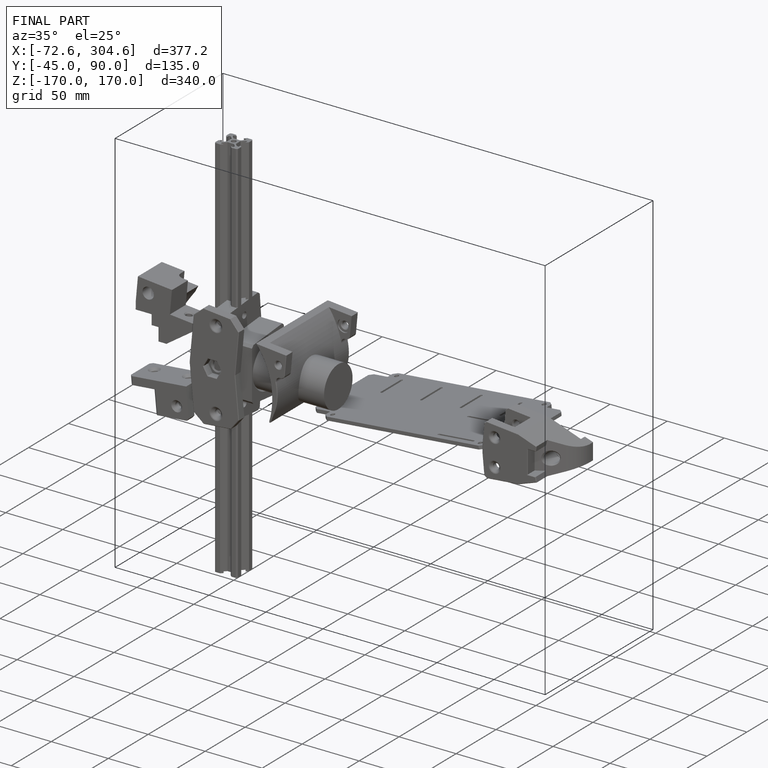
[diagram: finished part — iso view with bounding-box wireframe]
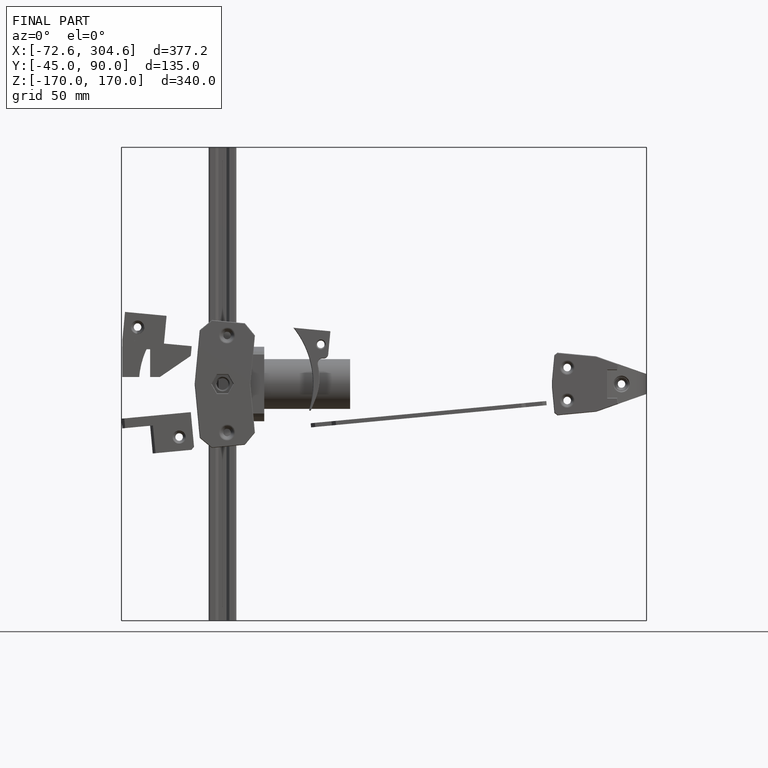
[diagram: finished part — front view with bounding-box wireframe]
